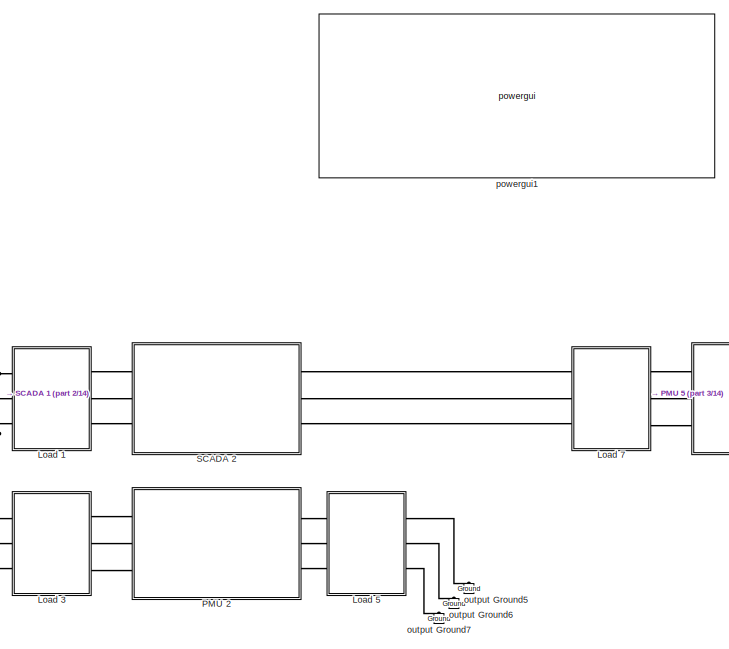
[diagram: root canvas - part 1/14, left side, full height]
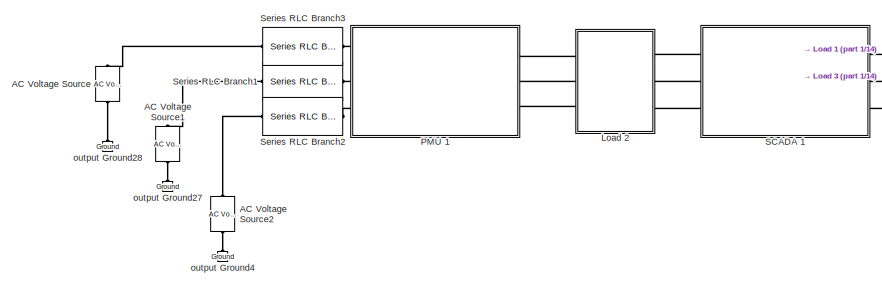
[diagram: root canvas - part 2/14, bottom left region]
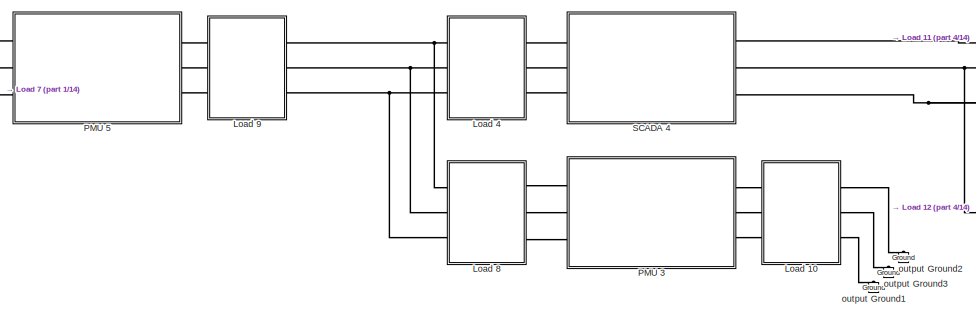
[diagram: root canvas - part 3/14, bottom left region]
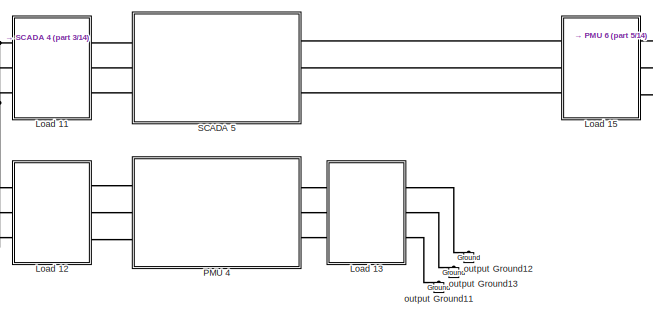
[diagram: root canvas - part 4/14, bottom left region]
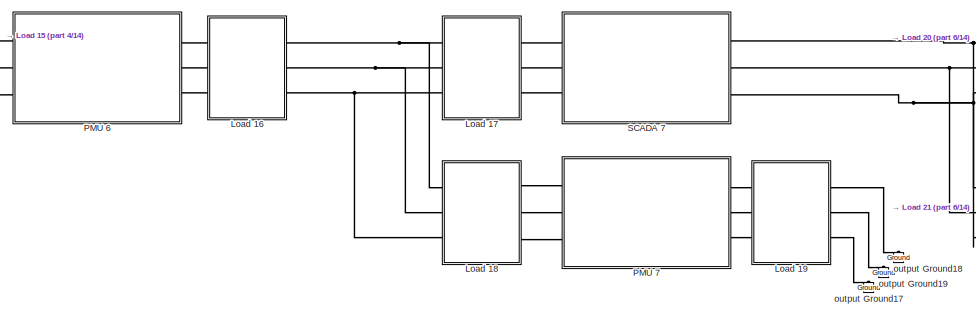
[diagram: root canvas - part 5/14, bottom left region]
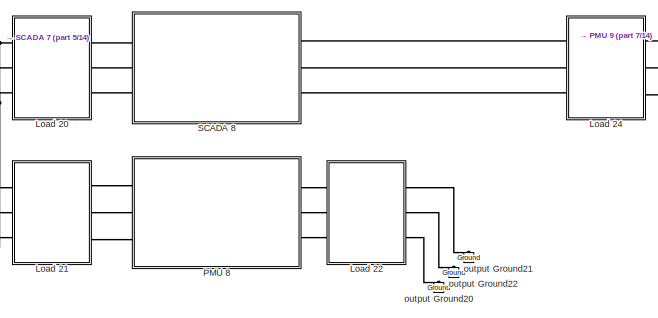
[diagram: root canvas - part 6/14, bottom center region]
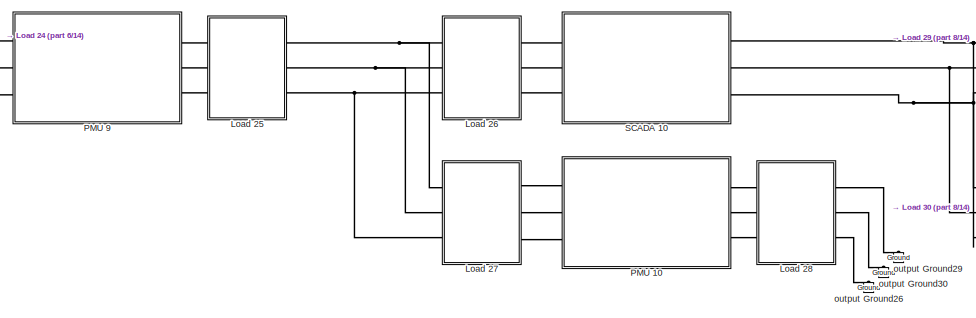
[diagram: root canvas - part 7/14, bottom center region]
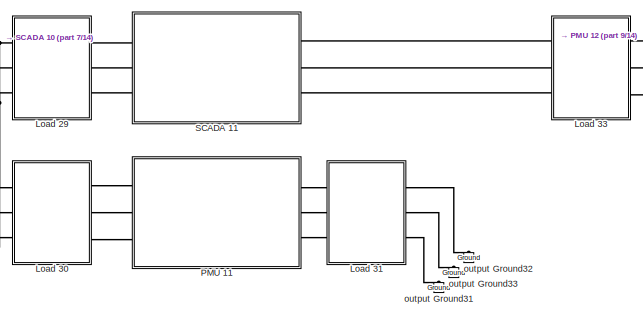
[diagram: root canvas - part 8/14, bottom center region]
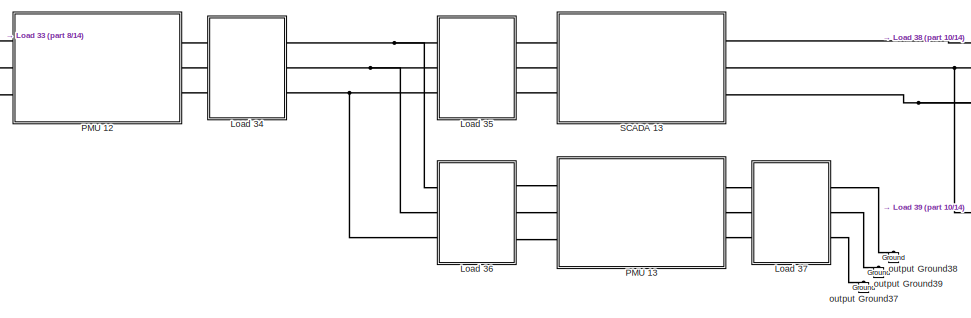
[diagram: root canvas - part 9/14, bottom center region]
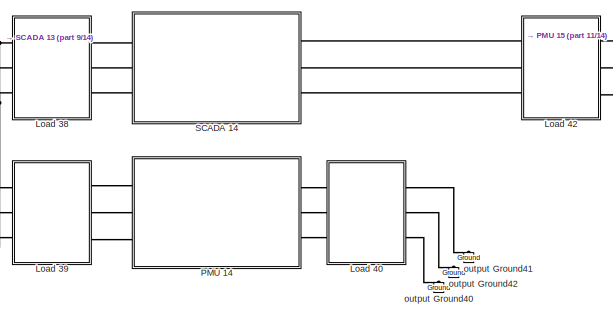
[diagram: root canvas - part 10/14, bottom center region]
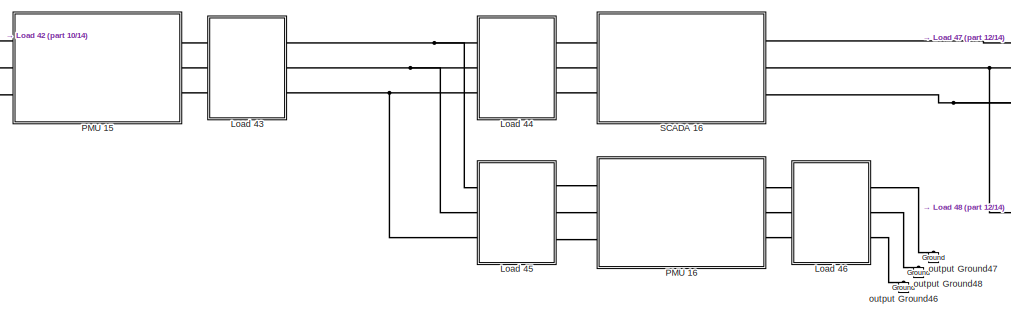
[diagram: root canvas - part 11/14, bottom right region]
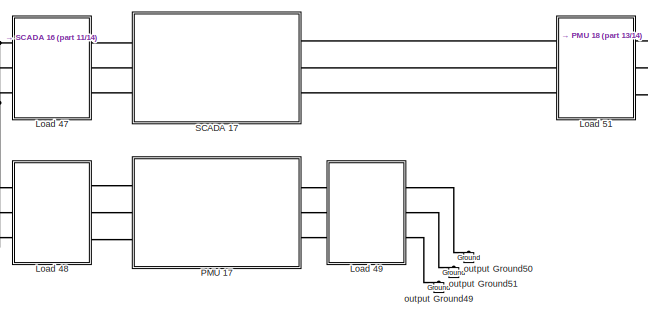
[diagram: root canvas - part 12/14, bottom right region]
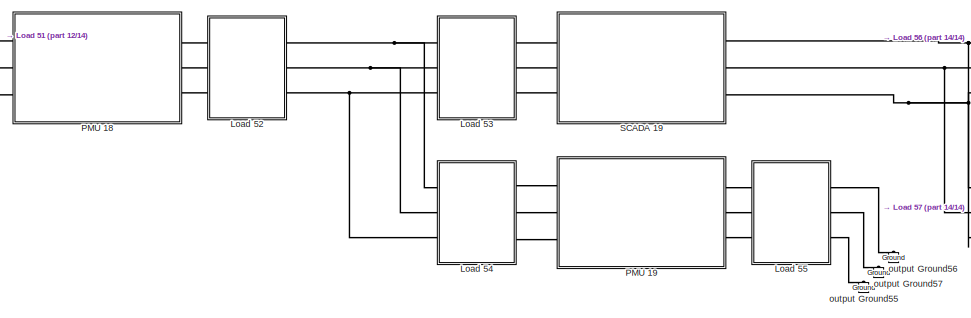
[diagram: root canvas - part 13/14, bottom right region]
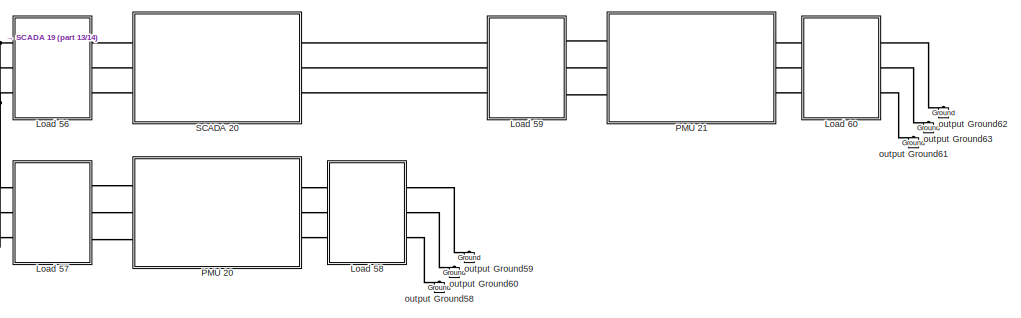
[diagram: root canvas - part 14/14, bottom right region]
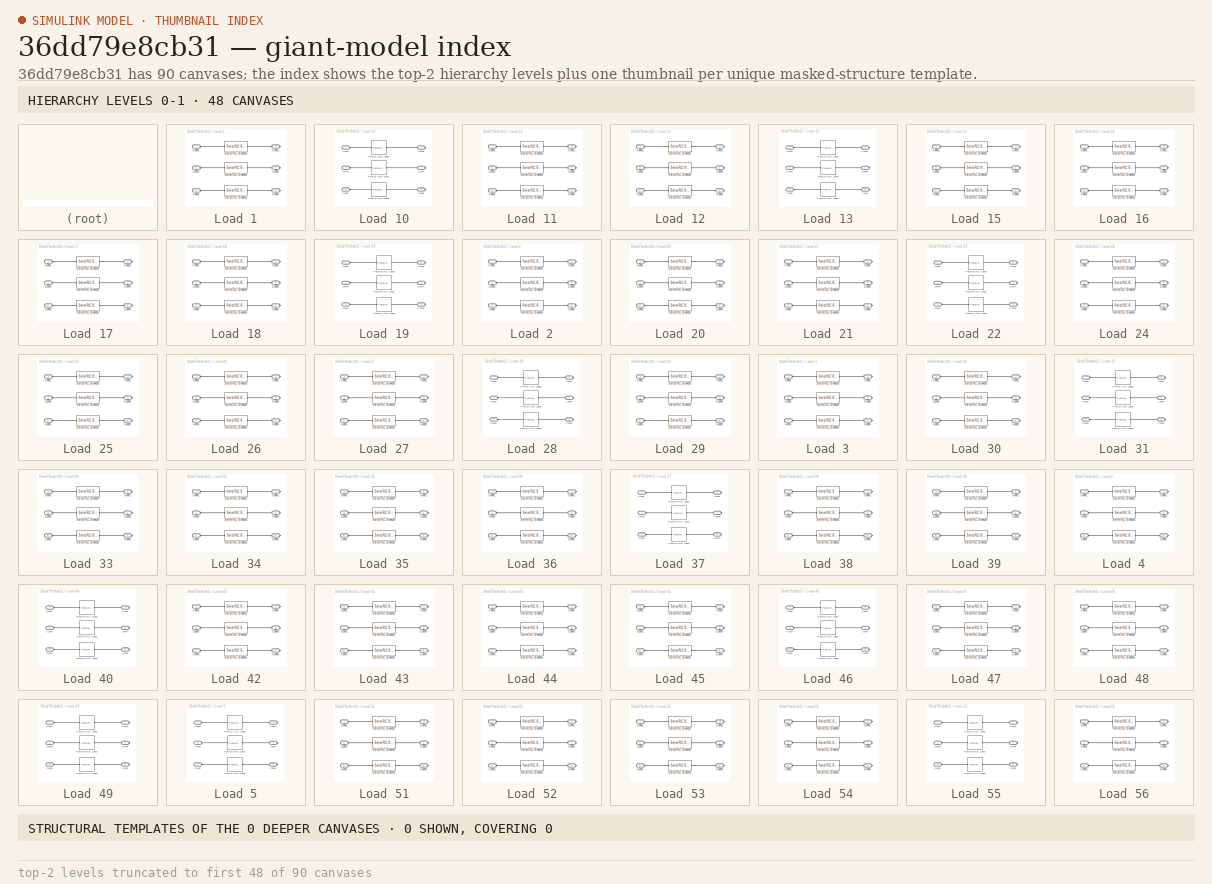
[diagram: thumbnail index - top-2 hierarchy levels (90 canvases (first 48 of 90 shown)) + 0 structural-template representatives of the remaining 0 canvases]
MODEL slx_36dd79e8cb31
KIND model
CONFIG AbsTol = auto
CONFIG EnableMultiTasking = off
CONFIG FixedStep = auto
CONFIG MaxStep = auto
CONFIG MinStep = auto
CONFIG RelTol = 1e-3
CONFIG SampleTimeConstraint = Unconstrained
CONFIG Solver = VariableStepAuto
CONFIG SolverName = VariableStepAuto
CONFIG StartTime = 0.0
CONFIG StopTime = sim_t
BLOCK [Reference] AC Voltage Source  REF=powerlib/Electrical
Sources/AC Voltage Source
  Ports = [0, 0, 0, 0, 0, 1, 1]
  SourceBlock = powerlib/Electrical\nSources/AC Voltage Source
  SourceProductBaseCode = PS
  SourceProductName = Simscape Power Systems
  SourceType = AC Voltage Source
BLOCK [Reference] AC Voltage Source1  REF=powerlib/Electrical
Sources/AC Voltage Source
  Ports = [0, 0, 0, 0, 0, 1, 1]
  SourceBlock = powerlib/Electrical\nSources/AC Voltage Source
  SourceProductBaseCode = PS
  SourceProductName = Simscape Power Systems
  SourceType = AC Voltage Source
BLOCK [Reference] AC Voltage Source2  REF=powerlib/Electrical
Sources/AC Voltage Source
  Ports = [0, 0, 0, 0, 0, 1, 1]
  SourceBlock = powerlib/Electrical\nSources/AC Voltage Source
  SourceProductBaseCode = PS
  SourceProductName = Simscape Power Systems
  SourceType = AC Voltage Source
BLOCK [SubSystem] Load 1
  Ports = [0, 0, 0, 0, 0, 3, 3]
  RequestExecContextInheritance = off
BLOCK [PMIOPort] Load 1/Conn1
  Side = Left
BLOCK [PMIOPort] Load 1/Conn2
  Port = 2
  Side = Right
BLOCK [PMIOPort] Load 1/Conn3
  Port = 3
  Side = Left
BLOCK [PMIOPort] Load 1/Conn4
  Port = 4
  Side = Right
BLOCK [PMIOPort] Load 1/Conn5
  Port = 5
  Side = Left
BLOCK [PMIOPort] Load 1/Conn6
  Port = 6
  Side = Right
BLOCK [Reference] Load 1/Series RLC Branch3  REF=powerlib/Elements/Series RLC Branch
  Ports = [0, 0, 0, 0, 0, 1, 1]
  SourceBlock = powerlib/Elements/Series RLC Branch
  SourceProductBaseCode = PS
  SourceProductName = Simscape Power Systems
  SourceType = Series RLC Branch
BLOCK [Reference] Load 1/Series RLC Branch4  REF=powerlib/Elements/Series RLC Branch
  Ports = [0, 0, 0, 0, 0, 1, 1]
  SourceBlock = powerlib/Elements/Series RLC Branch
  SourceProductBaseCode = PS
  SourceProductName = Simscape Power Systems
  SourceType = Series RLC Branch
BLOCK [Reference] Load 1/Series RLC Branch5  REF=powerlib/Elements/Series RLC Branch
  Ports = [0, 0, 0, 0, 0, 1, 1]
  SourceBlock = powerlib/Elements/Series RLC Branch
  SourceProductBaseCode = PS
  SourceProductName = Simscape Power Systems
  SourceType = Series RLC Branch
BLOCK [SubSystem] Load 10
  Ports = [0, 0, 0, 0, 0, 3, 3]
  RequestExecContextInheritance = off
BLOCK [PMIOPort] Load 10/Conn1
  Side = Left
BLOCK [PMIOPort] Load 10/Conn2
  Port = 2
  Side = Right
BLOCK [PMIOPort] Load 10/Conn3
  Port = 3
  Side = Left
BLOCK [PMIOPort] Load 10/Conn4
  Port = 4
  Side = Right
BLOCK [PMIOPort] Load 10/Conn5
  Port = 5
  Side = Left
BLOCK [PMIOPort] Load 10/Conn6
  Port = 6
  Side = Right
BLOCK [Reference] Load 10/Parallel RLC Load1  REF=powerlib/Elements/Parallel RLC Load
  AttributesFormatString = \n
  Ports = [0, 0, 0, 0, 0, 1, 1]
  SourceBlock = powerlib/Elements/Parallel RLC Load
  SourceProductBaseCode = PS
  SourceProductName = Simscape Power Systems
  SourceType = Parallel RLC Load
BLOCK [Reference] Load 10/Parallel RLC Load2  REF=powerlib/Elements/Parallel RLC Load
  AttributesFormatString = \n
  Ports = [0, 0, 0, 0, 0, 1, 1]
  SourceBlock = powerlib/Elements/Parallel RLC Load
  SourceProductBaseCode = PS
  SourceProductName = Simscape Power Systems
  SourceType = Parallel RLC Load
BLOCK [Reference] Load 10/Parallel RLC Load3  REF=powerlib/Elements/Parallel RLC Load
  AttributesFormatString = \n
  Ports = [0, 0, 0, 0, 0, 1, 1]
  SourceBlock = powerlib/Elements/Parallel RLC Load
  SourceProductBaseCode = PS
  SourceProductName = Simscape Power Systems
  SourceType = Parallel RLC Load
BLOCK [SubSystem] Load 11
  Ports = [0, 0, 0, 0, 0, 3, 3]
  RequestExecContextInheritance = off
BLOCK [PMIOPort] Load 11/Conn1
  Side = Left
BLOCK [PMIOPort] Load 11/Conn2
  Port = 2
  Side = Right
BLOCK [PMIOPort] Load 11/Conn3
  Port = 3
  Side = Left
BLOCK [PMIOPort] Load 11/Conn4
  Port = 4
  Side = Right
BLOCK [PMIOPort] Load 11/Conn5
  Port = 5
  Side = Left
BLOCK [PMIOPort] Load 11/Conn6
  Port = 6
  Side = Right
BLOCK [Reference] Load 11/Series RLC Branch3  REF=powerlib/Elements/Series RLC Branch
  Ports = [0, 0, 0, 0, 0, 1, 1]
  SourceBlock = powerlib/Elements/Series RLC Branch
  SourceProductBaseCode = PS
  SourceProductName = Simscape Power Systems
  SourceType = Series RLC Branch
BLOCK [Reference] Load 11/Series RLC Branch4  REF=powerlib/Elements/Series RLC Branch
  Ports = [0, 0, 0, 0, 0, 1, 1]
  SourceBlock = powerlib/Elements/Series RLC Branch
  SourceProductBaseCode = PS
  SourceProductName = Simscape Power Systems
  SourceType = Series RLC Branch
BLOCK [Reference] Load 11/Series RLC Branch5  REF=powerlib/Elements/Series RLC Branch
  Ports = [0, 0, 0, 0, 0, 1, 1]
  SourceBlock = powerlib/Elements/Series RLC Branch
  SourceProductBaseCode = PS
  SourceProductName = Simscape Power Systems
  SourceType = Series RLC Branch
BLOCK [SubSystem] Load 12
  Ports = [0, 0, 0, 0, 0, 3, 3]
  RequestExecContextInheritance = off
BLOCK [PMIOPort] Load 12/Conn1
  Side = Left
BLOCK [PMIOPort] Load 12/Conn2
  Port = 2
  Side = Right
BLOCK [PMIOPort] Load 12/Conn3
  Port = 3
  Side = Left
BLOCK [PMIOPort] Load 12/Conn4
  Port = 4
  Side = Right
BLOCK [PMIOPort] Load 12/Conn5
  Port = 5
  Side = Left
BLOCK [PMIOPort] Load 12/Conn6
  Port = 6
  Side = Right
BLOCK [Reference] Load 12/Series RLC Branch3  REF=powerlib/Elements/Series RLC Branch
  Ports = [0, 0, 0, 0, 0, 1, 1]
  SourceBlock = powerlib/Elements/Series RLC Branch
  SourceProductBaseCode = PS
  SourceProductName = Simscape Power Systems
  SourceType = Series RLC Branch
BLOCK [Reference] Load 12/Series RLC Branch4  REF=powerlib/Elements/Series RLC Branch
  Ports = [0, 0, 0, 0, 0, 1, 1]
  SourceBlock = powerlib/Elements/Series RLC Branch
  SourceProductBaseCode = PS
  SourceProductName = Simscape Power Systems
  SourceType = Series RLC Branch
BLOCK [Reference] Load 12/Series RLC Branch5  REF=powerlib/Elements/Series RLC Branch
  Ports = [0, 0, 0, 0, 0, 1, 1]
  SourceBlock = powerlib/Elements/Series RLC Branch
  SourceProductBaseCode = PS
  SourceProductName = Simscape Power Systems
  SourceType = Series RLC Branch
BLOCK [SubSystem] Load 13
  Ports = [0, 0, 0, 0, 0, 3, 3]
  RequestExecContextInheritance = off
BLOCK [PMIOPort] Load 13/Conn1
  Side = Left
BLOCK [PMIOPort] Load 13/Conn2
  Port = 2
  Side = Right
BLOCK [PMIOPort] Load 13/Conn3
  Port = 3
  Side = Left
BLOCK [PMIOPort] Load 13/Conn4
  Port = 4
  Side = Right
BLOCK [PMIOPort] Load 13/Conn5
  Port = 5
  Side = Left
BLOCK [PMIOPort] Load 13/Conn6
  Port = 6
  Side = Right
BLOCK [Reference] Load 13/Parallel RLC Load1  REF=powerlib/Elements/Parallel RLC Load
  AttributesFormatString = \n
  Ports = [0, 0, 0, 0, 0, 1, 1]
  SourceBlock = powerlib/Elements/Parallel RLC Load
  SourceProductBaseCode = PS
  SourceProductName = Simscape Power Systems
  SourceType = Parallel RLC Load
BLOCK [Reference] Load 13/Parallel RLC Load2  REF=powerlib/Elements/Parallel RLC Load
  AttributesFormatString = \n
  Ports = [0, 0, 0, 0, 0, 1, 1]
  SourceBlock = powerlib/Elements/Parallel RLC Load
  SourceProductBaseCode = PS
  SourceProductName = Simscape Power Systems
  SourceType = Parallel RLC Load
BLOCK [Reference] Load 13/Parallel RLC Load3  REF=powerlib/Elements/Parallel RLC Load
  AttributesFormatString = \n
  Ports = [0, 0, 0, 0, 0, 1, 1]
  SourceBlock = powerlib/Elements/Parallel RLC Load
  SourceProductBaseCode = PS
  SourceProductName = Simscape Power Systems
  SourceType = Parallel RLC Load
BLOCK [SubSystem] Load 15
  Ports = [0, 0, 0, 0, 0, 3, 3]
  RequestExecContextInheritance = off
BLOCK [PMIOPort] Load 15/Conn1
  Side = Left
BLOCK [PMIOPort] Load 15/Conn2
  Port = 2
  Side = Right
BLOCK [PMIOPort] Load 15/Conn3
  Port = 3
  Side = Left
BLOCK [PMIOPort] Load 15/Conn4
  Port = 4
  Side = Right
BLOCK [PMIOPort] Load 15/Conn5
  Port = 5
  Side = Left
BLOCK [PMIOPort] Load 15/Conn6
  Port = 6
  Side = Right
BLOCK [Reference] Load 15/Series RLC Branch3  REF=powerlib/Elements/Series RLC Branch
  Ports = [0, 0, 0, 0, 0, 1, 1]
  SourceBlock = powerlib/Elements/Series RLC Branch
  SourceProductBaseCode = PS
  SourceProductName = Simscape Power Systems
  SourceType = Series RLC Branch
BLOCK [Reference] Load 15/Series RLC Branch4  REF=powerlib/Elements/Series RLC Branch
  Ports = [0, 0, 0, 0, 0, 1, 1]
  SourceBlock = powerlib/Elements/Series RLC Branch
  SourceProductBaseCode = PS
  SourceProductName = Simscape Power Systems
  SourceType = Series RLC Branch
BLOCK [Reference] Load 15/Series RLC Branch5  REF=powerlib/Elements/Series RLC Branch
  Ports = [0, 0, 0, 0, 0, 1, 1]
  SourceBlock = powerlib/Elements/Series RLC Branch
  SourceProductBaseCode = PS
  SourceProductName = Simscape Power Systems
  SourceType = Series RLC Branch
BLOCK [SubSystem] Load 16
  Ports = [0, 0, 0, 0, 0, 3, 3]
  RequestExecContextInheritance = off
BLOCK [PMIOPort] Load 16/Conn1
  Side = Left
BLOCK [PMIOPort] Load 16/Conn2
  Port = 2
  Side = Right
BLOCK [PMIOPort] Load 16/Conn3
  Port = 3
  Side = Left
BLOCK [PMIOPort] Load 16/Conn4
  Port = 4
  Side = Right
BLOCK [PMIOPort] Load 16/Conn5
  Port = 5
  Side = Left
BLOCK [PMIOPort] Load 16/Conn6
  Port = 6
  Side = Right
BLOCK [Reference] Load 16/Series RLC Branch3  REF=powerlib/Elements/Series RLC Branch
  Ports = [0, 0, 0, 0, 0, 1, 1]
  SourceBlock = powerlib/Elements/Series RLC Branch
  SourceProductBaseCode = PS
  SourceProductName = Simscape Power Systems
  SourceType = Series RLC Branch
BLOCK [Reference] Load 16/Series RLC Branch4  REF=powerlib/Elements/Series RLC Branch
  Ports = [0, 0, 0, 0, 0, 1, 1]
  SourceBlock = powerlib/Elements/Series RLC Branch
  SourceProductBaseCode = PS
  SourceProductName = Simscape Power Systems
  SourceType = Series RLC Branch
BLOCK [Reference] Load 16/Series RLC Branch5  REF=powerlib/Elements/Series RLC Branch
  Ports = [0, 0, 0, 0, 0, 1, 1]
  SourceBlock = powerlib/Elements/Series RLC Branch
  SourceProductBaseCode = PS
  SourceProductName = Simscape Power Systems
  SourceType = Series RLC Branch
BLOCK [SubSystem] Load 17
  Ports = [0, 0, 0, 0, 0, 3, 3]
  RequestExecContextInheritance = off
BLOCK [PMIOPort] Load 17/Conn1
  Side = Left
BLOCK [PMIOPort] Load 17/Conn2
  Port = 2
  Side = Right
BLOCK [PMIOPort] Load 17/Conn3
  Port = 3
  Side = Left
BLOCK [PMIOPort] Load 17/Conn4
  Port = 4
  Side = Right
BLOCK [PMIOPort] Load 17/Conn5
  Port = 5
  Side = Left
BLOCK [PMIOPort] Load 17/Conn6
  Port = 6
  Side = Right
BLOCK [Reference] Load 17/Series RLC Branch3  REF=powerlib/Elements/Series RLC Branch
  Ports = [0, 0, 0, 0, 0, 1, 1]
  SourceBlock = powerlib/Elements/Series RLC Branch
  SourceProductBaseCode = PS
  SourceProductName = Simscape Power Systems
  SourceType = Series RLC Branch
BLOCK [Reference] Load 17/Series RLC Branch4  REF=powerlib/Elements/Series RLC Branch
  Ports = [0, 0, 0, 0, 0, 1, 1]
  SourceBlock = powerlib/Elements/Series RLC Branch
  SourceProductBaseCode = PS
  SourceProductName = Simscape Power Systems
  SourceType = Series RLC Branch
BLOCK [Reference] Load 17/Series RLC Branch5  REF=powerlib/Elements/Series RLC Branch
  Ports = [0, 0, 0, 0, 0, 1, 1]
  SourceBlock = powerlib/Elements/Series RLC Branch
  SourceProductBaseCode = PS
  SourceProductName = Simscape Power Systems
  SourceType = Series RLC Branch
BLOCK [SubSystem] Load 18
  Ports = [0, 0, 0, 0, 0, 3, 3]
  RequestExecContextInheritance = off
BLOCK [PMIOPort] Load 18/Conn1
  Side = Left
BLOCK [PMIOPort] Load 18/Conn2
  Port = 2
  Side = Right
BLOCK [PMIOPort] Load 18/Conn3
  Port = 3
  Side = Left
BLOCK [PMIOPort] Load 18/Conn4
  Port = 4
  Side = Right
BLOCK [PMIOPort] Load 18/Conn5
  Port = 5
  Side = Left
BLOCK [PMIOPort] Load 18/Conn6
  Port = 6
  Side = Right
BLOCK [Reference] Load 18/Series RLC Branch3  REF=powerlib/Elements/Series RLC Branch
  Ports = [0, 0, 0, 0, 0, 1, 1]
  SourceBlock = powerlib/Elements/Series RLC Branch
  SourceProductBaseCode = PS
  SourceProductName = Simscape Power Systems
  SourceType = Series RLC Branch
BLOCK [Reference] Load 18/Series RLC Branch4  REF=powerlib/Elements/Series RLC Branch
  Ports = [0, 0, 0, 0, 0, 1, 1]
  SourceBlock = powerlib/Elements/Series RLC Branch
  SourceProductBaseCode = PS
  SourceProductName = Simscape Power Systems
  SourceType = Series RLC Branch
BLOCK [Reference] Load 18/Series RLC Branch5  REF=powerlib/Elements/Series RLC Branch
  Ports = [0, 0, 0, 0, 0, 1, 1]
  SourceBlock = powerlib/Elements/Series RLC Branch
  SourceProductBaseCode = PS
  SourceProductName = Simscape Power Systems
  SourceType = Series RLC Branch
BLOCK [SubSystem] Load 19
  Ports = [0, 0, 0, 0, 0, 3, 3]
  RequestExecContextInheritance = off
BLOCK [PMIOPort] Load 19/Conn1
  Side = Left
BLOCK [PMIOPort] Load 19/Conn2
  Port = 2
  Side = Right
BLOCK [PMIOPort] Load 19/Conn3
  Port = 3
  Side = Left
BLOCK [PMIOPort] Load 19/Conn4
  Port = 4
  Side = Right
BLOCK [PMIOPort] Load 19/Conn5
  Port = 5
  Side = Left
BLOCK [PMIOPort] Load 19/Conn6
  Port = 6
  Side = Right
BLOCK [Reference] Load 19/Parallel RLC Load1  REF=powerlib/Elements/Parallel RLC Load
  AttributesFormatString = \n
  Ports = [0, 0, 0, 0, 0, 1, 1]
  SourceBlock = powerlib/Elements/Parallel RLC Load
  SourceProductBaseCode = PS
  SourceProductName = Simscape Power Systems
  SourceType = Parallel RLC Load
BLOCK [Reference] Load 19/Parallel RLC Load2  REF=powerlib/Elements/Parallel RLC Load
  AttributesFormatString = \n
  Ports = [0, 0, 0, 0, 0, 1, 1]
  SourceBlock = powerlib/Elements/Parallel RLC Load
  SourceProductBaseCode = PS
  SourceProductName = Simscape Power Systems
  SourceType = Parallel RLC Load
BLOCK [Reference] Load 19/Parallel RLC Load3  REF=powerlib/Elements/Parallel RLC Load
  AttributesFormatString = \n
  Ports = [0, 0, 0, 0, 0, 1, 1]
  SourceBlock = powerlib/Elements/Parallel RLC Load
  SourceProductBaseCode = PS
  SourceProductName = Simscape Power Systems
  SourceType = Parallel RLC Load
BLOCK [SubSystem] Load 2
  Ports = [0, 0, 0, 0, 0, 3, 3]
  RequestExecContextInheritance = off
BLOCK [PMIOPort] Load 2/Conn1
  Side = Left
BLOCK [PMIOPort] Load 2/Conn2
  Port = 2
  Side = Right
BLOCK [PMIOPort] Load 2/Conn3
  Port = 3
  Side = Left
BLOCK [PMIOPort] Load 2/Conn4
  Port = 4
  Side = Right
BLOCK [PMIOPort] Load 2/Conn5
  Port = 5
  Side = Left
BLOCK [PMIOPort] Load 2/Conn6
  Port = 6
  Side = Right
BLOCK [Reference] Load 2/Series RLC Branch3  REF=powerlib/Elements/Series RLC Branch
  Ports = [0, 0, 0, 0, 0, 1, 1]
  SourceBlock = powerlib/Elements/Series RLC Branch
  SourceProductBaseCode = PS
  SourceProductName = Simscape Power Systems
  SourceType = Series RLC Branch
BLOCK [Reference] Load 2/Series RLC Branch4  REF=powerlib/Elements/Series RLC Branch
  Ports = [0, 0, 0, 0, 0, 1, 1]
  SourceBlock = powerlib/Elements/Series RLC Branch
  SourceProductBaseCode = PS
  SourceProductName = Simscape Power Systems
  SourceType = Series RLC Branch
BLOCK [Reference] Load 2/Series RLC Branch5  REF=powerlib/Elements/Series RLC Branch
  Ports = [0, 0, 0, 0, 0, 1, 1]
  SourceBlock = powerlib/Elements/Series RLC Branch
  SourceProductBaseCode = PS
  SourceProductName = Simscape Power Systems
  SourceType = Series RLC Branch
BLOCK [SubSystem] Load 20
  Ports = [0, 0, 0, 0, 0, 3, 3]
  RequestExecContextInheritance = off
BLOCK [PMIOPort] Load 20/Conn1
  Side = Left
BLOCK [PMIOPort] Load 20/Conn2
  Port = 2
  Side = Right
BLOCK [PMIOPort] Load 20/Conn3
  Port = 3
  Side = Left
BLOCK [PMIOPort] Load 20/Conn4
  Port = 4
  Side = Right
BLOCK [PMIOPort] Load 20/Conn5
  Port = 5
  Side = Left
BLOCK [PMIOPort] Load 20/Conn6
  Port = 6
  Side = Right
BLOCK [Reference] Load 20/Series RLC Branch3  REF=powerlib/Elements/Series RLC Branch
  Ports = [0, 0, 0, 0, 0, 1, 1]
  SourceBlock = powerlib/Elements/Series RLC Branch
  SourceProductBaseCode = PS
  SourceProductName = Simscape Power Systems
  SourceType = Series RLC Branch
BLOCK [Reference] Load 20/Series RLC Branch4  REF=powerlib/Elements/Series RLC Branch
  Ports = [0, 0, 0, 0, 0, 1, 1]
  SourceBlock = powerlib/Elements/Series RLC Branch
  SourceProductBaseCode = PS
  SourceProductName = Simscape Power Systems
  SourceType = Series RLC Branch
BLOCK [Reference] Load 20/Series RLC Branch5  REF=powerlib/Elements/Series RLC Branch
  Ports = [0, 0, 0, 0, 0, 1, 1]
  SourceBlock = powerlib/Elements/Series RLC Branch
  SourceProductBaseCode = PS
  SourceProductName = Simscape Power Systems
  SourceType = Series RLC Branch
BLOCK [SubSystem] Load 21
  Ports = [0, 0, 0, 0, 0, 3, 3]
  RequestExecContextInheritance = off
BLOCK [PMIOPort] Load 21/Conn1
  Side = Left
BLOCK [PMIOPort] Load 21/Conn2
  Port = 2
  Side = Right
BLOCK [PMIOPort] Load 21/Conn3
  Port = 3
  Side = Left
BLOCK [PMIOPort] Load 21/Conn4
  Port = 4
  Side = Right
BLOCK [PMIOPort] Load 21/Conn5
  Port = 5
  Side = Left
BLOCK [PMIOPort] Load 21/Conn6
  Port = 6
  Side = Right
BLOCK [Reference] Load 21/Series RLC Branch3  REF=powerlib/Elements/Series RLC Branch
  Ports = [0, 0, 0, 0, 0, 1, 1]
  SourceBlock = powerlib/Elements/Series RLC Branch
  SourceProductBaseCode = PS
  SourceProductName = Simscape Power Systems
  SourceType = Series RLC Branch
BLOCK [Reference] Load 21/Series RLC Branch4  REF=powerlib/Elements/Series RLC Branch
  Ports = [0, 0, 0, 0, 0, 1, 1]
  SourceBlock = powerlib/Elements/Series RLC Branch
  SourceProductBaseCode = PS
  SourceProductName = Simscape Power Systems
  SourceType = Series RLC Branch
BLOCK [Reference] Load 21/Series RLC Branch5  REF=powerlib/Elements/Series RLC Branch
  Ports = [0, 0, 0, 0, 0, 1, 1]
  SourceBlock = powerlib/Elements/Series RLC Branch
  SourceProductBaseCode = PS
  SourceProductName = Simscape Power Systems
  SourceType = Series RLC Branch
BLOCK [SubSystem] Load 22
  Ports = [0, 0, 0, 0, 0, 3, 3]
  RequestExecContextInheritance = off
BLOCK [PMIOPort] Load 22/Conn1
  Side = Left
BLOCK [PMIOPort] Load 22/Conn2
  Port = 2
  Side = Right
BLOCK [PMIOPort] Load 22/Conn3
  Port = 3
  Side = Left
BLOCK [PMIOPort] Load 22/Conn4
  Port = 4
  Side = Right
BLOCK [PMIOPort] Load 22/Conn5
  Port = 5
  Side = Left
BLOCK [PMIOPort] Load 22/Conn6
  Port = 6
  Side = Right
BLOCK [Reference] Load 22/Parallel RLC Load1  REF=powerlib/Elements/Parallel RLC Load
  AttributesFormatString = \n
  Ports = [0, 0, 0, 0, 0, 1, 1]
  SourceBlock = powerlib/Elements/Parallel RLC Load
  SourceProductBaseCode = PS
  SourceProductName = Simscape Power Systems
  SourceType = Parallel RLC Load
BLOCK [Reference] Load 22/Parallel RLC Load2  REF=powerlib/Elements/Parallel RLC Load
  AttributesFormatString = \n
  Ports = [0, 0, 0, 0, 0, 1, 1]
  SourceBlock = powerlib/Elements/Parallel RLC Load
  SourceProductBaseCode = PS
  SourceProductName = Simscape Power Systems
  SourceType = Parallel RLC Load
BLOCK [Reference] Load 22/Parallel RLC Load4  REF=powerlib/Elements/Parallel RLC Load
  AttributesFormatString = \n
  Ports = [0, 0, 0, 0, 0, 1, 1]
  SourceBlock = powerlib/Elements/Parallel RLC Load
  SourceProductBaseCode = PS
  SourceProductName = Simscape Power Systems
  SourceType = Parallel RLC Load
BLOCK [SubSystem] Load 24
  Ports = [0, 0, 0, 0, 0, 3, 3]
  RequestExecContextInheritance = off
BLOCK [PMIOPort] Load 24/Conn1
  Side = Left
BLOCK [PMIOPort] Load 24/Conn2
  Port = 2
  Side = Right
BLOCK [PMIOPort] Load 24/Conn3
  Port = 3
  Side = Left
BLOCK [PMIOPort] Load 24/Conn4
  Port = 4
  Side = Right
BLOCK [PMIOPort] Load 24/Conn5
  Port = 5
  Side = Left
BLOCK [PMIOPort] Load 24/Conn6
  Port = 6
  Side = Right
BLOCK [Reference] Load 24/Series RLC Branch3  REF=powerlib/Elements/Series RLC Branch
  Ports = [0, 0, 0, 0, 0, 1, 1]
  SourceBlock = powerlib/Elements/Series RLC Branch
  SourceProductBaseCode = PS
  SourceProductName = Simscape Power Systems
  SourceType = Series RLC Branch
BLOCK [Reference] Load 24/Series RLC Branch4  REF=powerlib/Elements/Series RLC Branch
  Ports = [0, 0, 0, 0, 0, 1, 1]
  SourceBlock = powerlib/Elements/Series RLC Branch
  SourceProductBaseCode = PS
  SourceProductName = Simscape Power Systems
  SourceType = Series RLC Branch
BLOCK [Reference] Load 24/Series RLC Branch5  REF=powerlib/Elements/Series RLC Branch
  Ports = [0, 0, 0, 0, 0, 1, 1]
  SourceBlock = powerlib/Elements/Series RLC Branch
  SourceProductBaseCode = PS
  SourceProductName = Simscape Power Systems
  SourceType = Series RLC Branch
BLOCK [SubSystem] Load 25
  Ports = [0, 0, 0, 0, 0, 3, 3]
  RequestExecContextInheritance = off
BLOCK [PMIOPort] Load 25/Conn1
  Side = Left
BLOCK [PMIOPort] Load 25/Conn2
  Port = 2
  Side = Right
BLOCK [PMIOPort] Load 25/Conn3
  Port = 3
  Side = Left
BLOCK [PMIOPort] Load 25/Conn4
  Port = 4
  Side = Right
BLOCK [PMIOPort] Load 25/Conn5
  Port = 5
  Side = Left
BLOCK [PMIOPort] Load 25/Conn6
  Port = 6
  Side = Right
BLOCK [Reference] Load 25/Series RLC Branch3  REF=powerlib/Elements/Series RLC Branch
  Ports = [0, 0, 0, 0, 0, 1, 1]
  SourceBlock = powerlib/Elements/Series RLC Branch
  SourceProductBaseCode = PS
  SourceProductName = Simscape Power Systems
  SourceType = Series RLC Branch
BLOCK [Reference] Load 25/Series RLC Branch4  REF=powerlib/Elements/Series RLC Branch
  Ports = [0, 0, 0, 0, 0, 1, 1]
  SourceBlock = powerlib/Elements/Series RLC Branch
  SourceProductBaseCode = PS
  SourceProductName = Simscape Power Systems
  SourceType = Series RLC Branch
BLOCK [Reference] Load 25/Series RLC Branch5  REF=powerlib/Elements/Series RLC Branch
  Ports = [0, 0, 0, 0, 0, 1, 1]
  SourceBlock = powerlib/Elements/Series RLC Branch
  SourceProductBaseCode = PS
  SourceProductName = Simscape Power Systems
  SourceType = Series RLC Branch
BLOCK [SubSystem] Load 26
  Ports = [0, 0, 0, 0, 0, 3, 3]
  RequestExecContextInheritance = off
BLOCK [PMIOPort] Load 26/Conn1
  Side = Left
BLOCK [PMIOPort] Load 26/Conn2
  Port = 2
  Side = Right
BLOCK [PMIOPort] Load 26/Conn3
  Port = 3
  Side = Left
BLOCK [PMIOPort] Load 26/Conn4
  Port = 4
  Side = Right
BLOCK [PMIOPort] Load 26/Conn5
  Port = 5
  Side = Left
BLOCK [PMIOPort] Load 26/Conn6
  Port = 6
  Side = Right
BLOCK [Reference] Load 26/Series RLC Branch3  REF=powerlib/Elements/Series RLC Branch
  Ports = [0, 0, 0, 0, 0, 1, 1]
  SourceBlock = powerlib/Elements/Series RLC Branch
  SourceProductBaseCode = PS
  SourceProductName = Simscape Power Systems
  SourceType = Series RLC Branch
BLOCK [Reference] Load 26/Series RLC Branch4  REF=powerlib/Elements/Series RLC Branch
  Ports = [0, 0, 0, 0, 0, 1, 1]
  SourceBlock = powerlib/Elements/Series RLC Branch
  SourceProductBaseCode = PS
  SourceProductName = Simscape Power Systems
  SourceType = Series RLC Branch
BLOCK [Reference] Load 26/Series RLC Branch5  REF=powerlib/Elements/Series RLC Branch
  Ports = [0, 0, 0, 0, 0, 1, 1]
  SourceBlock = powerlib/Elements/Series RLC Branch
  SourceProductBaseCode = PS
  SourceProductName = Simscape Power Systems
  SourceType = Series RLC Branch
BLOCK [SubSystem] Load 27
  Ports = [0, 0, 0, 0, 0, 3, 3]
  RequestExecContextInheritance = off
BLOCK [PMIOPort] Load 27/Conn1
  Side = Left
BLOCK [PMIOPort] Load 27/Conn2
  Port = 2
  Side = Right
BLOCK [PMIOPort] Load 27/Conn3
  Port = 3
  Side = Left
BLOCK [PMIOPort] Load 27/Conn4
  Port = 4
  Side = Right
BLOCK [PMIOPort] Load 27/Conn5
  Port = 5
  Side = Left
BLOCK [PMIOPort] Load 27/Conn6
  Port = 6
  Side = Right
BLOCK [Reference] Load 27/Series RLC Branch3  REF=powerlib/Elements/Series RLC Branch
  Ports = [0, 0, 0, 0, 0, 1, 1]
  SourceBlock = powerlib/Elements/Series RLC Branch
  SourceProductBaseCode = PS
  SourceProductName = Simscape Power Systems
  SourceType = Series RLC Branch
BLOCK [Reference] Load 27/Series RLC Branch4  REF=powerlib/Elements/Series RLC Branch
  Ports = [0, 0, 0, 0, 0, 1, 1]
  SourceBlock = powerlib/Elements/Series RLC Branch
  SourceProductBaseCode = PS
  SourceProductName = Simscape Power Systems
  SourceType = Series RLC Branch
BLOCK [Reference] Load 27/Series RLC Branch5  REF=powerlib/Elements/Series RLC Branch
  Ports = [0, 0, 0, 0, 0, 1, 1]
  SourceBlock = powerlib/Elements/Series RLC Branch
  SourceProductBaseCode = PS
  SourceProductName = Simscape Power Systems
  SourceType = Series RLC Branch
BLOCK [SubSystem] Load 28
  Ports = [0, 0, 0, 0, 0, 3, 3]
  RequestExecContextInheritance = off
BLOCK [PMIOPort] Load 28/Conn1
  Side = Left
BLOCK [PMIOPort] Load 28/Conn2
  Port = 2
  Side = Right
BLOCK [PMIOPort] Load 28/Conn3
  Port = 3
  Side = Left
BLOCK [PMIOPort] Load 28/Conn4
  Port = 4
  Side = Right
BLOCK [PMIOPort] Load 28/Conn5
  Port = 5
  Side = Left
BLOCK [PMIOPort] Load 28/Conn6
  Port = 6
  Side = Right
BLOCK [Reference] Load 28/Parallel RLC Load1  REF=powerlib/Elements/Parallel RLC Load
  AttributesFormatString = \n
  Ports = [0, 0, 0, 0, 0, 1, 1]
  SourceBlock = powerlib/Elements/Parallel RLC Load
  SourceProductBaseCode = PS
  SourceProductName = Simscape Power Systems
  SourceType = Parallel RLC Load
BLOCK [Reference] Load 28/Parallel RLC Load2  REF=powerlib/Elements/Parallel RLC Load
  AttributesFormatString = \n
  Ports = [0, 0, 0, 0, 0, 1, 1]
  SourceBlock = powerlib/Elements/Parallel RLC Load
  SourceProductBaseCode = PS
  SourceProductName = Simscape Power Systems
  SourceType = Parallel RLC Load
BLOCK [Reference] Load 28/Parallel RLC Load3  REF=powerlib/Elements/Parallel RLC Load
  AttributesFormatString = \n
  Ports = [0, 0, 0, 0, 0, 1, 1]
  SourceBlock = powerlib/Elements/Parallel RLC Load
  SourceProductBaseCode = PS
  SourceProductName = Simscape Power Systems
  SourceType = Parallel RLC Load
BLOCK [SubSystem] Load 29
  Ports = [0, 0, 0, 0, 0, 3, 3]
  RequestExecContextInheritance = off
BLOCK [PMIOPort] Load 29/Conn1
  Side = Left
BLOCK [PMIOPort] Load 29/Conn2
  Port = 2
  Side = Right
BLOCK [PMIOPort] Load 29/Conn3
  Port = 3
  Side = Left
BLOCK [PMIOPort] Load 29/Conn4
  Port = 4
  Side = Right
BLOCK [PMIOPort] Load 29/Conn5
  Port = 5
  Side = Left
BLOCK [PMIOPort] Load 29/Conn6
  Port = 6
  Side = Right
BLOCK [Reference] Load 29/Series RLC Branch3  REF=powerlib/Elements/Series RLC Branch
  Ports = [0, 0, 0, 0, 0, 1, 1]
  SourceBlock = powerlib/Elements/Series RLC Branch
  SourceProductBaseCode = PS
  SourceProductName = Simscape Power Systems
  SourceType = Series RLC Branch
BLOCK [Reference] Load 29/Series RLC Branch4  REF=powerlib/Elements/Series RLC Branch
  Ports = [0, 0, 0, 0, 0, 1, 1]
  SourceBlock = powerlib/Elements/Series RLC Branch
  SourceProductBaseCode = PS
  SourceProductName = Simscape Power Systems
  SourceType = Series RLC Branch
BLOCK [Reference] Load 29/Series RLC Branch5  REF=powerlib/Elements/Series RLC Branch
  Ports = [0, 0, 0, 0, 0, 1, 1]
  SourceBlock = powerlib/Elements/Series RLC Branch
  SourceProductBaseCode = PS
  SourceProductName = Simscape Power Systems
  SourceType = Series RLC Branch
BLOCK [SubSystem] Load 3
  Ports = [0, 0, 0, 0, 0, 3, 3]
  RequestExecContextInheritance = off
BLOCK [PMIOPort] Load 3/Conn1
  Side = Left
BLOCK [PMIOPort] Load 3/Conn2
  Port = 2
  Side = Right
BLOCK [PMIOPort] Load 3/Conn3
  Port = 3
  Side = Left
BLOCK [PMIOPort] Load 3/Conn4
  Port = 4
  Side = Right
BLOCK [PMIOPort] Load 3/Conn5
  Port = 5
  Side = Left
BLOCK [PMIOPort] Load 3/Conn6
  Port = 6
  Side = Right
BLOCK [Reference] Load 3/Series RLC Branch3  REF=powerlib/Elements/Series RLC Branch
  Ports = [0, 0, 0, 0, 0, 1, 1]
  SourceBlock = powerlib/Elements/Series RLC Branch
  SourceProductBaseCode = PS
  SourceProductName = Simscape Power Systems
  SourceType = Series RLC Branch
BLOCK [Reference] Load 3/Series RLC Branch4  REF=powerlib/Elements/Series RLC Branch
  Ports = [0, 0, 0, 0, 0, 1, 1]
  SourceBlock = powerlib/Elements/Series RLC Branch
  SourceProductBaseCode = PS
  SourceProductName = Simscape Power Systems
  SourceType = Series RLC Branch
BLOCK [Reference] Load 3/Series RLC Branch5  REF=powerlib/Elements/Series RLC Branch
  Ports = [0, 0, 0, 0, 0, 1, 1]
  SourceBlock = powerlib/Elements/Series RLC Branch
  SourceProductBaseCode = PS
  SourceProductName = Simscape Power Systems
  SourceType = Series RLC Branch
BLOCK [SubSystem] Load 30
  Ports = [0, 0, 0, 0, 0, 3, 3]
  RequestExecContextInheritance = off
BLOCK [PMIOPort] Load 30/Conn1
  Side = Left
BLOCK [PMIOPort] Load 30/Conn2
  Port = 2
  Side = Right
BLOCK [PMIOPort] Load 30/Conn3
  Port = 3
  Side = Left
BLOCK [PMIOPort] Load 30/Conn4
  Port = 4
  Side = Right
BLOCK [PMIOPort] Load 30/Conn5
  Port = 5
  Side = Left
BLOCK [PMIOPort] Load 30/Conn6
  Port = 6
  Side = Right
BLOCK [Reference] Load 30/Series RLC Branch3  REF=powerlib/Elements/Series RLC Branch
  Ports = [0, 0, 0, 0, 0, 1, 1]
  SourceBlock = powerlib/Elements/Series RLC Branch
  SourceProductBaseCode = PS
  SourceProductName = Simscape Power Systems
  SourceType = Series RLC Branch
BLOCK [Reference] Load 30/Series RLC Branch4  REF=powerlib/Elements/Series RLC Branch
  Ports = [0, 0, 0, 0, 0, 1, 1]
  SourceBlock = powerlib/Elements/Series RLC Branch
  SourceProductBaseCode = PS
  SourceProductName = Simscape Power Systems
  SourceType = Series RLC Branch
BLOCK [Reference] Load 30/Series RLC Branch5  REF=powerlib/Elements/Series RLC Branch
  Ports = [0, 0, 0, 0, 0, 1, 1]
  SourceBlock = powerlib/Elements/Series RLC Branch
  SourceProductBaseCode = PS
  SourceProductName = Simscape Power Systems
  SourceType = Series RLC Branch
BLOCK [SubSystem] Load 31
  Ports = [0, 0, 0, 0, 0, 3, 3]
  RequestExecContextInheritance = off
BLOCK [PMIOPort] Load 31/Conn1
  Side = Left
BLOCK [PMIOPort] Load 31/Conn2
  Port = 2
  Side = Right
BLOCK [PMIOPort] Load 31/Conn3
  Port = 3
  Side = Left
BLOCK [PMIOPort] Load 31/Conn4
  Port = 4
  Side = Right
BLOCK [PMIOPort] Load 31/Conn5
  Port = 5
  Side = Left
BLOCK [PMIOPort] Load 31/Conn6
  Port = 6
  Side = Right
BLOCK [Reference] Load 31/Parallel RLC Load1  REF=powerlib/Elements/Parallel RLC Load
  AttributesFormatString = \n
  Ports = [0, 0, 0, 0, 0, 1, 1]
  SourceBlock = powerlib/Elements/Parallel RLC Load
  SourceProductBaseCode = PS
  SourceProductName = Simscape Power Systems
  SourceType = Parallel RLC Load
BLOCK [Reference] Load 31/Parallel RLC Load2  REF=powerlib/Elements/Parallel RLC Load
  AttributesFormatString = \n
  Ports = [0, 0, 0, 0, 0, 1, 1]
  SourceBlock = powerlib/Elements/Parallel RLC Load
  SourceProductBaseCode = PS
  SourceProductName = Simscape Power Systems
  SourceType = Parallel RLC Load
BLOCK [Reference] Load 31/Parallel RLC Load3  REF=powerlib/Elements/Parallel RLC Load
  AttributesFormatString = \n
  Ports = [0, 0, 0, 0, 0, 1, 1]
  SourceBlock = powerlib/Elements/Parallel RLC Load
  SourceProductBaseCode = PS
  SourceProductName = Simscape Power Systems
  SourceType = Parallel RLC Load
BLOCK [SubSystem] Load 33
  Ports = [0, 0, 0, 0, 0, 3, 3]
  RequestExecContextInheritance = off
BLOCK [PMIOPort] Load 33/Conn1
  Side = Left
BLOCK [PMIOPort] Load 33/Conn2
  Port = 2
  Side = Right
BLOCK [PMIOPort] Load 33/Conn3
  Port = 3
  Side = Left
BLOCK [PMIOPort] Load 33/Conn4
  Port = 4
  Side = Right
BLOCK [PMIOPort] Load 33/Conn5
  Port = 5
  Side = Left
BLOCK [PMIOPort] Load 33/Conn6
  Port = 6
  Side = Right
BLOCK [Reference] Load 33/Series RLC Branch3  REF=powerlib/Elements/Series RLC Branch
  Ports = [0, 0, 0, 0, 0, 1, 1]
  SourceBlock = powerlib/Elements/Series RLC Branch
  SourceProductBaseCode = PS
  SourceProductName = Simscape Power Systems
  SourceType = Series RLC Branch
BLOCK [Reference] Load 33/Series RLC Branch4  REF=powerlib/Elements/Series RLC Branch
  Ports = [0, 0, 0, 0, 0, 1, 1]
  SourceBlock = powerlib/Elements/Series RLC Branch
  SourceProductBaseCode = PS
  SourceProductName = Simscape Power Systems
  SourceType = Series RLC Branch
BLOCK [Reference] Load 33/Series RLC Branch5  REF=powerlib/Elements/Series RLC Branch
  Ports = [0, 0, 0, 0, 0, 1, 1]
  SourceBlock = powerlib/Elements/Series RLC Branch
  SourceProductBaseCode = PS
  SourceProductName = Simscape Power Systems
  SourceType = Series RLC Branch
BLOCK [SubSystem] Load 34
  Ports = [0, 0, 0, 0, 0, 3, 3]
  RequestExecContextInheritance = off
BLOCK [PMIOPort] Load 34/Conn1
  Side = Left
BLOCK [PMIOPort] Load 34/Conn2
  Port = 2
  Side = Right
BLOCK [PMIOPort] Load 34/Conn3
  Port = 3
  Side = Left
BLOCK [PMIOPort] Load 34/Conn4
  Port = 4
  Side = Right
BLOCK [PMIOPort] Load 34/Conn5
  Port = 5
  Side = Left
BLOCK [PMIOPort] Load 34/Conn6
  Port = 6
  Side = Right
BLOCK [Reference] Load 34/Series RLC Branch3  REF=powerlib/Elements/Series RLC Branch
  Ports = [0, 0, 0, 0, 0, 1, 1]
  SourceBlock = powerlib/Elements/Series RLC Branch
  SourceProductBaseCode = PS
  SourceProductName = Simscape Power Systems
  SourceType = Series RLC Branch
BLOCK [Reference] Load 34/Series RLC Branch4  REF=powerlib/Elements/Series RLC Branch
  Ports = [0, 0, 0, 0, 0, 1, 1]
  SourceBlock = powerlib/Elements/Series RLC Branch
  SourceProductBaseCode = PS
  SourceProductName = Simscape Power Systems
  SourceType = Series RLC Branch
BLOCK [Reference] Load 34/Series RLC Branch5  REF=powerlib/Elements/Series RLC Branch
  Ports = [0, 0, 0, 0, 0, 1, 1]
  SourceBlock = powerlib/Elements/Series RLC Branch
  SourceProductBaseCode = PS
  SourceProductName = Simscape Power Systems
  SourceType = Series RLC Branch
BLOCK [SubSystem] Load 35
  Ports = [0, 0, 0, 0, 0, 3, 3]
  RequestExecContextInheritance = off
BLOCK [PMIOPort] Load 35/Conn1
  Side = Left
BLOCK [PMIOPort] Load 35/Conn2
  Port = 2
  Side = Right
BLOCK [PMIOPort] Load 35/Conn3
  Port = 3
  Side = Left
BLOCK [PMIOPort] Load 35/Conn4
  Port = 4
  Side = Right
BLOCK [PMIOPort] Load 35/Conn5
  Port = 5
  Side = Left
BLOCK [PMIOPort] Load 35/Conn6
  Port = 6
  Side = Right
BLOCK [Reference] Load 35/Series RLC Branch3  REF=powerlib/Elements/Series RLC Branch
  Ports = [0, 0, 0, 0, 0, 1, 1]
  SourceBlock = powerlib/Elements/Series RLC Branch
  SourceProductBaseCode = PS
  SourceProductName = Simscape Power Systems
  SourceType = Series RLC Branch
BLOCK [Reference] Load 35/Series RLC Branch4  REF=powerlib/Elements/Series RLC Branch
  Ports = [0, 0, 0, 0, 0, 1, 1]
  SourceBlock = powerlib/Elements/Series RLC Branch
  SourceProductBaseCode = PS
  SourceProductName = Simscape Power Systems
  SourceType = Series RLC Branch
BLOCK [Reference] Load 35/Series RLC Branch5  REF=powerlib/Elements/Series RLC Branch
  Ports = [0, 0, 0, 0, 0, 1, 1]
  SourceBlock = powerlib/Elements/Series RLC Branch
  SourceProductBaseCode = PS
  SourceProductName = Simscape Power Systems
  SourceType = Series RLC Branch
BLOCK [SubSystem] Load 36
  Ports = [0, 0, 0, 0, 0, 3, 3]
  RequestExecContextInheritance = off
BLOCK [PMIOPort] Load 36/Conn1
  Side = Left
BLOCK [PMIOPort] Load 36/Conn2
  Port = 2
  Side = Right
BLOCK [PMIOPort] Load 36/Conn3
  Port = 3
  Side = Left
BLOCK [PMIOPort] Load 36/Conn4
  Port = 4
  Side = Right
BLOCK [PMIOPort] Load 36/Conn5
  Port = 5
  Side = Left
BLOCK [PMIOPort] Load 36/Conn6
  Port = 6
  Side = Right
BLOCK [Reference] Load 36/Series RLC Branch3  REF=powerlib/Elements/Series RLC Branch
  Ports = [0, 0, 0, 0, 0, 1, 1]
  SourceBlock = powerlib/Elements/Series RLC Branch
  SourceProductBaseCode = PS
  SourceProductName = Simscape Power Systems
  SourceType = Series RLC Branch
BLOCK [Reference] Load 36/Series RLC Branch4  REF=powerlib/Elements/Series RLC Branch
  Ports = [0, 0, 0, 0, 0, 1, 1]
  SourceBlock = powerlib/Elements/Series RLC Branch
  SourceProductBaseCode = PS
  SourceProductName = Simscape Power Systems
  SourceType = Series RLC Branch
BLOCK [Reference] Load 36/Series RLC Branch5  REF=powerlib/Elements/Series RLC Branch
  Ports = [0, 0, 0, 0, 0, 1, 1]
  SourceBlock = powerlib/Elements/Series RLC Branch
  SourceProductBaseCode = PS
  SourceProductName = Simscape Power Systems
  SourceType = Series RLC Branch
BLOCK [SubSystem] Load 37
  Ports = [0, 0, 0, 0, 0, 3, 3]
  RequestExecContextInheritance = off
BLOCK [PMIOPort] Load 37/Conn1
  Side = Left
BLOCK [PMIOPort] Load 37/Conn2
  Port = 2
  Side = Right
BLOCK [PMIOPort] Load 37/Conn3
  Port = 3
  Side = Left
BLOCK [PMIOPort] Load 37/Conn4
  Port = 4
  Side = Right
BLOCK [PMIOPort] Load 37/Conn5
  Port = 5
  Side = Left
BLOCK [PMIOPort] Load 37/Conn6
  Port = 6
  Side = Right
BLOCK [Reference] Load 37/Parallel RLC Load1  REF=powerlib/Elements/Parallel RLC Load
  AttributesFormatString = \n
  Ports = [0, 0, 0, 0, 0, 1, 1]
  SourceBlock = powerlib/Elements/Parallel RLC Load
  SourceProductBaseCode = PS
  SourceProductName = Simscape Power Systems
  SourceType = Parallel RLC Load
BLOCK [Reference] Load 37/Parallel RLC Load2  REF=powerlib/Elements/Parallel RLC Load
  AttributesFormatString = \n
  Ports = [0, 0, 0, 0, 0, 1, 1]
  SourceBlock = powerlib/Elements/Parallel RLC Load
  SourceProductBaseCode = PS
  SourceProductName = Simscape Power Systems
  SourceType = Parallel RLC Load
BLOCK [Reference] Load 37/Parallel RLC Load3  REF=powerlib/Elements/Parallel RLC Load
  AttributesFormatString = \n
  Ports = [0, 0, 0, 0, 0, 1, 1]
  SourceBlock = powerlib/Elements/Parallel RLC Load
  SourceProductBaseCode = PS
  SourceProductName = Simscape Power Systems
  SourceType = Parallel RLC Load
BLOCK [SubSystem] Load 38
  Ports = [0, 0, 0, 0, 0, 3, 3]
  RequestExecContextInheritance = off
BLOCK [PMIOPort] Load 38/Conn1
  Side = Left
BLOCK [PMIOPort] Load 38/Conn2
  Port = 2
  Side = Right
BLOCK [PMIOPort] Load 38/Conn3
  Port = 3
  Side = Left
BLOCK [PMIOPort] Load 38/Conn4
  Port = 4
  Side = Right
BLOCK [PMIOPort] Load 38/Conn5
  Port = 5
  Side = Left
BLOCK [PMIOPort] Load 38/Conn6
  Port = 6
  Side = Right
BLOCK [Reference] Load 38/Series RLC Branch3  REF=powerlib/Elements/Series RLC Branch
  Ports = [0, 0, 0, 0, 0, 1, 1]
  SourceBlock = powerlib/Elements/Series RLC Branch
  SourceProductBaseCode = PS
  SourceProductName = Simscape Power Systems
  SourceType = Series RLC Branch
BLOCK [Reference] Load 38/Series RLC Branch4  REF=powerlib/Elements/Series RLC Branch
  Ports = [0, 0, 0, 0, 0, 1, 1]
  SourceBlock = powerlib/Elements/Series RLC Branch
  SourceProductBaseCode = PS
  SourceProductName = Simscape Power Systems
  SourceType = Series RLC Branch
BLOCK [Reference] Load 38/Series RLC Branch5  REF=powerlib/Elements/Series RLC Branch
  Ports = [0, 0, 0, 0, 0, 1, 1]
  SourceBlock = powerlib/Elements/Series RLC Branch
  SourceProductBaseCode = PS
  SourceProductName = Simscape Power Systems
  SourceType = Series RLC Branch
BLOCK [SubSystem] Load 39
  Ports = [0, 0, 0, 0, 0, 3, 3]
  RequestExecContextInheritance = off
BLOCK [PMIOPort] Load 39/Conn1
  Side = Left
BLOCK [PMIOPort] Load 39/Conn2
  Port = 2
  Side = Right
BLOCK [PMIOPort] Load 39/Conn3
  Port = 3
  Side = Left
BLOCK [PMIOPort] Load 39/Conn4
  Port = 4
  Side = Right
BLOCK [PMIOPort] Load 39/Conn5
  Port = 5
  Side = Left
BLOCK [PMIOPort] Load 39/Conn6
  Port = 6
  Side = Right
BLOCK [Reference] Load 39/Series RLC Branch3  REF=powerlib/Elements/Series RLC Branch
  Ports = [0, 0, 0, 0, 0, 1, 1]
  SourceBlock = powerlib/Elements/Series RLC Branch
  SourceProductBaseCode = PS
  SourceProductName = Simscape Power Systems
  SourceType = Series RLC Branch
BLOCK [Reference] Load 39/Series RLC Branch4  REF=powerlib/Elements/Series RLC Branch
  Ports = [0, 0, 0, 0, 0, 1, 1]
  SourceBlock = powerlib/Elements/Series RLC Branch
  SourceProductBaseCode = PS
  SourceProductName = Simscape Power Systems
  SourceType = Series RLC Branch
BLOCK [Reference] Load 39/Series RLC Branch5  REF=powerlib/Elements/Series RLC Branch
  Ports = [0, 0, 0, 0, 0, 1, 1]
  SourceBlock = powerlib/Elements/Series RLC Branch
  SourceProductBaseCode = PS
  SourceProductName = Simscape Power Systems
  SourceType = Series RLC Branch
BLOCK [SubSystem] Load 4
  Ports = [0, 0, 0, 0, 0, 3, 3]
  RequestExecContextInheritance = off
BLOCK [PMIOPort] Load 4/Conn1
  Side = Left
BLOCK [PMIOPort] Load 4/Conn2
  Port = 2
  Side = Right
BLOCK [PMIOPort] Load 4/Conn3
  Port = 3
  Side = Left
BLOCK [PMIOPort] Load 4/Conn4
  Port = 4
  Side = Right
BLOCK [PMIOPort] Load 4/Conn5
  Port = 5
  Side = Left
BLOCK [PMIOPort] Load 4/Conn6
  Port = 6
  Side = Right
BLOCK [Reference] Load 4/Series RLC Branch3  REF=powerlib/Elements/Series RLC Branch
  Ports = [0, 0, 0, 0, 0, 1, 1]
  SourceBlock = powerlib/Elements/Series RLC Branch
  SourceProductBaseCode = PS
  SourceProductName = Simscape Power Systems
  SourceType = Series RLC Branch
BLOCK [Reference] Load 4/Series RLC Branch4  REF=powerlib/Elements/Series RLC Branch
  Ports = [0, 0, 0, 0, 0, 1, 1]
  SourceBlock = powerlib/Elements/Series RLC Branch
  SourceProductBaseCode = PS
  SourceProductName = Simscape Power Systems
  SourceType = Series RLC Branch
BLOCK [Reference] Load 4/Series RLC Branch5  REF=powerlib/Elements/Series RLC Branch
  Ports = [0, 0, 0, 0, 0, 1, 1]
  SourceBlock = powerlib/Elements/Series RLC Branch
  SourceProductBaseCode = PS
  SourceProductName = Simscape Power Systems
  SourceType = Series RLC Branch
BLOCK [SubSystem] Load 40
  Ports = [0, 0, 0, 0, 0, 3, 3]
  RequestExecContextInheritance = off
BLOCK [PMIOPort] Load 40/Conn1
  Side = Left
BLOCK [PMIOPort] Load 40/Conn2
  Port = 2
  Side = Right
BLOCK [PMIOPort] Load 40/Conn3
  Port = 3
  Side = Left
BLOCK [PMIOPort] Load 40/Conn4
  Port = 4
  Side = Right
BLOCK [PMIOPort] Load 40/Conn5
  Port = 5
  Side = Left
BLOCK [PMIOPort] Load 40/Conn6
  Port = 6
  Side = Right
BLOCK [Reference] Load 40/Parallel RLC Load1  REF=powerlib/Elements/Parallel RLC Load
  AttributesFormatString = \n
  Ports = [0, 0, 0, 0, 0, 1, 1]
  SourceBlock = powerlib/Elements/Parallel RLC Load
  SourceProductBaseCode = PS
  SourceProductName = Simscape Power Systems
  SourceType = Parallel RLC Load
BLOCK [Reference] Load 40/Parallel RLC Load2  REF=powerlib/Elements/Parallel RLC Load
  AttributesFormatString = \n
  Ports = [0, 0, 0, 0, 0, 1, 1]
  SourceBlock = powerlib/Elements/Parallel RLC Load
  SourceProductBaseCode = PS
  SourceProductName = Simscape Power Systems
  SourceType = Parallel RLC Load
BLOCK [Reference] Load 40/Parallel RLC Load3  REF=powerlib/Elements/Parallel RLC Load
  AttributesFormatString = \n
  Ports = [0, 0, 0, 0, 0, 1, 1]
  SourceBlock = powerlib/Elements/Parallel RLC Load
  SourceProductBaseCode = PS
  SourceProductName = Simscape Power Systems
  SourceType = Parallel RLC Load
BLOCK [SubSystem] Load 42
  Ports = [0, 0, 0, 0, 0, 3, 3]
  RequestExecContextInheritance = off
BLOCK [PMIOPort] Load 42/Conn1
  Side = Left
BLOCK [PMIOPort] Load 42/Conn2
  Port = 2
  Side = Right
BLOCK [PMIOPort] Load 42/Conn3
  Port = 3
  Side = Left
BLOCK [PMIOPort] Load 42/Conn4
  Port = 4
  Side = Right
BLOCK [PMIOPort] Load 42/Conn5
  Port = 5
  Side = Left
BLOCK [PMIOPort] Load 42/Conn6
  Port = 6
  Side = Right
BLOCK [Reference] Load 42/Series RLC Branch3  REF=powerlib/Elements/Series RLC Branch
  Ports = [0, 0, 0, 0, 0, 1, 1]
  SourceBlock = powerlib/Elements/Series RLC Branch
  SourceProductBaseCode = PS
  SourceProductName = Simscape Power Systems
  SourceType = Series RLC Branch
BLOCK [Reference] Load 42/Series RLC Branch4  REF=powerlib/Elements/Series RLC Branch
  Ports = [0, 0, 0, 0, 0, 1, 1]
  SourceBlock = powerlib/Elements/Series RLC Branch
  SourceProductBaseCode = PS
  SourceProductName = Simscape Power Systems
  SourceType = Series RLC Branch
BLOCK [Reference] Load 42/Series RLC Branch5  REF=powerlib/Elements/Series RLC Branch
  Ports = [0, 0, 0, 0, 0, 1, 1]
  SourceBlock = powerlib/Elements/Series RLC Branch
  SourceProductBaseCode = PS
  SourceProductName = Simscape Power Systems
  SourceType = Series RLC Branch
BLOCK [SubSystem] Load 43
  Ports = [0, 0, 0, 0, 0, 3, 3]
  RequestExecContextInheritance = off
BLOCK [PMIOPort] Load 43/Conn1
  Side = Left
BLOCK [PMIOPort] Load 43/Conn2
  Port = 2
  Side = Right
BLOCK [PMIOPort] Load 43/Conn3
  Port = 3
  Side = Left
BLOCK [PMIOPort] Load 43/Conn4
  Port = 4
  Side = Right
BLOCK [PMIOPort] Load 43/Conn5
  Port = 5
  Side = Left
BLOCK [PMIOPort] Load 43/Conn6
  Port = 6
  Side = Right
BLOCK [Reference] Load 43/Series RLC Branch3  REF=powerlib/Elements/Series RLC Branch
  Ports = [0, 0, 0, 0, 0, 1, 1]
  SourceBlock = powerlib/Elements/Series RLC Branch
  SourceProductBaseCode = PS
  SourceProductName = Simscape Power Systems
  SourceType = Series RLC Branch
BLOCK [Reference] Load 43/Series RLC Branch4  REF=powerlib/Elements/Series RLC Branch
  Ports = [0, 0, 0, 0, 0, 1, 1]
  SourceBlock = powerlib/Elements/Series RLC Branch
  SourceProductBaseCode = PS
  SourceProductName = Simscape Power Systems
  SourceType = Series RLC Branch
BLOCK [Reference] Load 43/Series RLC Branch5  REF=powerlib/Elements/Series RLC Branch
  Ports = [0, 0, 0, 0, 0, 1, 1]
  SourceBlock = powerlib/Elements/Series RLC Branch
  SourceProductBaseCode = PS
  SourceProductName = Simscape Power Systems
  SourceType = Series RLC Branch
BLOCK [SubSystem] Load 44
  Ports = [0, 0, 0, 0, 0, 3, 3]
  RequestExecContextInheritance = off
BLOCK [PMIOPort] Load 44/Conn1
  Side = Left
BLOCK [PMIOPort] Load 44/Conn2
  Port = 2
  Side = Right
BLOCK [PMIOPort] Load 44/Conn3
  Port = 3
  Side = Left
BLOCK [PMIOPort] Load 44/Conn4
  Port = 4
  Side = Right
BLOCK [PMIOPort] Load 44/Conn5
  Port = 5
  Side = Left
BLOCK [PMIOPort] Load 44/Conn6
  Port = 6
  Side = Right
BLOCK [Reference] Load 44/Series RLC Branch3  REF=powerlib/Elements/Series RLC Branch
  Ports = [0, 0, 0, 0, 0, 1, 1]
  SourceBlock = powerlib/Elements/Series RLC Branch
  SourceProductBaseCode = PS
  SourceProductName = Simscape Power Systems
  SourceType = Series RLC Branch
BLOCK [Reference] Load 44/Series RLC Branch4  REF=powerlib/Elements/Series RLC Branch
  Ports = [0, 0, 0, 0, 0, 1, 1]
  SourceBlock = powerlib/Elements/Series RLC Branch
  SourceProductBaseCode = PS
  SourceProductName = Simscape Power Systems
  SourceType = Series RLC Branch
BLOCK [Reference] Load 44/Series RLC Branch5  REF=powerlib/Elements/Series RLC Branch
  Ports = [0, 0, 0, 0, 0, 1, 1]
  SourceBlock = powerlib/Elements/Series RLC Branch
  SourceProductBaseCode = PS
  SourceProductName = Simscape Power Systems
  SourceType = Series RLC Branch
BLOCK [SubSystem] Load 45
  Ports = [0, 0, 0, 0, 0, 3, 3]
  RequestExecContextInheritance = off
BLOCK [PMIOPort] Load 45/Conn1
  Side = Left
BLOCK [PMIOPort] Load 45/Conn2
  Port = 2
  Side = Right
BLOCK [PMIOPort] Load 45/Conn3
  Port = 3
  Side = Left
BLOCK [PMIOPort] Load 45/Conn4
  Port = 4
  Side = Right
BLOCK [PMIOPort] Load 45/Conn5
  Port = 5
  Side = Left
BLOCK [PMIOPort] Load 45/Conn6
  Port = 6
  Side = Right
BLOCK [Reference] Load 45/Series RLC Branch3  REF=powerlib/Elements/Series RLC Branch
  Ports = [0, 0, 0, 0, 0, 1, 1]
  SourceBlock = powerlib/Elements/Series RLC Branch
  SourceProductBaseCode = PS
  SourceProductName = Simscape Power Systems
  SourceType = Series RLC Branch
BLOCK [Reference] Load 45/Series RLC Branch4  REF=powerlib/Elements/Series RLC Branch
  Ports = [0, 0, 0, 0, 0, 1, 1]
  SourceBlock = powerlib/Elements/Series RLC Branch
  SourceProductBaseCode = PS
  SourceProductName = Simscape Power Systems
  SourceType = Series RLC Branch
BLOCK [Reference] Load 45/Series RLC Branch5  REF=powerlib/Elements/Series RLC Branch
  Ports = [0, 0, 0, 0, 0, 1, 1]
  SourceBlock = powerlib/Elements/Series RLC Branch
  SourceProductBaseCode = PS
  SourceProductName = Simscape Power Systems
  SourceType = Series RLC Branch
BLOCK [SubSystem] Load 46
  Ports = [0, 0, 0, 0, 0, 3, 3]
  RequestExecContextInheritance = off
BLOCK [PMIOPort] Load 46/Conn1
  Side = Left
BLOCK [PMIOPort] Load 46/Conn2
  Port = 2
  Side = Right
BLOCK [PMIOPort] Load 46/Conn3
  Port = 3
  Side = Left
BLOCK [PMIOPort] Load 46/Conn4
  Port = 4
  Side = Right
BLOCK [PMIOPort] Load 46/Conn5
  Port = 5
  Side = Left
BLOCK [PMIOPort] Load 46/Conn6
  Port = 6
  Side = Right
BLOCK [Reference] Load 46/Parallel RLC Load1  REF=powerlib/Elements/Parallel RLC Load
  AttributesFormatString = \n
  Ports = [0, 0, 0, 0, 0, 1, 1]
  SourceBlock = powerlib/Elements/Parallel RLC Load
  SourceProductBaseCode = PS
  SourceProductName = Simscape Power Systems
  SourceType = Parallel RLC Load
BLOCK [Reference] Load 46/Parallel RLC Load2  REF=powerlib/Elements/Parallel RLC Load
  AttributesFormatString = \n
  Ports = [0, 0, 0, 0, 0, 1, 1]
  SourceBlock = powerlib/Elements/Parallel RLC Load
  SourceProductBaseCode = PS
  SourceProductName = Simscape Power Systems
  SourceType = Parallel RLC Load
BLOCK [Reference] Load 46/Parallel RLC Load3  REF=powerlib/Elements/Parallel RLC Load
  AttributesFormatString = \n
  Ports = [0, 0, 0, 0, 0, 1, 1]
  SourceBlock = powerlib/Elements/Parallel RLC Load
  SourceProductBaseCode = PS
  SourceProductName = Simscape Power Systems
  SourceType = Parallel RLC Load
BLOCK [SubSystem] Load 47
  Ports = [0, 0, 0, 0, 0, 3, 3]
  RequestExecContextInheritance = off
BLOCK [PMIOPort] Load 47/Conn1
  Side = Left
BLOCK [PMIOPort] Load 47/Conn2
  Port = 2
  Side = Right
BLOCK [PMIOPort] Load 47/Conn3
  Port = 3
  Side = Left
BLOCK [PMIOPort] Load 47/Conn4
  Port = 4
  Side = Right
BLOCK [PMIOPort] Load 47/Conn5
  Port = 5
  Side = Left
BLOCK [PMIOPort] Load 47/Conn6
  Port = 6
  Side = Right
BLOCK [Reference] Load 47/Series RLC Branch3  REF=powerlib/Elements/Series RLC Branch
  Ports = [0, 0, 0, 0, 0, 1, 1]
  SourceBlock = powerlib/Elements/Series RLC Branch
  SourceProductBaseCode = PS
  SourceProductName = Simscape Power Systems
  SourceType = Series RLC Branch
BLOCK [Reference] Load 47/Series RLC Branch4  REF=powerlib/Elements/Series RLC Branch
  Ports = [0, 0, 0, 0, 0, 1, 1]
  SourceBlock = powerlib/Elements/Series RLC Branch
  SourceProductBaseCode = PS
  SourceProductName = Simscape Power Systems
  SourceType = Series RLC Branch
BLOCK [Reference] Load 47/Series RLC Branch5  REF=powerlib/Elements/Series RLC Branch
  Ports = [0, 0, 0, 0, 0, 1, 1]
  SourceBlock = powerlib/Elements/Series RLC Branch
  SourceProductBaseCode = PS
  SourceProductName = Simscape Power Systems
  SourceType = Series RLC Branch
BLOCK [SubSystem] Load 48
  Ports = [0, 0, 0, 0, 0, 3, 3]
  RequestExecContextInheritance = off
BLOCK [PMIOPort] Load 48/Conn1
  Side = Left
BLOCK [PMIOPort] Load 48/Conn2
  Port = 2
  Side = Right
BLOCK [PMIOPort] Load 48/Conn3
  Port = 3
  Side = Left
BLOCK [PMIOPort] Load 48/Conn4
  Port = 4
  Side = Right
BLOCK [PMIOPort] Load 48/Conn5
  Port = 5
  Side = Left
BLOCK [PMIOPort] Load 48/Conn6
  Port = 6
  Side = Right
BLOCK [Reference] Load 48/Series RLC Branch3  REF=powerlib/Elements/Series RLC Branch
  Ports = [0, 0, 0, 0, 0, 1, 1]
  SourceBlock = powerlib/Elements/Series RLC Branch
  SourceProductBaseCode = PS
  SourceProductName = Simscape Power Systems
  SourceType = Series RLC Branch
BLOCK [Reference] Load 48/Series RLC Branch4  REF=powerlib/Elements/Series RLC Branch
  Ports = [0, 0, 0, 0, 0, 1, 1]
  SourceBlock = powerlib/Elements/Series RLC Branch
  SourceProductBaseCode = PS
  SourceProductName = Simscape Power Systems
  SourceType = Series RLC Branch
BLOCK [Reference] Load 48/Series RLC Branch5  REF=powerlib/Elements/Series RLC Branch
  Ports = [0, 0, 0, 0, 0, 1, 1]
  SourceBlock = powerlib/Elements/Series RLC Branch
  SourceProductBaseCode = PS
  SourceProductName = Simscape Power Systems
  SourceType = Series RLC Branch
BLOCK [SubSystem] Load 49
  Ports = [0, 0, 0, 0, 0, 3, 3]
  RequestExecContextInheritance = off
BLOCK [PMIOPort] Load 49/Conn1
  Side = Left
BLOCK [PMIOPort] Load 49/Conn2
  Port = 2
  Side = Right
BLOCK [PMIOPort] Load 49/Conn3
  Port = 3
  Side = Left
BLOCK [PMIOPort] Load 49/Conn4
  Port = 4
  Side = Right
BLOCK [PMIOPort] Load 49/Conn5
  Port = 5
  Side = Left
BLOCK [PMIOPort] Load 49/Conn6
  Port = 6
  Side = Right
BLOCK [Reference] Load 49/Parallel RLC Load1  REF=powerlib/Elements/Parallel RLC Load
  AttributesFormatString = \n
  Ports = [0, 0, 0, 0, 0, 1, 1]
  SourceBlock = powerlib/Elements/Parallel RLC Load
  SourceProductBaseCode = PS
  SourceProductName = Simscape Power Systems
  SourceType = Parallel RLC Load
BLOCK [Reference] Load 49/Parallel RLC Load2  REF=powerlib/Elements/Parallel RLC Load
  AttributesFormatString = \n
  Ports = [0, 0, 0, 0, 0, 1, 1]
  SourceBlock = powerlib/Elements/Parallel RLC Load
  SourceProductBaseCode = PS
  SourceProductName = Simscape Power Systems
  SourceType = Parallel RLC Load
BLOCK [Reference] Load 49/Parallel RLC Load3  REF=powerlib/Elements/Parallel RLC Load
  AttributesFormatString = \n
  Ports = [0, 0, 0, 0, 0, 1, 1]
  SourceBlock = powerlib/Elements/Parallel RLC Load
  SourceProductBaseCode = PS
  SourceProductName = Simscape Power Systems
  SourceType = Parallel RLC Load
BLOCK [SubSystem] Load 5
  Ports = [0, 0, 0, 0, 0, 3, 3]
  RequestExecContextInheritance = off
BLOCK [PMIOPort] Load 5/Conn1
  Side = Left
BLOCK [PMIOPort] Load 5/Conn2
  Port = 2
  Side = Right
BLOCK [PMIOPort] Load 5/Conn3
  Port = 3
  Side = Left
BLOCK [PMIOPort] Load 5/Conn4
  Port = 4
  Side = Right
BLOCK [PMIOPort] Load 5/Conn5
  Port = 5
  Side = Left
BLOCK [PMIOPort] Load 5/Conn6
  Port = 6
  Side = Right
BLOCK [Reference] Load 5/Parallel RLC Load1  REF=powerlib/Elements/Parallel RLC Load
  AttributesFormatString = \n
  Ports = [0, 0, 0, 0, 0, 1, 1]
  SourceBlock = powerlib/Elements/Parallel RLC Load
  SourceProductBaseCode = PS
  SourceProductName = Simscape Power Systems
  SourceType = Parallel RLC Load
BLOCK [Reference] Load 5/Parallel RLC Load2  REF=powerlib/Elements/Parallel RLC Load
  AttributesFormatString = \n
  Ports = [0, 0, 0, 0, 0, 1, 1]
  SourceBlock = powerlib/Elements/Parallel RLC Load
  SourceProductBaseCode = PS
  SourceProductName = Simscape Power Systems
  SourceType = Parallel RLC Load
BLOCK [Reference] Load 5/Parallel RLC Load3  REF=powerlib/Elements/Parallel RLC Load
  AttributesFormatString = \n
  Ports = [0, 0, 0, 0, 0, 1, 1]
  SourceBlock = powerlib/Elements/Parallel RLC Load
  SourceProductBaseCode = PS
  SourceProductName = Simscape Power Systems
  SourceType = Parallel RLC Load
BLOCK [SubSystem] Load 51
  Ports = [0, 0, 0, 0, 0, 3, 3]
  RequestExecContextInheritance = off
BLOCK [PMIOPort] Load 51/Conn1
  Side = Left
BLOCK [PMIOPort] Load 51/Conn2
  Port = 2
  Side = Right
BLOCK [PMIOPort] Load 51/Conn3
  Port = 3
  Side = Left
BLOCK [PMIOPort] Load 51/Conn4
  Port = 4
  Side = Right
BLOCK [PMIOPort] Load 51/Conn5
  Port = 5
  Side = Left
BLOCK [PMIOPort] Load 51/Conn6
  Port = 6
  Side = Right
BLOCK [Reference] Load 51/Series RLC Branch3  REF=powerlib/Elements/Series RLC Branch
  Ports = [0, 0, 0, 0, 0, 1, 1]
  SourceBlock = powerlib/Elements/Series RLC Branch
  SourceProductBaseCode = PS
  SourceProductName = Simscape Power Systems
  SourceType = Series RLC Branch
BLOCK [Reference] Load 51/Series RLC Branch4  REF=powerlib/Elements/Series RLC Branch
  Ports = [0, 0, 0, 0, 0, 1, 1]
  SourceBlock = powerlib/Elements/Series RLC Branch
  SourceProductBaseCode = PS
  SourceProductName = Simscape Power Systems
  SourceType = Series RLC Branch
BLOCK [Reference] Load 51/Series RLC Branch5  REF=powerlib/Elements/Series RLC Branch
  Ports = [0, 0, 0, 0, 0, 1, 1]
  SourceBlock = powerlib/Elements/Series RLC Branch
  SourceProductBaseCode = PS
  SourceProductName = Simscape Power Systems
  SourceType = Series RLC Branch
BLOCK [SubSystem] Load 52
  Ports = [0, 0, 0, 0, 0, 3, 3]
  RequestExecContextInheritance = off
BLOCK [PMIOPort] Load 52/Conn1
  Side = Left
BLOCK [PMIOPort] Load 52/Conn2
  Port = 2
  Side = Right
BLOCK [PMIOPort] Load 52/Conn3
  Port = 3
  Side = Left
BLOCK [PMIOPort] Load 52/Conn4
  Port = 4
  Side = Right
BLOCK [PMIOPort] Load 52/Conn5
  Port = 5
  Side = Left
BLOCK [PMIOPort] Load 52/Conn6
  Port = 6
  Side = Right
BLOCK [Reference] Load 52/Series RLC Branch3  REF=powerlib/Elements/Series RLC Branch
  Ports = [0, 0, 0, 0, 0, 1, 1]
  SourceBlock = powerlib/Elements/Series RLC Branch
  SourceProductBaseCode = PS
  SourceProductName = Simscape Power Systems
  SourceType = Series RLC Branch
BLOCK [Reference] Load 52/Series RLC Branch4  REF=powerlib/Elements/Series RLC Branch
  Ports = [0, 0, 0, 0, 0, 1, 1]
  SourceBlock = powerlib/Elements/Series RLC Branch
  SourceProductBaseCode = PS
  SourceProductName = Simscape Power Systems
  SourceType = Series RLC Branch
BLOCK [Reference] Load 52/Series RLC Branch5  REF=powerlib/Elements/Series RLC Branch
  Ports = [0, 0, 0, 0, 0, 1, 1]
  SourceBlock = powerlib/Elements/Series RLC Branch
  SourceProductBaseCode = PS
  SourceProductName = Simscape Power Systems
  SourceType = Series RLC Branch
BLOCK [SubSystem] Load 53
  Ports = [0, 0, 0, 0, 0, 3, 3]
  RequestExecContextInheritance = off
BLOCK [PMIOPort] Load 53/Conn1
  Side = Left
BLOCK [PMIOPort] Load 53/Conn2
  Port = 2
  Side = Right
BLOCK [PMIOPort] Load 53/Conn3
  Port = 3
  Side = Left
BLOCK [PMIOPort] Load 53/Conn4
  Port = 4
  Side = Right
BLOCK [PMIOPort] Load 53/Conn5
  Port = 5
  Side = Left
BLOCK [PMIOPort] Load 53/Conn6
  Port = 6
  Side = Right
BLOCK [Reference] Load 53/Series RLC Branch3  REF=powerlib/Elements/Series RLC Branch
  Ports = [0, 0, 0, 0, 0, 1, 1]
  SourceBlock = powerlib/Elements/Series RLC Branch
  SourceProductBaseCode = PS
  SourceProductName = Simscape Power Systems
  SourceType = Series RLC Branch
BLOCK [Reference] Load 53/Series RLC Branch4  REF=powerlib/Elements/Series RLC Branch
  Ports = [0, 0, 0, 0, 0, 1, 1]
  SourceBlock = powerlib/Elements/Series RLC Branch
  SourceProductBaseCode = PS
  SourceProductName = Simscape Power Systems
  SourceType = Series RLC Branch
BLOCK [Reference] Load 53/Series RLC Branch5  REF=powerlib/Elements/Series RLC Branch
  Ports = [0, 0, 0, 0, 0, 1, 1]
  SourceBlock = powerlib/Elements/Series RLC Branch
  SourceProductBaseCode = PS
  SourceProductName = Simscape Power Systems
  SourceType = Series RLC Branch
BLOCK [SubSystem] Load 54
  Ports = [0, 0, 0, 0, 0, 3, 3]
  RequestExecContextInheritance = off
BLOCK [PMIOPort] Load 54/Conn1
  Side = Left
BLOCK [PMIOPort] Load 54/Conn2
  Port = 2
  Side = Right
BLOCK [PMIOPort] Load 54/Conn3
  Port = 3
  Side = Left
BLOCK [PMIOPort] Load 54/Conn4
  Port = 4
  Side = Right
BLOCK [PMIOPort] Load 54/Conn5
  Port = 5
  Side = Left
BLOCK [PMIOPort] Load 54/Conn6
  Port = 6
  Side = Right
BLOCK [Reference] Load 54/Series RLC Branch3  REF=powerlib/Elements/Series RLC Branch
  Ports = [0, 0, 0, 0, 0, 1, 1]
  SourceBlock = powerlib/Elements/Series RLC Branch
  SourceProductBaseCode = PS
  SourceProductName = Simscape Power Systems
  SourceType = Series RLC Branch
BLOCK [Reference] Load 54/Series RLC Branch4  REF=powerlib/Elements/Series RLC Branch
  Ports = [0, 0, 0, 0, 0, 1, 1]
  SourceBlock = powerlib/Elements/Series RLC Branch
  SourceProductBaseCode = PS
  SourceProductName = Simscape Power Systems
  SourceType = Series RLC Branch
BLOCK [Reference] Load 54/Series RLC Branch5  REF=powerlib/Elements/Series RLC Branch
  Ports = [0, 0, 0, 0, 0, 1, 1]
  SourceBlock = powerlib/Elements/Series RLC Branch
  SourceProductBaseCode = PS
  SourceProductName = Simscape Power Systems
  SourceType = Series RLC Branch
BLOCK [SubSystem] Load 55
  Ports = [0, 0, 0, 0, 0, 3, 3]
  RequestExecContextInheritance = off
BLOCK [PMIOPort] Load 55/Conn1
  Side = Left
BLOCK [PMIOPort] Load 55/Conn2
  Port = 2
  Side = Right
BLOCK [PMIOPort] Load 55/Conn3
  Port = 3
  Side = Left
BLOCK [PMIOPort] Load 55/Conn4
  Port = 4
  Side = Right
BLOCK [PMIOPort] Load 55/Conn5
  Port = 5
  Side = Left
BLOCK [PMIOPort] Load 55/Conn6
  Port = 6
  Side = Right
BLOCK [Reference] Load 55/Parallel RLC Load1  REF=powerlib/Elements/Parallel RLC Load
  AttributesFormatString = \n
  Ports = [0, 0, 0, 0, 0, 1, 1]
  SourceBlock = powerlib/Elements/Parallel RLC Load
  SourceProductBaseCode = PS
  SourceProductName = Simscape Power Systems
  SourceType = Parallel RLC Load
BLOCK [Reference] Load 55/Parallel RLC Load2  REF=powerlib/Elements/Parallel RLC Load
  AttributesFormatString = \n
  Ports = [0, 0, 0, 0, 0, 1, 1]
  SourceBlock = powerlib/Elements/Parallel RLC Load
  SourceProductBaseCode = PS
  SourceProductName = Simscape Power Systems
  SourceType = Parallel RLC Load
BLOCK [Reference] Load 55/Parallel RLC Load3  REF=powerlib/Elements/Parallel RLC Load
  AttributesFormatString = \n
  Ports = [0, 0, 0, 0, 0, 1, 1]
  SourceBlock = powerlib/Elements/Parallel RLC Load
  SourceProductBaseCode = PS
  SourceProductName = Simscape Power Systems
  SourceType = Parallel RLC Load
BLOCK [SubSystem] Load 56
  Ports = [0, 0, 0, 0, 0, 3, 3]
  RequestExecContextInheritance = off
BLOCK [PMIOPort] Load 56/Conn1
  Side = Left
BLOCK [PMIOPort] Load 56/Conn2
  Port = 2
  Side = Right
BLOCK [PMIOPort] Load 56/Conn3
  Port = 3
  Side = Left
BLOCK [PMIOPort] Load 56/Conn4
  Port = 4
  Side = Right
BLOCK [PMIOPort] Load 56/Conn5
  Port = 5
  Side = Left
BLOCK [PMIOPort] Load 56/Conn6
  Port = 6
  Side = Right
BLOCK [Reference] Load 56/Series RLC Branch3  REF=powerlib/Elements/Series RLC Branch
  Ports = [0, 0, 0, 0, 0, 1, 1]
  SourceBlock = powerlib/Elements/Series RLC Branch
  SourceProductBaseCode = PS
  SourceProductName = Simscape Power Systems
  SourceType = Series RLC Branch
BLOCK [Reference] Load 56/Series RLC Branch4  REF=powerlib/Elements/Series RLC Branch
  Ports = [0, 0, 0, 0, 0, 1, 1]
  SourceBlock = powerlib/Elements/Series RLC Branch
  SourceProductBaseCode = PS
  SourceProductName = Simscape Power Systems
  SourceType = Series RLC Branch
BLOCK [Reference] Load 56/Series RLC Branch5  REF=powerlib/Elements/Series RLC Branch
  Ports = [0, 0, 0, 0, 0, 1, 1]
  SourceBlock = powerlib/Elements/Series RLC Branch
  SourceProductBaseCode = PS
  SourceProductName = Simscape Power Systems
  SourceType = Series RLC Branch
BLOCK [SubSystem] Load 57
  Ports = [0, 0, 0, 0, 0, 3, 3]
  RequestExecContextInheritance = off
BLOCK [PMIOPort] Load 57/Conn1
  Side = Left
BLOCK [PMIOPort] Load 57/Conn2
  Port = 2
  Side = Right
BLOCK [PMIOPort] Load 57/Conn3
  Port = 3
  Side = Left
BLOCK [PMIOPort] Load 57/Conn4
  Port = 4
  Side = Right
BLOCK [PMIOPort] Load 57/Conn5
  Port = 5
  Side = Left
BLOCK [PMIOPort] Load 57/Conn6
  Port = 6
  Side = Right
BLOCK [Reference] Load 57/Series RLC Branch3  REF=powerlib/Elements/Series RLC Branch
  Ports = [0, 0, 0, 0, 0, 1, 1]
  SourceBlock = powerlib/Elements/Series RLC Branch
  SourceProductBaseCode = PS
  SourceProductName = Simscape Power Systems
  SourceType = Series RLC Branch
BLOCK [Reference] Load 57/Series RLC Branch4  REF=powerlib/Elements/Series RLC Branch
  Ports = [0, 0, 0, 0, 0, 1, 1]
  SourceBlock = powerlib/Elements/Series RLC Branch
  SourceProductBaseCode = PS
  SourceProductName = Simscape Power Systems
  SourceType = Series RLC Branch
BLOCK [Reference] Load 57/Series RLC Branch5  REF=powerlib/Elements/Series RLC Branch
  Ports = [0, 0, 0, 0, 0, 1, 1]
  SourceBlock = powerlib/Elements/Series RLC Branch
  SourceProductBaseCode = PS
  SourceProductName = Simscape Power Systems
  SourceType = Series RLC Branch
BLOCK [SubSystem] Load 58
  Ports = [0, 0, 0, 0, 0, 3, 3]
  RequestExecContextInheritance = off
BLOCK [PMIOPort] Load 58/Conn1
  Side = Left
BLOCK [PMIOPort] Load 58/Conn2
  Port = 2
  Side = Right
BLOCK [PMIOPort] Load 58/Conn3
  Port = 3
  Side = Left
BLOCK [PMIOPort] Load 58/Conn4
  Port = 4
  Side = Right
BLOCK [PMIOPort] Load 58/Conn5
  Port = 5
  Side = Left
BLOCK [PMIOPort] Load 58/Conn6
  Port = 6
  Side = Right
BLOCK [Reference] Load 58/Parallel RLC Load1  REF=powerlib/Elements/Parallel RLC Load
  AttributesFormatString = \n
  Ports = [0, 0, 0, 0, 0, 1, 1]
  SourceBlock = powerlib/Elements/Parallel RLC Load
  SourceProductBaseCode = PS
  SourceProductName = Simscape Power Systems
  SourceType = Parallel RLC Load
BLOCK [Reference] Load 58/Parallel RLC Load2  REF=powerlib/Elements/Parallel RLC Load
  AttributesFormatString = \n
  Ports = [0, 0, 0, 0, 0, 1, 1]
  SourceBlock = powerlib/Elements/Parallel RLC Load
  SourceProductBaseCode = PS
  SourceProductName = Simscape Power Systems
  SourceType = Parallel RLC Load
BLOCK [Reference] Load 58/Parallel RLC Load3  REF=powerlib/Elements/Parallel RLC Load
  AttributesFormatString = \n
  Ports = [0, 0, 0, 0, 0, 1, 1]
  SourceBlock = powerlib/Elements/Parallel RLC Load
  SourceProductBaseCode = PS
  SourceProductName = Simscape Power Systems
  SourceType = Parallel RLC Load
BLOCK [SubSystem] Load 59
  Ports = [0, 0, 0, 0, 0, 3, 3]
  RequestExecContextInheritance = off
BLOCK [PMIOPort] Load 59/Conn1
  Side = Left
BLOCK [PMIOPort] Load 59/Conn2
  Port = 2
  Side = Right
BLOCK [PMIOPort] Load 59/Conn3
  Port = 3
  Side = Left
BLOCK [PMIOPort] Load 59/Conn4
  Port = 4
  Side = Right
BLOCK [PMIOPort] Load 59/Conn5
  Port = 5
  Side = Left
BLOCK [PMIOPort] Load 59/Conn6
  Port = 6
  Side = Right
BLOCK [Reference] Load 59/Series RLC Branch3  REF=powerlib/Elements/Series RLC Branch
  Ports = [0, 0, 0, 0, 0, 1, 1]
  SourceBlock = powerlib/Elements/Series RLC Branch
  SourceProductBaseCode = PS
  SourceProductName = Simscape Power Systems
  SourceType = Series RLC Branch
BLOCK [Reference] Load 59/Series RLC Branch4  REF=powerlib/Elements/Series RLC Branch
  Ports = [0, 0, 0, 0, 0, 1, 1]
  SourceBlock = powerlib/Elements/Series RLC Branch
  SourceProductBaseCode = PS
  SourceProductName = Simscape Power Systems
  SourceType = Series RLC Branch
BLOCK [Reference] Load 59/Series RLC Branch5  REF=powerlib/Elements/Series RLC Branch
  Ports = [0, 0, 0, 0, 0, 1, 1]
  SourceBlock = powerlib/Elements/Series RLC Branch
  SourceProductBaseCode = PS
  SourceProductName = Simscape Power Systems
  SourceType = Series RLC Branch
BLOCK [SubSystem] Load 60
  Ports = [0, 0, 0, 0, 0, 3, 3]
  RequestExecContextInheritance = off
BLOCK [PMIOPort] Load 60/Conn1
  Side = Left
BLOCK [PMIOPort] Load 60/Conn2
  Port = 2
  Side = Right
BLOCK [PMIOPort] Load 60/Conn3
  Port = 3
  Side = Left
BLOCK [PMIOPort] Load 60/Conn4
  Port = 4
  Side = Right
BLOCK [PMIOPort] Load 60/Conn5
  Port = 5
  Side = Left
BLOCK [PMIOPort] Load 60/Conn6
  Port = 6
  Side = Right
BLOCK [Reference] Load 60/Series RLC Branch3  REF=powerlib/Elements/Series RLC Branch
  Ports = [0, 0, 0, 0, 0, 1, 1]
  SourceBlock = powerlib/Elements/Series RLC Branch
  SourceProductBaseCode = PS
  SourceProductName = Simscape Power Systems
  SourceType = Series RLC Branch
BLOCK [Reference] Load 60/Series RLC Branch4  REF=powerlib/Elements/Series RLC Branch
  Ports = [0, 0, 0, 0, 0, 1, 1]
  SourceBlock = powerlib/Elements/Series RLC Branch
  SourceProductBaseCode = PS
  SourceProductName = Simscape Power Systems
  SourceType = Series RLC Branch
BLOCK [Reference] Load 60/Series RLC Branch5  REF=powerlib/Elements/Series RLC Branch
  Ports = [0, 0, 0, 0, 0, 1, 1]
  SourceBlock = powerlib/Elements/Series RLC Branch
  SourceProductBaseCode = PS
  SourceProductName = Simscape Power Systems
  SourceType = Series RLC Branch
BLOCK [SubSystem] Load 7
  Ports = [0, 0, 0, 0, 0, 3, 3]
  RequestExecContextInheritance = off
BLOCK [PMIOPort] Load 7/Conn1
  Side = Left
BLOCK [PMIOPort] Load 7/Conn2
  Port = 2
  Side = Right
BLOCK [PMIOPort] Load 7/Conn3
  Port = 3
  Side = Left
BLOCK [PMIOPort] Load 7/Conn4
  Port = 4
  Side = Right
BLOCK [PMIOPort] Load 7/Conn5
  Port = 5
  Side = Left
BLOCK [PMIOPort] Load 7/Conn6
  Port = 6
  Side = Right
BLOCK [Reference] Load 7/Series RLC Branch3  REF=powerlib/Elements/Series RLC Branch
  Ports = [0, 0, 0, 0, 0, 1, 1]
  SourceBlock = powerlib/Elements/Series RLC Branch
  SourceProductBaseCode = PS
  SourceProductName = Simscape Power Systems
  SourceType = Series RLC Branch
BLOCK [Reference] Load 7/Series RLC Branch4  REF=powerlib/Elements/Series RLC Branch
  Ports = [0, 0, 0, 0, 0, 1, 1]
  SourceBlock = powerlib/Elements/Series RLC Branch
  SourceProductBaseCode = PS
  SourceProductName = Simscape Power Systems
  SourceType = Series RLC Branch
BLOCK [Reference] Load 7/Series RLC Branch5  REF=powerlib/Elements/Series RLC Branch
  Ports = [0, 0, 0, 0, 0, 1, 1]
  SourceBlock = powerlib/Elements/Series RLC Branch
  SourceProductBaseCode = PS
  SourceProductName = Simscape Power Systems
  SourceType = Series RLC Branch
BLOCK [SubSystem] Load 8
  Ports = [0, 0, 0, 0, 0, 3, 3]
  RequestExecContextInheritance = off
BLOCK [PMIOPort] Load 8/Conn1
  Side = Left
BLOCK [PMIOPort] Load 8/Conn2
  Port = 2
  Side = Right
BLOCK [PMIOPort] Load 8/Conn3
  Port = 3
  Side = Left
BLOCK [PMIOPort] Load 8/Conn4
  Port = 4
  Side = Right
BLOCK [PMIOPort] Load 8/Conn5
  Port = 5
  Side = Left
BLOCK [PMIOPort] Load 8/Conn6
  Port = 6
  Side = Right
BLOCK [Reference] Load 8/Series RLC Branch3  REF=powerlib/Elements/Series RLC Branch
  Ports = [0, 0, 0, 0, 0, 1, 1]
  SourceBlock = powerlib/Elements/Series RLC Branch
  SourceProductBaseCode = PS
  SourceProductName = Simscape Power Systems
  SourceType = Series RLC Branch
BLOCK [Reference] Load 8/Series RLC Branch4  REF=powerlib/Elements/Series RLC Branch
  Ports = [0, 0, 0, 0, 0, 1, 1]
  SourceBlock = powerlib/Elements/Series RLC Branch
  SourceProductBaseCode = PS
  SourceProductName = Simscape Power Systems
  SourceType = Series RLC Branch
BLOCK [Reference] Load 8/Series RLC Branch5  REF=powerlib/Elements/Series RLC Branch
  Ports = [0, 0, 0, 0, 0, 1, 1]
  SourceBlock = powerlib/Elements/Series RLC Branch
  SourceProductBaseCode = PS
  SourceProductName = Simscape Power Systems
  SourceType = Series RLC Branch
BLOCK [SubSystem] Load 9
  Ports = [0, 0, 0, 0, 0, 3, 3]
  RequestExecContextInheritance = off
BLOCK [PMIOPort] Load 9/Conn1
  Side = Left
BLOCK [PMIOPort] Load 9/Conn2
  Port = 2
  Side = Right
BLOCK [PMIOPort] Load 9/Conn3
  Port = 3
  Side = Left
BLOCK [PMIOPort] Load 9/Conn4
  Port = 4
  Side = Right
BLOCK [PMIOPort] Load 9/Conn5
  Port = 5
  Side = Left
BLOCK [PMIOPort] Load 9/Conn6
  Port = 6
  Side = Right
BLOCK [Reference] Load 9/Series RLC Branch3  REF=powerlib/Elements/Series RLC Branch
  Ports = [0, 0, 0, 0, 0, 1, 1]
  SourceBlock = powerlib/Elements/Series RLC Branch
  SourceProductBaseCode = PS
  SourceProductName = Simscape Power Systems
  SourceType = Series RLC Branch
BLOCK [Reference] Load 9/Series RLC Branch4  REF=powerlib/Elements/Series RLC Branch
  Ports = [0, 0, 0, 0, 0, 1, 1]
  SourceBlock = powerlib/Elements/Series RLC Branch
  SourceProductBaseCode = PS
  SourceProductName = Simscape Power Systems
  SourceType = Series RLC Branch
BLOCK [Reference] Load 9/Series RLC Branch5  REF=powerlib/Elements/Series RLC Branch
  Ports = [0, 0, 0, 0, 0, 1, 1]
  SourceBlock = powerlib/Elements/Series RLC Branch
  SourceProductBaseCode = PS
  SourceProductName = Simscape Power Systems
  SourceType = Series RLC Branch
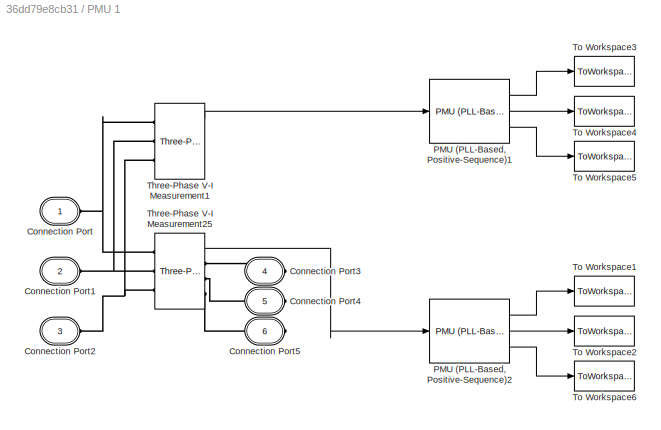
BLOCK [SubSystem] PMU 1
  Ports = [0, 0, 0, 0, 0, 3, 3]
  RequestExecContextInheritance = off
BLOCK [PMIOPort] PMU 1/Connection Port
  Side = Left
  Tag = PMCPort
BLOCK [PMIOPort] PMU 1/Connection Port1
  Port = 2
  Side = Left
  Tag = PMCPort
BLOCK [PMIOPort] PMU 1/Connection Port2
  Port = 3
  Side = Left
  Tag = PMCPort
BLOCK [PMIOPort] PMU 1/Connection Port3
  Port = 4
  Side = Right
  Tag = PMCPort
BLOCK [PMIOPort] PMU 1/Connection Port4
  Port = 5
  Side = Right
  Tag = PMCPort
BLOCK [PMIOPort] PMU 1/Connection Port5
  Port = 6
  Side = Right
  Tag = PMCPort
BLOCK [Reference] PMU 1/PMU (PLL-Based, Positive-Sequence)1  REF=powerlib_meascontrol/Measurements/PMU
(PLL-Based,
Positive-Sequence)
  Ports = [1, 3]
  SourceBlock = powerlib_meascontrol/Measurements/PMU\n(PLL-Based,\nPositive-Sequence)
  SourceProductBaseCode = PS
  SourceProductName = Simscape Electrical
  SourceType = PMU (PLL-Based, Positive-Sequence)
BLOCK [Reference] PMU 1/PMU (PLL-Based, Positive-Sequence)2  REF=powerlib_meascontrol/Measurements/PMU
(PLL-Based,
Positive-Sequence)
  Ports = [1, 3]
  SourceBlock = powerlib_meascontrol/Measurements/PMU\n(PLL-Based,\nPositive-Sequence)
  SourceProductBaseCode = PS
  SourceProductName = Simscape Electrical
  SourceType = PMU (PLL-Based, Positive-Sequence)
BLOCK [Reference] PMU 1/Three-Phase V-I Measurement1  REF=powerlib/Measurements/Three-Phase
V-I Measurement
  Ports = [0, 1, 0, 0, 0, 3, 3]
  SourceBlock = powerlib/Measurements/Three-Phase\nV-I Measurement
  SourceProductBaseCode = PS
  SourceProductName = Simscape Electrical
  SourceType = Three-Phase VI Measurement
BLOCK [Reference] PMU 1/Three-Phase V-I Measurement25  REF=powerlib/Measurements/Three-Phase
V-I Measurement
  Ports = [0, 1, 0, 0, 0, 3, 3]
  SourceBlock = powerlib/Measurements/Three-Phase\nV-I Measurement
  SourceProductBaseCode = PS
  SourceProductName = Simscape Electrical
  SourceType = Three-Phase VI Measurement
BLOCK [ToWorkspace] PMU 1/To Workspace1
  FixptAsFi = on
  MaxDataPoints = inf
  Ports = [1]
  SampleTime = -1
  Save2DSignal = 3-D array (concatenate along third dimension)
  VariableName = i_mag1
BLOCK [ToWorkspace] PMU 1/To Workspace2
  FixptAsFi = on
  MaxDataPoints = inf
  Ports = [1]
  SampleTime = -1
  Save2DSignal = 3-D array (concatenate along third dimension)
  VariableName = i_ang1
BLOCK [ToWorkspace] PMU 1/To Workspace3
  FixptAsFi = on
  MaxDataPoints = inf
  Ports = [1]
  SampleTime = -1
  Save2DSignal = 3-D array (concatenate along third dimension)
  VariableName = v_mag1
BLOCK [ToWorkspace] PMU 1/To Workspace4
  FixptAsFi = on
  MaxDataPoints = inf
  Ports = [1]
  SampleTime = -1
  Save2DSignal = 3-D array (concatenate along third dimension)
  VariableName = v_ang1
BLOCK [ToWorkspace] PMU 1/To Workspace5
  FixptAsFi = on
  MaxDataPoints = inf
  Ports = [1]
  SampleTime = -1
  Save2DSignal = 3-D array (concatenate along third dimension)
  VariableName = v_freq1
BLOCK [ToWorkspace] PMU 1/To Workspace6
  FixptAsFi = on
  MaxDataPoints = inf
  Ports = [1]
  SampleTime = -1
  Save2DSignal = 3-D array (concatenate along third dimension)
  VariableName = i_freq1
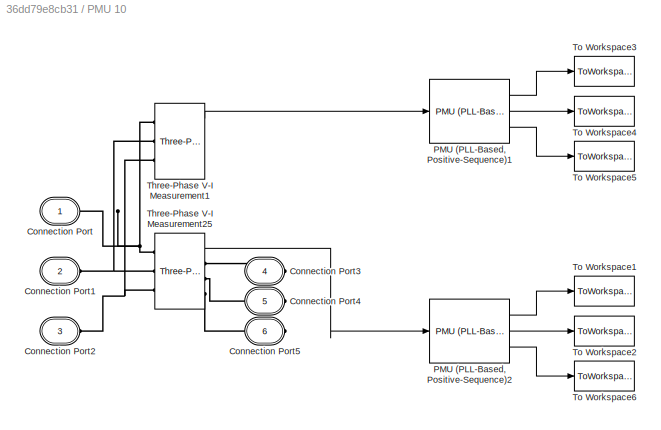
BLOCK [SubSystem] PMU 10
  Ports = [0, 0, 0, 0, 0, 3, 3]
  RequestExecContextInheritance = off
BLOCK [PMIOPort] PMU 10/Connection Port
  Side = Left
  Tag = PMCPort
BLOCK [PMIOPort] PMU 10/Connection Port1
  Port = 2
  Side = Left
  Tag = PMCPort
BLOCK [PMIOPort] PMU 10/Connection Port2
  Port = 3
  Side = Left
  Tag = PMCPort
BLOCK [PMIOPort] PMU 10/Connection Port3
  Port = 4
  Side = Right
  Tag = PMCPort
BLOCK [PMIOPort] PMU 10/Connection Port4
  Port = 5
  Side = Right
  Tag = PMCPort
BLOCK [PMIOPort] PMU 10/Connection Port5
  Port = 6
  Side = Right
  Tag = PMCPort
BLOCK [Reference] PMU 10/PMU (PLL-Based, Positive-Sequence)1  REF=powerlib_meascontrol/Measurements/PMU
(PLL-Based,
Positive-Sequence)
  Ports = [1, 3]
  SourceBlock = powerlib_meascontrol/Measurements/PMU\n(PLL-Based,\nPositive-Sequence)
  SourceProductBaseCode = PS
  SourceProductName = Simscape Electrical
  SourceType = PMU (PLL-Based, Positive-Sequence)
BLOCK [Reference] PMU 10/PMU (PLL-Based, Positive-Sequence)2  REF=powerlib_meascontrol/Measurements/PMU
(PLL-Based,
Positive-Sequence)
  Ports = [1, 3]
  SourceBlock = powerlib_meascontrol/Measurements/PMU\n(PLL-Based,\nPositive-Sequence)
  SourceProductBaseCode = PS
  SourceProductName = Simscape Electrical
  SourceType = PMU (PLL-Based, Positive-Sequence)
BLOCK [Reference] PMU 10/Three-Phase V-I Measurement1  REF=powerlib/Measurements/Three-Phase
V-I Measurement
  Ports = [0, 1, 0, 0, 0, 3, 3]
  SourceBlock = powerlib/Measurements/Three-Phase\nV-I Measurement
  SourceProductBaseCode = PS
  SourceProductName = Simscape Electrical
  SourceType = Three-Phase VI Measurement
BLOCK [Reference] PMU 10/Three-Phase V-I Measurement25  REF=powerlib/Measurements/Three-Phase
V-I Measurement
  Ports = [0, 1, 0, 0, 0, 3, 3]
  SourceBlock = powerlib/Measurements/Three-Phase\nV-I Measurement
  SourceProductBaseCode = PS
  SourceProductName = Simscape Electrical
  SourceType = Three-Phase VI Measurement
BLOCK [ToWorkspace] PMU 10/To Workspace1
  FixptAsFi = on
  MaxDataPoints = inf
  Ports = [1]
  SampleTime = -1
  Save2DSignal = 3-D array (concatenate along third dimension)
  VariableName = i_mag10
BLOCK [ToWorkspace] PMU 10/To Workspace2
  FixptAsFi = on
  MaxDataPoints = inf
  Ports = [1]
  SampleTime = -1
  Save2DSignal = 3-D array (concatenate along third dimension)
  VariableName = i_ang10
BLOCK [ToWorkspace] PMU 10/To Workspace3
  FixptAsFi = on
  MaxDataPoints = inf
  Ports = [1]
  SampleTime = -1
  Save2DSignal = 3-D array (concatenate along third dimension)
  VariableName = v_mag10
BLOCK [ToWorkspace] PMU 10/To Workspace4
  FixptAsFi = on
  MaxDataPoints = inf
  Ports = [1]
  SampleTime = -1
  Save2DSignal = 3-D array (concatenate along third dimension)
  VariableName = v_ang10
BLOCK [ToWorkspace] PMU 10/To Workspace5
  FixptAsFi = on
  MaxDataPoints = inf
  Ports = [1]
  SampleTime = -1
  Save2DSignal = 3-D array (concatenate along third dimension)
  VariableName = v_freq10
BLOCK [ToWorkspace] PMU 10/To Workspace6
  FixptAsFi = on
  MaxDataPoints = inf
  Ports = [1]
  SampleTime = -1
  Save2DSignal = 3-D array (concatenate along third dimension)
  VariableName = i_freq10
BLOCK [SubSystem] PMU 11
  Ports = [0, 0, 0, 0, 0, 3, 3]
  RequestExecContextInheritance = off
BLOCK [PMIOPort] PMU 11/Connection Port
  Side = Left
  Tag = PMCPort
BLOCK [PMIOPort] PMU 11/Connection Port1
  Port = 2
  Side = Left
  Tag = PMCPort
BLOCK [PMIOPort] PMU 11/Connection Port2
  Port = 3
  Side = Left
  Tag = PMCPort
BLOCK [PMIOPort] PMU 11/Connection Port3
  Port = 4
  Side = Right
  Tag = PMCPort
BLOCK [PMIOPort] PMU 11/Connection Port4
  Port = 5
  Side = Right
  Tag = PMCPort
BLOCK [PMIOPort] PMU 11/Connection Port5
  Port = 6
  Side = Right
  Tag = PMCPort
BLOCK [Reference] PMU 11/PMU (PLL-Based, Positive-Sequence)1  REF=powerlib_meascontrol/Measurements/PMU
(PLL-Based,
Positive-Sequence)
  Ports = [1, 3]
  SourceBlock = powerlib_meascontrol/Measurements/PMU\n(PLL-Based,\nPositive-Sequence)
  SourceProductBaseCode = PS
  SourceProductName = Simscape Electrical
  SourceType = PMU (PLL-Based, Positive-Sequence)
BLOCK [Reference] PMU 11/PMU (PLL-Based, Positive-Sequence)2  REF=powerlib_meascontrol/Measurements/PMU
(PLL-Based,
Positive-Sequence)
  Ports = [1, 3]
  SourceBlock = powerlib_meascontrol/Measurements/PMU\n(PLL-Based,\nPositive-Sequence)
  SourceProductBaseCode = PS
  SourceProductName = Simscape Electrical
  SourceType = PMU (PLL-Based, Positive-Sequence)
BLOCK [Reference] PMU 11/Three-Phase V-I Measurement1  REF=powerlib/Measurements/Three-Phase
V-I Measurement
  Ports = [0, 1, 0, 0, 0, 3, 3]
  SourceBlock = powerlib/Measurements/Three-Phase\nV-I Measurement
  SourceProductBaseCode = PS
  SourceProductName = Simscape Electrical
  SourceType = Three-Phase VI Measurement
BLOCK [Reference] PMU 11/Three-Phase V-I Measurement25  REF=powerlib/Measurements/Three-Phase
V-I Measurement
  Ports = [0, 1, 0, 0, 0, 3, 3]
  SourceBlock = powerlib/Measurements/Three-Phase\nV-I Measurement
  SourceProductBaseCode = PS
  SourceProductName = Simscape Electrical
  SourceType = Three-Phase VI Measurement
BLOCK [ToWorkspace] PMU 11/To Workspace1
  FixptAsFi = on
  MaxDataPoints = inf
  Ports = [1]
  SampleTime = -1
  Save2DSignal = 3-D array (concatenate along third dimension)
  VariableName = i_mag11
BLOCK [ToWorkspace] PMU 11/To Workspace2
  FixptAsFi = on
  MaxDataPoints = inf
  Ports = [1]
  SampleTime = -1
  Save2DSignal = 3-D array (concatenate along third dimension)
  VariableName = i_ang11
BLOCK [ToWorkspace] PMU 11/To Workspace3
  FixptAsFi = on
  MaxDataPoints = inf
  Ports = [1]
  SampleTime = -1
  Save2DSignal = 3-D array (concatenate along third dimension)
  VariableName = v_mag11
BLOCK [ToWorkspace] PMU 11/To Workspace4
  FixptAsFi = on
  MaxDataPoints = inf
  Ports = [1]
  SampleTime = -1
  Save2DSignal = 3-D array (concatenate along third dimension)
  VariableName = v_ang11
BLOCK [ToWorkspace] PMU 11/To Workspace5
  FixptAsFi = on
  MaxDataPoints = inf
  Ports = [1]
  SampleTime = -1
  Save2DSignal = 3-D array (concatenate along third dimension)
  VariableName = v_freq11
BLOCK [ToWorkspace] PMU 11/To Workspace6
  FixptAsFi = on
  MaxDataPoints = inf
  Ports = [1]
  SampleTime = -1
  Save2DSignal = 3-D array (concatenate along third dimension)
  VariableName = i_freq11
BLOCK [SubSystem] PMU 12
  Ports = [0, 0, 0, 0, 0, 3, 3]
  RequestExecContextInheritance = off
BLOCK [PMIOPort] PMU 12/Connection Port
  Side = Left
  Tag = PMCPort
BLOCK [PMIOPort] PMU 12/Connection Port1
  Port = 2
  Side = Left
  Tag = PMCPort
BLOCK [PMIOPort] PMU 12/Connection Port2
  Port = 3
  Side = Left
  Tag = PMCPort
BLOCK [PMIOPort] PMU 12/Connection Port3
  Port = 4
  Side = Right
  Tag = PMCPort
BLOCK [PMIOPort] PMU 12/Connection Port4
  Port = 5
  Side = Right
  Tag = PMCPort
BLOCK [PMIOPort] PMU 12/Connection Port5
  Port = 6
  Side = Right
  Tag = PMCPort
BLOCK [Reference] PMU 12/PMU (PLL-Based, Positive-Sequence)1  REF=powerlib_meascontrol/Measurements/PMU
(PLL-Based,
Positive-Sequence)
  Ports = [1, 3]
  SourceBlock = powerlib_meascontrol/Measurements/PMU\n(PLL-Based,\nPositive-Sequence)
  SourceProductBaseCode = PS
  SourceProductName = Simscape Electrical
  SourceType = PMU (PLL-Based, Positive-Sequence)
BLOCK [Reference] PMU 12/PMU (PLL-Based, Positive-Sequence)2  REF=powerlib_meascontrol/Measurements/PMU
(PLL-Based,
Positive-Sequence)
  Ports = [1, 3]
  SourceBlock = powerlib_meascontrol/Measurements/PMU\n(PLL-Based,\nPositive-Sequence)
  SourceProductBaseCode = PS
  SourceProductName = Simscape Electrical
  SourceType = PMU (PLL-Based, Positive-Sequence)
BLOCK [Reference] PMU 12/Three-Phase V-I Measurement1  REF=powerlib/Measurements/Three-Phase
V-I Measurement
  Ports = [0, 1, 0, 0, 0, 3, 3]
  SourceBlock = powerlib/Measurements/Three-Phase\nV-I Measurement
  SourceProductBaseCode = PS
  SourceProductName = Simscape Electrical
  SourceType = Three-Phase VI Measurement
BLOCK [Reference] PMU 12/Three-Phase V-I Measurement25  REF=powerlib/Measurements/Three-Phase
V-I Measurement
  Ports = [0, 1, 0, 0, 0, 3, 3]
  SourceBlock = powerlib/Measurements/Three-Phase\nV-I Measurement
  SourceProductBaseCode = PS
  SourceProductName = Simscape Electrical
  SourceType = Three-Phase VI Measurement
BLOCK [ToWorkspace] PMU 12/To Workspace1
  FixptAsFi = on
  MaxDataPoints = inf
  Ports = [1]
  SampleTime = -1
  Save2DSignal = 3-D array (concatenate along third dimension)
  VariableName = i_mag12
BLOCK [ToWorkspace] PMU 12/To Workspace2
  FixptAsFi = on
  MaxDataPoints = inf
  Ports = [1]
  SampleTime = -1
  Save2DSignal = 3-D array (concatenate along third dimension)
  VariableName = i_ang12
BLOCK [ToWorkspace] PMU 12/To Workspace3
  FixptAsFi = on
  MaxDataPoints = inf
  Ports = [1]
  SampleTime = -1
  Save2DSignal = 3-D array (concatenate along third dimension)
  VariableName = v_mag12
BLOCK [ToWorkspace] PMU 12/To Workspace4
  FixptAsFi = on
  MaxDataPoints = inf
  Ports = [1]
  SampleTime = -1
  Save2DSignal = 3-D array (concatenate along third dimension)
  VariableName = v_ang12
BLOCK [ToWorkspace] PMU 12/To Workspace5
  FixptAsFi = on
  MaxDataPoints = inf
  Ports = [1]
  SampleTime = -1
  Save2DSignal = 3-D array (concatenate along third dimension)
  VariableName = v_freq12
BLOCK [ToWorkspace] PMU 12/To Workspace6
  FixptAsFi = on
  MaxDataPoints = inf
  Ports = [1]
  SampleTime = -1
  Save2DSignal = 3-D array (concatenate along third dimension)
  VariableName = i_freq12
BLOCK [SubSystem] PMU 13
  Ports = [0, 0, 0, 0, 0, 3, 3]
  RequestExecContextInheritance = off
BLOCK [PMIOPort] PMU 13/Connection Port
  Side = Left
  Tag = PMCPort
BLOCK [PMIOPort] PMU 13/Connection Port1
  Port = 2
  Side = Left
  Tag = PMCPort
BLOCK [PMIOPort] PMU 13/Connection Port2
  Port = 3
  Side = Left
  Tag = PMCPort
BLOCK [PMIOPort] PMU 13/Connection Port3
  Port = 4
  Side = Right
  Tag = PMCPort
BLOCK [PMIOPort] PMU 13/Connection Port4
  Port = 5
  Side = Right
  Tag = PMCPort
BLOCK [PMIOPort] PMU 13/Connection Port5
  Port = 6
  Side = Right
  Tag = PMCPort
BLOCK [Reference] PMU 13/PMU (PLL-Based, Positive-Sequence)1  REF=powerlib_meascontrol/Measurements/PMU
(PLL-Based,
Positive-Sequence)
  Ports = [1, 3]
  SourceBlock = powerlib_meascontrol/Measurements/PMU\n(PLL-Based,\nPositive-Sequence)
  SourceProductBaseCode = PS
  SourceProductName = Simscape Electrical
  SourceType = PMU (PLL-Based, Positive-Sequence)
BLOCK [Reference] PMU 13/PMU (PLL-Based, Positive-Sequence)2  REF=powerlib_meascontrol/Measurements/PMU
(PLL-Based,
Positive-Sequence)
  Ports = [1, 3]
  SourceBlock = powerlib_meascontrol/Measurements/PMU\n(PLL-Based,\nPositive-Sequence)
  SourceProductBaseCode = PS
  SourceProductName = Simscape Electrical
  SourceType = PMU (PLL-Based, Positive-Sequence)
BLOCK [Reference] PMU 13/Three-Phase V-I Measurement1  REF=powerlib/Measurements/Three-Phase
V-I Measurement
  Ports = [0, 1, 0, 0, 0, 3, 3]
  SourceBlock = powerlib/Measurements/Three-Phase\nV-I Measurement
  SourceProductBaseCode = PS
  SourceProductName = Simscape Electrical
  SourceType = Three-Phase VI Measurement
BLOCK [Reference] PMU 13/Three-Phase V-I Measurement25  REF=powerlib/Measurements/Three-Phase
V-I Measurement
  Ports = [0, 1, 0, 0, 0, 3, 3]
  SourceBlock = powerlib/Measurements/Three-Phase\nV-I Measurement
  SourceProductBaseCode = PS
  SourceProductName = Simscape Electrical
  SourceType = Three-Phase VI Measurement
BLOCK [ToWorkspace] PMU 13/To Workspace1
  FixptAsFi = on
  MaxDataPoints = inf
  Ports = [1]
  SampleTime = -1
  Save2DSignal = 3-D array (concatenate along third dimension)
  VariableName = i_mag13
BLOCK [ToWorkspace] PMU 13/To Workspace2
  FixptAsFi = on
  MaxDataPoints = inf
  Ports = [1]
  SampleTime = -1
  Save2DSignal = 3-D array (concatenate along third dimension)
  VariableName = i_ang13
BLOCK [ToWorkspace] PMU 13/To Workspace3
  FixptAsFi = on
  MaxDataPoints = inf
  Ports = [1]
  SampleTime = -1
  Save2DSignal = 3-D array (concatenate along third dimension)
  VariableName = v_mag13
BLOCK [ToWorkspace] PMU 13/To Workspace4
  FixptAsFi = on
  MaxDataPoints = inf
  Ports = [1]
  SampleTime = -1
  Save2DSignal = 3-D array (concatenate along third dimension)
  VariableName = v_ang13
BLOCK [ToWorkspace] PMU 13/To Workspace5
  FixptAsFi = on
  MaxDataPoints = inf
  Ports = [1]
  SampleTime = -1
  Save2DSignal = 3-D array (concatenate along third dimension)
  VariableName = v_freq13
BLOCK [ToWorkspace] PMU 13/To Workspace6
  FixptAsFi = on
  MaxDataPoints = inf
  Ports = [1]
  SampleTime = -1
  Save2DSignal = 3-D array (concatenate along third dimension)
  VariableName = i_freq13
BLOCK [SubSystem] PMU 14
  Ports = [0, 0, 0, 0, 0, 3, 3]
  RequestExecContextInheritance = off
BLOCK [PMIOPort] PMU 14/Connection Port
  Side = Left
  Tag = PMCPort
BLOCK [PMIOPort] PMU 14/Connection Port1
  Port = 2
  Side = Left
  Tag = PMCPort
BLOCK [PMIOPort] PMU 14/Connection Port2
  Port = 3
  Side = Left
  Tag = PMCPort
BLOCK [PMIOPort] PMU 14/Connection Port3
  Port = 4
  Side = Right
  Tag = PMCPort
BLOCK [PMIOPort] PMU 14/Connection Port4
  Port = 5
  Side = Right
  Tag = PMCPort
BLOCK [PMIOPort] PMU 14/Connection Port5
  Port = 6
  Side = Right
  Tag = PMCPort
BLOCK [Reference] PMU 14/PMU (PLL-Based, Positive-Sequence)1  REF=powerlib_meascontrol/Measurements/PMU
(PLL-Based,
Positive-Sequence)
  Ports = [1, 3]
  SourceBlock = powerlib_meascontrol/Measurements/PMU\n(PLL-Based,\nPositive-Sequence)
  SourceProductBaseCode = PS
  SourceProductName = Simscape Electrical
  SourceType = PMU (PLL-Based, Positive-Sequence)
BLOCK [Reference] PMU 14/PMU (PLL-Based, Positive-Sequence)2  REF=powerlib_meascontrol/Measurements/PMU
(PLL-Based,
Positive-Sequence)
  Ports = [1, 3]
  SourceBlock = powerlib_meascontrol/Measurements/PMU\n(PLL-Based,\nPositive-Sequence)
  SourceProductBaseCode = PS
  SourceProductName = Simscape Electrical
  SourceType = PMU (PLL-Based, Positive-Sequence)
BLOCK [Reference] PMU 14/Three-Phase V-I Measurement1  REF=powerlib/Measurements/Three-Phase
V-I Measurement
  Ports = [0, 1, 0, 0, 0, 3, 3]
  SourceBlock = powerlib/Measurements/Three-Phase\nV-I Measurement
  SourceProductBaseCode = PS
  SourceProductName = Simscape Electrical
  SourceType = Three-Phase VI Measurement
BLOCK [Reference] PMU 14/Three-Phase V-I Measurement25  REF=powerlib/Measurements/Three-Phase
V-I Measurement
  Ports = [0, 1, 0, 0, 0, 3, 3]
  SourceBlock = powerlib/Measurements/Three-Phase\nV-I Measurement
  SourceProductBaseCode = PS
  SourceProductName = Simscape Electrical
  SourceType = Three-Phase VI Measurement
BLOCK [ToWorkspace] PMU 14/To Workspace1
  FixptAsFi = on
  MaxDataPoints = inf
  Ports = [1]
  SampleTime = -1
  Save2DSignal = 3-D array (concatenate along third dimension)
  VariableName = i_mag14
BLOCK [ToWorkspace] PMU 14/To Workspace2
  FixptAsFi = on
  MaxDataPoints = inf
  Ports = [1]
  SampleTime = -1
  Save2DSignal = 3-D array (concatenate along third dimension)
  VariableName = i_ang14
BLOCK [ToWorkspace] PMU 14/To Workspace3
  FixptAsFi = on
  MaxDataPoints = inf
  Ports = [1]
  SampleTime = -1
  Save2DSignal = 3-D array (concatenate along third dimension)
  VariableName = v_mag14
BLOCK [ToWorkspace] PMU 14/To Workspace4
  FixptAsFi = on
  MaxDataPoints = inf
  Ports = [1]
  SampleTime = -1
  Save2DSignal = 3-D array (concatenate along third dimension)
  VariableName = v_ang14
BLOCK [ToWorkspace] PMU 14/To Workspace5
  FixptAsFi = on
  MaxDataPoints = inf
  Ports = [1]
  SampleTime = -1
  Save2DSignal = 3-D array (concatenate along third dimension)
  VariableName = v_freq14
BLOCK [ToWorkspace] PMU 14/To Workspace6
  FixptAsFi = on
  MaxDataPoints = inf
  Ports = [1]
  SampleTime = -1
  Save2DSignal = 3-D array (concatenate along third dimension)
  VariableName = i_freq14
BLOCK [SubSystem] PMU 15
  Ports = [0, 0, 0, 0, 0, 3, 3]
  RequestExecContextInheritance = off
BLOCK [PMIOPort] PMU 15/Connection Port
  Side = Left
  Tag = PMCPort
BLOCK [PMIOPort] PMU 15/Connection Port1
  Port = 2
  Side = Left
  Tag = PMCPort
BLOCK [PMIOPort] PMU 15/Connection Port2
  Port = 3
  Side = Left
  Tag = PMCPort
BLOCK [PMIOPort] PMU 15/Connection Port3
  Port = 4
  Side = Right
  Tag = PMCPort
BLOCK [PMIOPort] PMU 15/Connection Port4
  Port = 5
  Side = Right
  Tag = PMCPort
BLOCK [PMIOPort] PMU 15/Connection Port5
  Port = 6
  Side = Right
  Tag = PMCPort
BLOCK [Reference] PMU 15/PMU (PLL-Based, Positive-Sequence)1  REF=powerlib_meascontrol/Measurements/PMU
(PLL-Based,
Positive-Sequence)
  Ports = [1, 3]
  SourceBlock = powerlib_meascontrol/Measurements/PMU\n(PLL-Based,\nPositive-Sequence)
  SourceProductBaseCode = PS
  SourceProductName = Simscape Electrical
  SourceType = PMU (PLL-Based, Positive-Sequence)
BLOCK [Reference] PMU 15/PMU (PLL-Based, Positive-Sequence)2  REF=powerlib_meascontrol/Measurements/PMU
(PLL-Based,
Positive-Sequence)
  Ports = [1, 3]
  SourceBlock = powerlib_meascontrol/Measurements/PMU\n(PLL-Based,\nPositive-Sequence)
  SourceProductBaseCode = PS
  SourceProductName = Simscape Electrical
  SourceType = PMU (PLL-Based, Positive-Sequence)
BLOCK [Reference] PMU 15/Three-Phase V-I Measurement1  REF=powerlib/Measurements/Three-Phase
V-I Measurement
  Ports = [0, 1, 0, 0, 0, 3, 3]
  SourceBlock = powerlib/Measurements/Three-Phase\nV-I Measurement
  SourceProductBaseCode = PS
  SourceProductName = Simscape Electrical
  SourceType = Three-Phase VI Measurement
BLOCK [Reference] PMU 15/Three-Phase V-I Measurement25  REF=powerlib/Measurements/Three-Phase
V-I Measurement
  Ports = [0, 1, 0, 0, 0, 3, 3]
  SourceBlock = powerlib/Measurements/Three-Phase\nV-I Measurement
  SourceProductBaseCode = PS
  SourceProductName = Simscape Electrical
  SourceType = Three-Phase VI Measurement
BLOCK [ToWorkspace] PMU 15/To Workspace1
  FixptAsFi = on
  MaxDataPoints = inf
  Ports = [1]
  SampleTime = -1
  Save2DSignal = 3-D array (concatenate along third dimension)
  VariableName = i_mag15
BLOCK [ToWorkspace] PMU 15/To Workspace2
  FixptAsFi = on
  MaxDataPoints = inf
  Ports = [1]
  SampleTime = -1
  Save2DSignal = 3-D array (concatenate along third dimension)
  VariableName = i_ang15
BLOCK [ToWorkspace] PMU 15/To Workspace3
  FixptAsFi = on
  MaxDataPoints = inf
  Ports = [1]
  SampleTime = -1
  Save2DSignal = 3-D array (concatenate along third dimension)
  VariableName = v_mag15
BLOCK [ToWorkspace] PMU 15/To Workspace4
  FixptAsFi = on
  MaxDataPoints = inf
  Ports = [1]
  SampleTime = -1
  Save2DSignal = 3-D array (concatenate along third dimension)
  VariableName = v_ang15
BLOCK [ToWorkspace] PMU 15/To Workspace5
  FixptAsFi = on
  MaxDataPoints = inf
  Ports = [1]
  SampleTime = -1
  Save2DSignal = 3-D array (concatenate along third dimension)
  VariableName = v_freq15
BLOCK [ToWorkspace] PMU 15/To Workspace6
  FixptAsFi = on
  MaxDataPoints = inf
  Ports = [1]
  SampleTime = -1
  Save2DSignal = 3-D array (concatenate along third dimension)
  VariableName = i_freq15
BLOCK [SubSystem] PMU 16
  Ports = [0, 0, 0, 0, 0, 3, 3]
  RequestExecContextInheritance = off
BLOCK [PMIOPort] PMU 16/Connection Port
  Side = Left
  Tag = PMCPort
BLOCK [PMIOPort] PMU 16/Connection Port1
  Port = 2
  Side = Left
  Tag = PMCPort
BLOCK [PMIOPort] PMU 16/Connection Port2
  Port = 3
  Side = Left
  Tag = PMCPort
BLOCK [PMIOPort] PMU 16/Connection Port3
  Port = 4
  Side = Right
  Tag = PMCPort
BLOCK [PMIOPort] PMU 16/Connection Port4
  Port = 5
  Side = Right
  Tag = PMCPort
BLOCK [PMIOPort] PMU 16/Connection Port5
  Port = 6
  Side = Right
  Tag = PMCPort
BLOCK [Reference] PMU 16/PMU (PLL-Based, Positive-Sequence)1  REF=powerlib_meascontrol/Measurements/PMU
(PLL-Based,
Positive-Sequence)
  Ports = [1, 3]
  SourceBlock = powerlib_meascontrol/Measurements/PMU\n(PLL-Based,\nPositive-Sequence)
  SourceProductBaseCode = PS
  SourceProductName = Simscape Electrical
  SourceType = PMU (PLL-Based, Positive-Sequence)
BLOCK [Reference] PMU 16/PMU (PLL-Based, Positive-Sequence)2  REF=powerlib_meascontrol/Measurements/PMU
(PLL-Based,
Positive-Sequence)
  Ports = [1, 3]
  SourceBlock = powerlib_meascontrol/Measurements/PMU\n(PLL-Based,\nPositive-Sequence)
  SourceProductBaseCode = PS
  SourceProductName = Simscape Electrical
  SourceType = PMU (PLL-Based, Positive-Sequence)
BLOCK [Reference] PMU 16/Three-Phase V-I Measurement1  REF=powerlib/Measurements/Three-Phase
V-I Measurement
  Ports = [0, 1, 0, 0, 0, 3, 3]
  SourceBlock = powerlib/Measurements/Three-Phase\nV-I Measurement
  SourceProductBaseCode = PS
  SourceProductName = Simscape Electrical
  SourceType = Three-Phase VI Measurement
BLOCK [Reference] PMU 16/Three-Phase V-I Measurement25  REF=powerlib/Measurements/Three-Phase
V-I Measurement
  Ports = [0, 1, 0, 0, 0, 3, 3]
  SourceBlock = powerlib/Measurements/Three-Phase\nV-I Measurement
  SourceProductBaseCode = PS
  SourceProductName = Simscape Electrical
  SourceType = Three-Phase VI Measurement
BLOCK [ToWorkspace] PMU 16/To Workspace1
  FixptAsFi = on
  MaxDataPoints = inf
  Ports = [1]
  SampleTime = -1
  Save2DSignal = 3-D array (concatenate along third dimension)
  VariableName = i_mag16
BLOCK [ToWorkspace] PMU 16/To Workspace2
  FixptAsFi = on
  MaxDataPoints = inf
  Ports = [1]
  SampleTime = -1
  Save2DSignal = 3-D array (concatenate along third dimension)
  VariableName = i_ang16
BLOCK [ToWorkspace] PMU 16/To Workspace3
  FixptAsFi = on
  MaxDataPoints = inf
  Ports = [1]
  SampleTime = -1
  Save2DSignal = 3-D array (concatenate along third dimension)
  VariableName = v_mag16
BLOCK [ToWorkspace] PMU 16/To Workspace4
  FixptAsFi = on
  MaxDataPoints = inf
  Ports = [1]
  SampleTime = -1
  Save2DSignal = 3-D array (concatenate along third dimension)
  VariableName = v_ang16
BLOCK [ToWorkspace] PMU 16/To Workspace5
  FixptAsFi = on
  MaxDataPoints = inf
  Ports = [1]
  SampleTime = -1
  Save2DSignal = 3-D array (concatenate along third dimension)
  VariableName = v_freq16
BLOCK [ToWorkspace] PMU 16/To Workspace6
  FixptAsFi = on
  MaxDataPoints = inf
  Ports = [1]
  SampleTime = -1
  Save2DSignal = 3-D array (concatenate along third dimension)
  VariableName = i_freq16
BLOCK [SubSystem] PMU 17
  Ports = [0, 0, 0, 0, 0, 3, 3]
  RequestExecContextInheritance = off
BLOCK [PMIOPort] PMU 17/Connection Port
  Side = Left
  Tag = PMCPort
BLOCK [PMIOPort] PMU 17/Connection Port1
  Port = 2
  Side = Left
  Tag = PMCPort
BLOCK [PMIOPort] PMU 17/Connection Port2
  Port = 3
  Side = Left
  Tag = PMCPort
BLOCK [PMIOPort] PMU 17/Connection Port3
  Port = 4
  Side = Right
  Tag = PMCPort
BLOCK [PMIOPort] PMU 17/Connection Port4
  Port = 5
  Side = Right
  Tag = PMCPort
BLOCK [PMIOPort] PMU 17/Connection Port5
  Port = 6
  Side = Right
  Tag = PMCPort
BLOCK [Reference] PMU 17/PMU (PLL-Based, Positive-Sequence)1  REF=powerlib_meascontrol/Measurements/PMU
(PLL-Based,
Positive-Sequence)
  Ports = [1, 3]
  SourceBlock = powerlib_meascontrol/Measurements/PMU\n(PLL-Based,\nPositive-Sequence)
  SourceProductBaseCode = PS
  SourceProductName = Simscape Electrical
  SourceType = PMU (PLL-Based, Positive-Sequence)
BLOCK [Reference] PMU 17/PMU (PLL-Based, Positive-Sequence)2  REF=powerlib_meascontrol/Measurements/PMU
(PLL-Based,
Positive-Sequence)
  Ports = [1, 3]
  SourceBlock = powerlib_meascontrol/Measurements/PMU\n(PLL-Based,\nPositive-Sequence)
  SourceProductBaseCode = PS
  SourceProductName = Simscape Electrical
  SourceType = PMU (PLL-Based, Positive-Sequence)
BLOCK [Reference] PMU 17/Three-Phase V-I Measurement1  REF=powerlib/Measurements/Three-Phase
V-I Measurement
  Ports = [0, 1, 0, 0, 0, 3, 3]
  SourceBlock = powerlib/Measurements/Three-Phase\nV-I Measurement
  SourceProductBaseCode = PS
  SourceProductName = Simscape Electrical
  SourceType = Three-Phase VI Measurement
BLOCK [Reference] PMU 17/Three-Phase V-I Measurement25  REF=powerlib/Measurements/Three-Phase
V-I Measurement
  Ports = [0, 1, 0, 0, 0, 3, 3]
  SourceBlock = powerlib/Measurements/Three-Phase\nV-I Measurement
  SourceProductBaseCode = PS
  SourceProductName = Simscape Electrical
  SourceType = Three-Phase VI Measurement
BLOCK [ToWorkspace] PMU 17/To Workspace1
  FixptAsFi = on
  MaxDataPoints = inf
  Ports = [1]
  SampleTime = -1
  Save2DSignal = 3-D array (concatenate along third dimension)
  VariableName = i_mag17
BLOCK [ToWorkspace] PMU 17/To Workspace2
  FixptAsFi = on
  MaxDataPoints = inf
  Ports = [1]
  SampleTime = -1
  Save2DSignal = 3-D array (concatenate along third dimension)
  VariableName = i_ang17
BLOCK [ToWorkspace] PMU 17/To Workspace3
  FixptAsFi = on
  MaxDataPoints = inf
  Ports = [1]
  SampleTime = -1
  Save2DSignal = 3-D array (concatenate along third dimension)
  VariableName = v_mag17
BLOCK [ToWorkspace] PMU 17/To Workspace4
  FixptAsFi = on
  MaxDataPoints = inf
  Ports = [1]
  SampleTime = -1
  Save2DSignal = 3-D array (concatenate along third dimension)
  VariableName = v_ang17
BLOCK [ToWorkspace] PMU 17/To Workspace5
  FixptAsFi = on
  MaxDataPoints = inf
  Ports = [1]
  SampleTime = -1
  Save2DSignal = 3-D array (concatenate along third dimension)
  VariableName = v_freq17
BLOCK [ToWorkspace] PMU 17/To Workspace6
  FixptAsFi = on
  MaxDataPoints = inf
  Ports = [1]
  SampleTime = -1
  Save2DSignal = 3-D array (concatenate along third dimension)
  VariableName = i_freq17
BLOCK [SubSystem] PMU 18
  Ports = [0, 0, 0, 0, 0, 3, 3]
  RequestExecContextInheritance = off
BLOCK [PMIOPort] PMU 18/Connection Port
  Side = Left
  Tag = PMCPort
BLOCK [PMIOPort] PMU 18/Connection Port1
  Port = 2
  Side = Left
  Tag = PMCPort
BLOCK [PMIOPort] PMU 18/Connection Port2
  Port = 3
  Side = Left
  Tag = PMCPort
BLOCK [PMIOPort] PMU 18/Connection Port3
  Port = 4
  Side = Right
  Tag = PMCPort
BLOCK [PMIOPort] PMU 18/Connection Port4
  Port = 5
  Side = Right
  Tag = PMCPort
BLOCK [PMIOPort] PMU 18/Connection Port5
  Port = 6
  Side = Right
  Tag = PMCPort
BLOCK [Reference] PMU 18/PMU (PLL-Based, Positive-Sequence)1  REF=powerlib_meascontrol/Measurements/PMU
(PLL-Based,
Positive-Sequence)
  Ports = [1, 3]
  SourceBlock = powerlib_meascontrol/Measurements/PMU\n(PLL-Based,\nPositive-Sequence)
  SourceProductBaseCode = PS
  SourceProductName = Simscape Electrical
  SourceType = PMU (PLL-Based, Positive-Sequence)
BLOCK [Reference] PMU 18/PMU (PLL-Based, Positive-Sequence)2  REF=powerlib_meascontrol/Measurements/PMU
(PLL-Based,
Positive-Sequence)
  Ports = [1, 3]
  SourceBlock = powerlib_meascontrol/Measurements/PMU\n(PLL-Based,\nPositive-Sequence)
  SourceProductBaseCode = PS
  SourceProductName = Simscape Electrical
  SourceType = PMU (PLL-Based, Positive-Sequence)
BLOCK [Reference] PMU 18/Three-Phase V-I Measurement1  REF=powerlib/Measurements/Three-Phase
V-I Measurement
  Ports = [0, 1, 0, 0, 0, 3, 3]
  SourceBlock = powerlib/Measurements/Three-Phase\nV-I Measurement
  SourceProductBaseCode = PS
  SourceProductName = Simscape Electrical
  SourceType = Three-Phase VI Measurement
BLOCK [Reference] PMU 18/Three-Phase V-I Measurement25  REF=powerlib/Measurements/Three-Phase
V-I Measurement
  Ports = [0, 1, 0, 0, 0, 3, 3]
  SourceBlock = powerlib/Measurements/Three-Phase\nV-I Measurement
  SourceProductBaseCode = PS
  SourceProductName = Simscape Electrical
  SourceType = Three-Phase VI Measurement
BLOCK [ToWorkspace] PMU 18/To Workspace1
  FixptAsFi = on
  MaxDataPoints = inf
  Ports = [1]
  SampleTime = -1
  Save2DSignal = 3-D array (concatenate along third dimension)
  VariableName = i_mag18
BLOCK [ToWorkspace] PMU 18/To Workspace2
  FixptAsFi = on
  MaxDataPoints = inf
  Ports = [1]
  SampleTime = -1
  Save2DSignal = 3-D array (concatenate along third dimension)
  VariableName = i_ang18
BLOCK [ToWorkspace] PMU 18/To Workspace3
  FixptAsFi = on
  MaxDataPoints = inf
  Ports = [1]
  SampleTime = -1
  Save2DSignal = 3-D array (concatenate along third dimension)
  VariableName = v_mag18
BLOCK [ToWorkspace] PMU 18/To Workspace4
  FixptAsFi = on
  MaxDataPoints = inf
  Ports = [1]
  SampleTime = -1
  Save2DSignal = 3-D array (concatenate along third dimension)
  VariableName = v_ang18
BLOCK [ToWorkspace] PMU 18/To Workspace5
  FixptAsFi = on
  MaxDataPoints = inf
  Ports = [1]
  SampleTime = -1
  Save2DSignal = 3-D array (concatenate along third dimension)
  VariableName = v_freq18
BLOCK [ToWorkspace] PMU 18/To Workspace6
  FixptAsFi = on
  MaxDataPoints = inf
  Ports = [1]
  SampleTime = -1
  Save2DSignal = 3-D array (concatenate along third dimension)
  VariableName = i_freq18
BLOCK [SubSystem] PMU 19
  Ports = [0, 0, 0, 0, 0, 3, 3]
  RequestExecContextInheritance = off
BLOCK [PMIOPort] PMU 19/Connection Port
  Side = Left
  Tag = PMCPort
BLOCK [PMIOPort] PMU 19/Connection Port1
  Port = 2
  Side = Left
  Tag = PMCPort
BLOCK [PMIOPort] PMU 19/Connection Port2
  Port = 3
  Side = Left
  Tag = PMCPort
BLOCK [PMIOPort] PMU 19/Connection Port3
  Port = 4
  Side = Right
  Tag = PMCPort
BLOCK [PMIOPort] PMU 19/Connection Port4
  Port = 5
  Side = Right
  Tag = PMCPort
BLOCK [PMIOPort] PMU 19/Connection Port5
  Port = 6
  Side = Right
  Tag = PMCPort
BLOCK [Reference] PMU 19/PMU (PLL-Based, Positive-Sequence)1  REF=powerlib_meascontrol/Measurements/PMU
(PLL-Based,
Positive-Sequence)
  Ports = [1, 3]
  SourceBlock = powerlib_meascontrol/Measurements/PMU\n(PLL-Based,\nPositive-Sequence)
  SourceProductBaseCode = PS
  SourceProductName = Simscape Electrical
  SourceType = PMU (PLL-Based, Positive-Sequence)
BLOCK [Reference] PMU 19/PMU (PLL-Based, Positive-Sequence)2  REF=powerlib_meascontrol/Measurements/PMU
(PLL-Based,
Positive-Sequence)
  Ports = [1, 3]
  SourceBlock = powerlib_meascontrol/Measurements/PMU\n(PLL-Based,\nPositive-Sequence)
  SourceProductBaseCode = PS
  SourceProductName = Simscape Electrical
  SourceType = PMU (PLL-Based, Positive-Sequence)
BLOCK [Reference] PMU 19/Three-Phase V-I Measurement1  REF=powerlib/Measurements/Three-Phase
V-I Measurement
  Ports = [0, 1, 0, 0, 0, 3, 3]
  SourceBlock = powerlib/Measurements/Three-Phase\nV-I Measurement
  SourceProductBaseCode = PS
  SourceProductName = Simscape Electrical
  SourceType = Three-Phase VI Measurement
BLOCK [Reference] PMU 19/Three-Phase V-I Measurement25  REF=powerlib/Measurements/Three-Phase
V-I Measurement
  Ports = [0, 1, 0, 0, 0, 3, 3]
  SourceBlock = powerlib/Measurements/Three-Phase\nV-I Measurement
  SourceProductBaseCode = PS
  SourceProductName = Simscape Electrical
  SourceType = Three-Phase VI Measurement
BLOCK [ToWorkspace] PMU 19/To Workspace1
  FixptAsFi = on
  MaxDataPoints = inf
  Ports = [1]
  SampleTime = -1
  Save2DSignal = 3-D array (concatenate along third dimension)
  VariableName = i_mag19
BLOCK [ToWorkspace] PMU 19/To Workspace2
  FixptAsFi = on
  MaxDataPoints = inf
  Ports = [1]
  SampleTime = -1
  Save2DSignal = 3-D array (concatenate along third dimension)
  VariableName = i_ang19
BLOCK [ToWorkspace] PMU 19/To Workspace3
  FixptAsFi = on
  MaxDataPoints = inf
  Ports = [1]
  SampleTime = -1
  Save2DSignal = 3-D array (concatenate along third dimension)
  VariableName = v_mag19
BLOCK [ToWorkspace] PMU 19/To Workspace4
  FixptAsFi = on
  MaxDataPoints = inf
  Ports = [1]
  SampleTime = -1
  Save2DSignal = 3-D array (concatenate along third dimension)
  VariableName = v_ang19
BLOCK [ToWorkspace] PMU 19/To Workspace5
  FixptAsFi = on
  MaxDataPoints = inf
  Ports = [1]
  SampleTime = -1
  Save2DSignal = 3-D array (concatenate along third dimension)
  VariableName = v_freq19
BLOCK [ToWorkspace] PMU 19/To Workspace6
  FixptAsFi = on
  MaxDataPoints = inf
  Ports = [1]
  SampleTime = -1
  Save2DSignal = 3-D array (concatenate along third dimension)
  VariableName = i_freq19
BLOCK [SubSystem] PMU 2
  Ports = [0, 0, 0, 0, 0, 3, 3]
  RequestExecContextInheritance = off
BLOCK [PMIOPort] PMU 2/Connection Port
  Side = Left
  Tag = PMCPort
BLOCK [PMIOPort] PMU 2/Connection Port1
  Port = 2
  Side = Left
  Tag = PMCPort
BLOCK [PMIOPort] PMU 2/Connection Port2
  Port = 3
  Side = Left
  Tag = PMCPort
BLOCK [PMIOPort] PMU 2/Connection Port3
  Port = 4
  Side = Right
  Tag = PMCPort
BLOCK [PMIOPort] PMU 2/Connection Port4
  Port = 5
  Side = Right
  Tag = PMCPort
BLOCK [PMIOPort] PMU 2/Connection Port5
  Port = 6
  Side = Right
  Tag = PMCPort
BLOCK [Reference] PMU 2/PMU (PLL-Based, Positive-Sequence)1  REF=powerlib_meascontrol/Measurements/PMU
(PLL-Based,
Positive-Sequence)
  Ports = [1, 3]
  SourceBlock = powerlib_meascontrol/Measurements/PMU\n(PLL-Based,\nPositive-Sequence)
  SourceProductBaseCode = PS
  SourceProductName = Simscape Electrical
  SourceType = PMU (PLL-Based, Positive-Sequence)
BLOCK [Reference] PMU 2/PMU (PLL-Based, Positive-Sequence)2  REF=powerlib_meascontrol/Measurements/PMU
(PLL-Based,
Positive-Sequence)
  Ports = [1, 3]
  SourceBlock = powerlib_meascontrol/Measurements/PMU\n(PLL-Based,\nPositive-Sequence)
  SourceProductBaseCode = PS
  SourceProductName = Simscape Electrical
  SourceType = PMU (PLL-Based, Positive-Sequence)
BLOCK [Reference] PMU 2/Three-Phase V-I Measurement1  REF=powerlib/Measurements/Three-Phase
V-I Measurement
  Ports = [0, 1, 0, 0, 0, 3, 3]
  SourceBlock = powerlib/Measurements/Three-Phase\nV-I Measurement
  SourceProductBaseCode = PS
  SourceProductName = Simscape Electrical
  SourceType = Three-Phase VI Measurement
BLOCK [Reference] PMU 2/Three-Phase V-I Measurement25  REF=powerlib/Measurements/Three-Phase
V-I Measurement
  Ports = [0, 1, 0, 0, 0, 3, 3]
  SourceBlock = powerlib/Measurements/Three-Phase\nV-I Measurement
  SourceProductBaseCode = PS
  SourceProductName = Simscape Electrical
  SourceType = Three-Phase VI Measurement
BLOCK [ToWorkspace] PMU 2/To Workspace1
  FixptAsFi = on
  MaxDataPoints = inf
  Ports = [1]
  SampleTime = -1
  Save2DSignal = 3-D array (concatenate along third dimension)
  VariableName = i_mag2
BLOCK [ToWorkspace] PMU 2/To Workspace2
  FixptAsFi = on
  MaxDataPoints = inf
  Ports = [1]
  SampleTime = -1
  Save2DSignal = 3-D array (concatenate along third dimension)
  VariableName = i_ang2
BLOCK [ToWorkspace] PMU 2/To Workspace3
  FixptAsFi = on
  MaxDataPoints = inf
  Ports = [1]
  SampleTime = -1
  Save2DSignal = 3-D array (concatenate along third dimension)
  VariableName = v_mag2
BLOCK [ToWorkspace] PMU 2/To Workspace4
  FixptAsFi = on
  MaxDataPoints = inf
  Ports = [1]
  SampleTime = -1
  Save2DSignal = 3-D array (concatenate along third dimension)
  VariableName = v_ang2
BLOCK [ToWorkspace] PMU 2/To Workspace5
  FixptAsFi = on
  MaxDataPoints = inf
  Ports = [1]
  SampleTime = -1
  Save2DSignal = 3-D array (concatenate along third dimension)
  VariableName = v_freq2
BLOCK [ToWorkspace] PMU 2/To Workspace6
  FixptAsFi = on
  MaxDataPoints = inf
  Ports = [1]
  SampleTime = -1
  Save2DSignal = 3-D array (concatenate along third dimension)
  VariableName = i_freq2
BLOCK [SubSystem] PMU 20
  Ports = [0, 0, 0, 0, 0, 3, 3]
  RequestExecContextInheritance = off
BLOCK [PMIOPort] PMU 20/Connection Port
  Side = Left
  Tag = PMCPort
BLOCK [PMIOPort] PMU 20/Connection Port1
  Port = 2
  Side = Left
  Tag = PMCPort
BLOCK [PMIOPort] PMU 20/Connection Port2
  Port = 3
  Side = Left
  Tag = PMCPort
BLOCK [PMIOPort] PMU 20/Connection Port3
  Port = 4
  Side = Right
  Tag = PMCPort
BLOCK [PMIOPort] PMU 20/Connection Port4
  Port = 5
  Side = Right
  Tag = PMCPort
BLOCK [PMIOPort] PMU 20/Connection Port5
  Port = 6
  Side = Right
  Tag = PMCPort
BLOCK [Reference] PMU 20/PMU (PLL-Based, Positive-Sequence)1  REF=powerlib_meascontrol/Measurements/PMU
(PLL-Based,
Positive-Sequence)
  Ports = [1, 3]
  SourceBlock = powerlib_meascontrol/Measurements/PMU\n(PLL-Based,\nPositive-Sequence)
  SourceProductBaseCode = PS
  SourceProductName = Simscape Electrical
  SourceType = PMU (PLL-Based, Positive-Sequence)
BLOCK [Reference] PMU 20/PMU (PLL-Based, Positive-Sequence)2  REF=powerlib_meascontrol/Measurements/PMU
(PLL-Based,
Positive-Sequence)
  Ports = [1, 3]
  SourceBlock = powerlib_meascontrol/Measurements/PMU\n(PLL-Based,\nPositive-Sequence)
  SourceProductBaseCode = PS
  SourceProductName = Simscape Electrical
  SourceType = PMU (PLL-Based, Positive-Sequence)
BLOCK [Reference] PMU 20/Three-Phase V-I Measurement1  REF=powerlib/Measurements/Three-Phase
V-I Measurement
  Ports = [0, 1, 0, 0, 0, 3, 3]
  SourceBlock = powerlib/Measurements/Three-Phase\nV-I Measurement
  SourceProductBaseCode = PS
  SourceProductName = Simscape Electrical
  SourceType = Three-Phase VI Measurement
BLOCK [Reference] PMU 20/Three-Phase V-I Measurement25  REF=powerlib/Measurements/Three-Phase
V-I Measurement
  Ports = [0, 1, 0, 0, 0, 3, 3]
  SourceBlock = powerlib/Measurements/Three-Phase\nV-I Measurement
  SourceProductBaseCode = PS
  SourceProductName = Simscape Electrical
  SourceType = Three-Phase VI Measurement
BLOCK [ToWorkspace] PMU 20/To Workspace1
  FixptAsFi = on
  MaxDataPoints = inf
  Ports = [1]
  SampleTime = -1
  Save2DSignal = 3-D array (concatenate along third dimension)
  VariableName = i_mag20
BLOCK [ToWorkspace] PMU 20/To Workspace2
  FixptAsFi = on
  MaxDataPoints = inf
  Ports = [1]
  SampleTime = -1
  Save2DSignal = 3-D array (concatenate along third dimension)
  VariableName = i_ang20
BLOCK [ToWorkspace] PMU 20/To Workspace3
  FixptAsFi = on
  MaxDataPoints = inf
  Ports = [1]
  SampleTime = -1
  Save2DSignal = 3-D array (concatenate along third dimension)
  VariableName = v_mag20
BLOCK [ToWorkspace] PMU 20/To Workspace4
  FixptAsFi = on
  MaxDataPoints = inf
  Ports = [1]
  SampleTime = -1
  Save2DSignal = 3-D array (concatenate along third dimension)
  VariableName = v_ang20
BLOCK [ToWorkspace] PMU 20/To Workspace5
  FixptAsFi = on
  MaxDataPoints = inf
  Ports = [1]
  SampleTime = -1
  Save2DSignal = 3-D array (concatenate along third dimension)
  VariableName = v_freq20
BLOCK [ToWorkspace] PMU 20/To Workspace6
  FixptAsFi = on
  MaxDataPoints = inf
  Ports = [1]
  SampleTime = -1
  Save2DSignal = 3-D array (concatenate along third dimension)
  VariableName = i_freq20
BLOCK [SubSystem] PMU 21
  Ports = [0, 0, 0, 0, 0, 3, 3]
  RequestExecContextInheritance = off
BLOCK [PMIOPort] PMU 21/Connection Port
  Side = Left
  Tag = PMCPort
BLOCK [PMIOPort] PMU 21/Connection Port1
  Port = 2
  Side = Left
  Tag = PMCPort
BLOCK [PMIOPort] PMU 21/Connection Port2
  Port = 3
  Side = Left
  Tag = PMCPort
BLOCK [PMIOPort] PMU 21/Connection Port3
  Port = 4
  Side = Right
  Tag = PMCPort
BLOCK [PMIOPort] PMU 21/Connection Port4
  Port = 5
  Side = Right
  Tag = PMCPort
BLOCK [PMIOPort] PMU 21/Connection Port5
  Port = 6
  Side = Right
  Tag = PMCPort
BLOCK [Reference] PMU 21/PMU (PLL-Based, Positive-Sequence)1  REF=powerlib_meascontrol/Measurements/PMU
(PLL-Based,
Positive-Sequence)
  Ports = [1, 3]
  SourceBlock = powerlib_meascontrol/Measurements/PMU\n(PLL-Based,\nPositive-Sequence)
  SourceProductBaseCode = PS
  SourceProductName = Simscape Electrical
  SourceType = PMU (PLL-Based, Positive-Sequence)
BLOCK [Reference] PMU 21/PMU (PLL-Based, Positive-Sequence)2  REF=powerlib_meascontrol/Measurements/PMU
(PLL-Based,
Positive-Sequence)
  Ports = [1, 3]
  SourceBlock = powerlib_meascontrol/Measurements/PMU\n(PLL-Based,\nPositive-Sequence)
  SourceProductBaseCode = PS
  SourceProductName = Simscape Electrical
  SourceType = PMU (PLL-Based, Positive-Sequence)
BLOCK [Reference] PMU 21/Three-Phase V-I Measurement1  REF=powerlib/Measurements/Three-Phase
V-I Measurement
  Ports = [0, 1, 0, 0, 0, 3, 3]
  SourceBlock = powerlib/Measurements/Three-Phase\nV-I Measurement
  SourceProductBaseCode = PS
  SourceProductName = Simscape Electrical
  SourceType = Three-Phase VI Measurement
BLOCK [Reference] PMU 21/Three-Phase V-I Measurement25  REF=powerlib/Measurements/Three-Phase
V-I Measurement
  Ports = [0, 1, 0, 0, 0, 3, 3]
  SourceBlock = powerlib/Measurements/Three-Phase\nV-I Measurement
  SourceProductBaseCode = PS
  SourceProductName = Simscape Electrical
  SourceType = Three-Phase VI Measurement
BLOCK [ToWorkspace] PMU 21/To Workspace1
  FixptAsFi = on
  MaxDataPoints = inf
  Ports = [1]
  SampleTime = -1
  Save2DSignal = 3-D array (concatenate along third dimension)
  VariableName = i_mag21
BLOCK [ToWorkspace] PMU 21/To Workspace2
  FixptAsFi = on
  MaxDataPoints = inf
  Ports = [1]
  SampleTime = -1
  Save2DSignal = 3-D array (concatenate along third dimension)
  VariableName = i_ang21
BLOCK [ToWorkspace] PMU 21/To Workspace3
  FixptAsFi = on
  MaxDataPoints = inf
  Ports = [1]
  SampleTime = -1
  Save2DSignal = 3-D array (concatenate along third dimension)
  VariableName = v_mag21
BLOCK [ToWorkspace] PMU 21/To Workspace4
  FixptAsFi = on
  MaxDataPoints = inf
  Ports = [1]
  SampleTime = -1
  Save2DSignal = 3-D array (concatenate along third dimension)
  VariableName = v_ang21
BLOCK [ToWorkspace] PMU 21/To Workspace5
  FixptAsFi = on
  MaxDataPoints = inf
  Ports = [1]
  SampleTime = -1
  Save2DSignal = 3-D array (concatenate along third dimension)
  VariableName = v_freq21
BLOCK [ToWorkspace] PMU 21/To Workspace6
  FixptAsFi = on
  MaxDataPoints = inf
  Ports = [1]
  SampleTime = -1
  Save2DSignal = 3-D array (concatenate along third dimension)
  VariableName = i_freq21
BLOCK [SubSystem] PMU 3
  Ports = [0, 0, 0, 0, 0, 3, 3]
  RequestExecContextInheritance = off
BLOCK [PMIOPort] PMU 3/Connection Port
  Side = Left
  Tag = PMCPort
BLOCK [PMIOPort] PMU 3/Connection Port1
  Port = 2
  Side = Left
  Tag = PMCPort
BLOCK [PMIOPort] PMU 3/Connection Port2
  Port = 3
  Side = Left
  Tag = PMCPort
BLOCK [PMIOPort] PMU 3/Connection Port3
  Port = 4
  Side = Right
  Tag = PMCPort
BLOCK [PMIOPort] PMU 3/Connection Port4
  Port = 5
  Side = Right
  Tag = PMCPort
BLOCK [PMIOPort] PMU 3/Connection Port5
  Port = 6
  Side = Right
  Tag = PMCPort
BLOCK [Reference] PMU 3/PMU (PLL-Based, Positive-Sequence)1  REF=powerlib_meascontrol/Measurements/PMU
(PLL-Based,
Positive-Sequence)
  Ports = [1, 3]
  SourceBlock = powerlib_meascontrol/Measurements/PMU\n(PLL-Based,\nPositive-Sequence)
  SourceProductBaseCode = PS
  SourceProductName = Simscape Electrical
  SourceType = PMU (PLL-Based, Positive-Sequence)
BLOCK [Reference] PMU 3/PMU (PLL-Based, Positive-Sequence)2  REF=powerlib_meascontrol/Measurements/PMU
(PLL-Based,
Positive-Sequence)
  Ports = [1, 3]
  SourceBlock = powerlib_meascontrol/Measurements/PMU\n(PLL-Based,\nPositive-Sequence)
  SourceProductBaseCode = PS
  SourceProductName = Simscape Electrical
  SourceType = PMU (PLL-Based, Positive-Sequence)
BLOCK [Reference] PMU 3/Three-Phase V-I Measurement1  REF=powerlib/Measurements/Three-Phase
V-I Measurement
  Ports = [0, 1, 0, 0, 0, 3, 3]
  SourceBlock = powerlib/Measurements/Three-Phase\nV-I Measurement
  SourceProductBaseCode = PS
  SourceProductName = Simscape Electrical
  SourceType = Three-Phase VI Measurement
BLOCK [Reference] PMU 3/Three-Phase V-I Measurement25  REF=powerlib/Measurements/Three-Phase
V-I Measurement
  Ports = [0, 1, 0, 0, 0, 3, 3]
  SourceBlock = powerlib/Measurements/Three-Phase\nV-I Measurement
  SourceProductBaseCode = PS
  SourceProductName = Simscape Electrical
  SourceType = Three-Phase VI Measurement
BLOCK [ToWorkspace] PMU 3/To Workspace1
  FixptAsFi = on
  MaxDataPoints = inf
  Ports = [1]
  SampleTime = -1
  Save2DSignal = 3-D array (concatenate along third dimension)
  VariableName = i_mag3
BLOCK [ToWorkspace] PMU 3/To Workspace2
  FixptAsFi = on
  MaxDataPoints = inf
  Ports = [1]
  SampleTime = -1
  Save2DSignal = 3-D array (concatenate along third dimension)
  VariableName = i_ang3
BLOCK [ToWorkspace] PMU 3/To Workspace3
  FixptAsFi = on
  MaxDataPoints = inf
  Ports = [1]
  SampleTime = -1
  Save2DSignal = 3-D array (concatenate along third dimension)
  VariableName = v_mag3
BLOCK [ToWorkspace] PMU 3/To Workspace4
  FixptAsFi = on
  MaxDataPoints = inf
  Ports = [1]
  SampleTime = -1
  Save2DSignal = 3-D array (concatenate along third dimension)
  VariableName = v_ang3
BLOCK [ToWorkspace] PMU 3/To Workspace5
  FixptAsFi = on
  MaxDataPoints = inf
  Ports = [1]
  SampleTime = -1
  Save2DSignal = 3-D array (concatenate along third dimension)
  VariableName = v_freq3
BLOCK [ToWorkspace] PMU 3/To Workspace6
  FixptAsFi = on
  MaxDataPoints = inf
  Ports = [1]
  SampleTime = -1
  Save2DSignal = 3-D array (concatenate along third dimension)
  VariableName = i_freq3
BLOCK [SubSystem] PMU 4
  Ports = [0, 0, 0, 0, 0, 3, 3]
  RequestExecContextInheritance = off
BLOCK [PMIOPort] PMU 4/Connection Port
  Side = Left
  Tag = PMCPort
BLOCK [PMIOPort] PMU 4/Connection Port1
  Port = 2
  Side = Left
  Tag = PMCPort
BLOCK [PMIOPort] PMU 4/Connection Port2
  Port = 3
  Side = Left
  Tag = PMCPort
BLOCK [PMIOPort] PMU 4/Connection Port3
  Port = 4
  Side = Right
  Tag = PMCPort
BLOCK [PMIOPort] PMU 4/Connection Port4
  Port = 5
  Side = Right
  Tag = PMCPort
BLOCK [PMIOPort] PMU 4/Connection Port5
  Port = 6
  Side = Right
  Tag = PMCPort
BLOCK [Reference] PMU 4/PMU (PLL-Based, Positive-Sequence)1  REF=powerlib_meascontrol/Measurements/PMU
(PLL-Based,
Positive-Sequence)
  Ports = [1, 3]
  SourceBlock = powerlib_meascontrol/Measurements/PMU\n(PLL-Based,\nPositive-Sequence)
  SourceProductBaseCode = PS
  SourceProductName = Simscape Electrical
  SourceType = PMU (PLL-Based, Positive-Sequence)
BLOCK [Reference] PMU 4/PMU (PLL-Based, Positive-Sequence)2  REF=powerlib_meascontrol/Measurements/PMU
(PLL-Based,
Positive-Sequence)
  Ports = [1, 3]
  SourceBlock = powerlib_meascontrol/Measurements/PMU\n(PLL-Based,\nPositive-Sequence)
  SourceProductBaseCode = PS
  SourceProductName = Simscape Electrical
  SourceType = PMU (PLL-Based, Positive-Sequence)
BLOCK [Reference] PMU 4/Three-Phase V-I Measurement1  REF=powerlib/Measurements/Three-Phase
V-I Measurement
  Ports = [0, 1, 0, 0, 0, 3, 3]
  SourceBlock = powerlib/Measurements/Three-Phase\nV-I Measurement
  SourceProductBaseCode = PS
  SourceProductName = Simscape Electrical
  SourceType = Three-Phase VI Measurement
BLOCK [Reference] PMU 4/Three-Phase V-I Measurement25  REF=powerlib/Measurements/Three-Phase
V-I Measurement
  Ports = [0, 1, 0, 0, 0, 3, 3]
  SourceBlock = powerlib/Measurements/Three-Phase\nV-I Measurement
  SourceProductBaseCode = PS
  SourceProductName = Simscape Electrical
  SourceType = Three-Phase VI Measurement
BLOCK [ToWorkspace] PMU 4/To Workspace1
  FixptAsFi = on
  MaxDataPoints = inf
  Ports = [1]
  SampleTime = -1
  Save2DSignal = 3-D array (concatenate along third dimension)
  VariableName = i_mag4
BLOCK [ToWorkspace] PMU 4/To Workspace2
  FixptAsFi = on
  MaxDataPoints = inf
  Ports = [1]
  SampleTime = -1
  Save2DSignal = 3-D array (concatenate along third dimension)
  VariableName = i_ang4
BLOCK [ToWorkspace] PMU 4/To Workspace3
  FixptAsFi = on
  MaxDataPoints = inf
  Ports = [1]
  SampleTime = -1
  Save2DSignal = 3-D array (concatenate along third dimension)
  VariableName = v_mag4
BLOCK [ToWorkspace] PMU 4/To Workspace4
  FixptAsFi = on
  MaxDataPoints = inf
  Ports = [1]
  SampleTime = -1
  Save2DSignal = 3-D array (concatenate along third dimension)
  VariableName = v_ang4
BLOCK [ToWorkspace] PMU 4/To Workspace5
  FixptAsFi = on
  MaxDataPoints = inf
  Ports = [1]
  SampleTime = -1
  Save2DSignal = 3-D array (concatenate along third dimension)
  VariableName = v_freq4
BLOCK [ToWorkspace] PMU 4/To Workspace6
  FixptAsFi = on
  MaxDataPoints = inf
  Ports = [1]
  SampleTime = -1
  Save2DSignal = 3-D array (concatenate along third dimension)
  VariableName = i_freq4
BLOCK [SubSystem] PMU 5
  Ports = [0, 0, 0, 0, 0, 3, 3]
  RequestExecContextInheritance = off
BLOCK [PMIOPort] PMU 5/Connection Port
  Side = Left
  Tag = PMCPort
BLOCK [PMIOPort] PMU 5/Connection Port1
  Port = 2
  Side = Left
  Tag = PMCPort
BLOCK [PMIOPort] PMU 5/Connection Port2
  Port = 3
  Side = Left
  Tag = PMCPort
BLOCK [PMIOPort] PMU 5/Connection Port3
  Port = 4
  Side = Right
  Tag = PMCPort
BLOCK [PMIOPort] PMU 5/Connection Port4
  Port = 5
  Side = Right
  Tag = PMCPort
BLOCK [PMIOPort] PMU 5/Connection Port5
  Port = 6
  Side = Right
  Tag = PMCPort
BLOCK [Reference] PMU 5/PMU (PLL-Based, Positive-Sequence)1  REF=powerlib_meascontrol/Measurements/PMU
(PLL-Based,
Positive-Sequence)
  Ports = [1, 3]
  SourceBlock = powerlib_meascontrol/Measurements/PMU\n(PLL-Based,\nPositive-Sequence)
  SourceProductBaseCode = PS
  SourceProductName = Simscape Electrical
  SourceType = PMU (PLL-Based, Positive-Sequence)
BLOCK [Reference] PMU 5/PMU (PLL-Based, Positive-Sequence)2  REF=powerlib_meascontrol/Measurements/PMU
(PLL-Based,
Positive-Sequence)
  Ports = [1, 3]
  SourceBlock = powerlib_meascontrol/Measurements/PMU\n(PLL-Based,\nPositive-Sequence)
  SourceProductBaseCode = PS
  SourceProductName = Simscape Electrical
  SourceType = PMU (PLL-Based, Positive-Sequence)
BLOCK [Reference] PMU 5/Three-Phase V-I Measurement1  REF=powerlib/Measurements/Three-Phase
V-I Measurement
  Ports = [0, 1, 0, 0, 0, 3, 3]
  SourceBlock = powerlib/Measurements/Three-Phase\nV-I Measurement
  SourceProductBaseCode = PS
  SourceProductName = Simscape Electrical
  SourceType = Three-Phase VI Measurement
BLOCK [Reference] PMU 5/Three-Phase V-I Measurement25  REF=powerlib/Measurements/Three-Phase
V-I Measurement
  Ports = [0, 1, 0, 0, 0, 3, 3]
  SourceBlock = powerlib/Measurements/Three-Phase\nV-I Measurement
  SourceProductBaseCode = PS
  SourceProductName = Simscape Electrical
  SourceType = Three-Phase VI Measurement
BLOCK [ToWorkspace] PMU 5/To Workspace1
  FixptAsFi = on
  MaxDataPoints = inf
  Ports = [1]
  SampleTime = -1
  Save2DSignal = 3-D array (concatenate along third dimension)
  VariableName = i_mag5
BLOCK [ToWorkspace] PMU 5/To Workspace2
  FixptAsFi = on
  MaxDataPoints = inf
  Ports = [1]
  SampleTime = -1
  Save2DSignal = 3-D array (concatenate along third dimension)
  VariableName = i_ang5
BLOCK [ToWorkspace] PMU 5/To Workspace3
  FixptAsFi = on
  MaxDataPoints = inf
  Ports = [1]
  SampleTime = -1
  Save2DSignal = 3-D array (concatenate along third dimension)
  VariableName = v_mag5
BLOCK [ToWorkspace] PMU 5/To Workspace4
  FixptAsFi = on
  MaxDataPoints = inf
  Ports = [1]
  SampleTime = -1
  Save2DSignal = 3-D array (concatenate along third dimension)
  VariableName = v_ang5
BLOCK [ToWorkspace] PMU 5/To Workspace5
  FixptAsFi = on
  MaxDataPoints = inf
  Ports = [1]
  SampleTime = -1
  Save2DSignal = 3-D array (concatenate along third dimension)
  VariableName = v_freq5
BLOCK [ToWorkspace] PMU 5/To Workspace6
  FixptAsFi = on
  MaxDataPoints = inf
  Ports = [1]
  SampleTime = -1
  Save2DSignal = 3-D array (concatenate along third dimension)
  VariableName = i_freq5
BLOCK [SubSystem] PMU 6
  Ports = [0, 0, 0, 0, 0, 3, 3]
  RequestExecContextInheritance = off
BLOCK [PMIOPort] PMU 6/Connection Port
  Side = Left
  Tag = PMCPort
BLOCK [PMIOPort] PMU 6/Connection Port1
  Port = 2
  Side = Left
  Tag = PMCPort
BLOCK [PMIOPort] PMU 6/Connection Port2
  Port = 3
  Side = Left
  Tag = PMCPort
BLOCK [PMIOPort] PMU 6/Connection Port3
  Port = 4
  Side = Right
  Tag = PMCPort
BLOCK [PMIOPort] PMU 6/Connection Port4
  Port = 5
  Side = Right
  Tag = PMCPort
BLOCK [PMIOPort] PMU 6/Connection Port5
  Port = 6
  Side = Right
  Tag = PMCPort
BLOCK [Reference] PMU 6/PMU (PLL-Based, Positive-Sequence)1  REF=powerlib_meascontrol/Measurements/PMU
(PLL-Based,
Positive-Sequence)
  Ports = [1, 3]
  SourceBlock = powerlib_meascontrol/Measurements/PMU\n(PLL-Based,\nPositive-Sequence)
  SourceProductBaseCode = PS
  SourceProductName = Simscape Electrical
  SourceType = PMU (PLL-Based, Positive-Sequence)
BLOCK [Reference] PMU 6/PMU (PLL-Based, Positive-Sequence)2  REF=powerlib_meascontrol/Measurements/PMU
(PLL-Based,
Positive-Sequence)
  Ports = [1, 3]
  SourceBlock = powerlib_meascontrol/Measurements/PMU\n(PLL-Based,\nPositive-Sequence)
  SourceProductBaseCode = PS
  SourceProductName = Simscape Electrical
  SourceType = PMU (PLL-Based, Positive-Sequence)
BLOCK [Reference] PMU 6/Three-Phase V-I Measurement1  REF=powerlib/Measurements/Three-Phase
V-I Measurement
  Ports = [0, 1, 0, 0, 0, 3, 3]
  SourceBlock = powerlib/Measurements/Three-Phase\nV-I Measurement
  SourceProductBaseCode = PS
  SourceProductName = Simscape Electrical
  SourceType = Three-Phase VI Measurement
BLOCK [Reference] PMU 6/Three-Phase V-I Measurement25  REF=powerlib/Measurements/Three-Phase
V-I Measurement
  Ports = [0, 1, 0, 0, 0, 3, 3]
  SourceBlock = powerlib/Measurements/Three-Phase\nV-I Measurement
  SourceProductBaseCode = PS
  SourceProductName = Simscape Electrical
  SourceType = Three-Phase VI Measurement
BLOCK [ToWorkspace] PMU 6/To Workspace1
  FixptAsFi = on
  MaxDataPoints = inf
  Ports = [1]
  SampleTime = -1
  Save2DSignal = 3-D array (concatenate along third dimension)
  VariableName = i_mag6
BLOCK [ToWorkspace] PMU 6/To Workspace2
  FixptAsFi = on
  MaxDataPoints = inf
  Ports = [1]
  SampleTime = -1
  Save2DSignal = 3-D array (concatenate along third dimension)
  VariableName = i_ang6
BLOCK [ToWorkspace] PMU 6/To Workspace3
  FixptAsFi = on
  MaxDataPoints = inf
  Ports = [1]
  SampleTime = -1
  Save2DSignal = 3-D array (concatenate along third dimension)
  VariableName = v_mag6
BLOCK [ToWorkspace] PMU 6/To Workspace4
  FixptAsFi = on
  MaxDataPoints = inf
  Ports = [1]
  SampleTime = -1
  Save2DSignal = 3-D array (concatenate along third dimension)
  VariableName = v_ang6
BLOCK [ToWorkspace] PMU 6/To Workspace5
  FixptAsFi = on
  MaxDataPoints = inf
  Ports = [1]
  SampleTime = -1
  Save2DSignal = 3-D array (concatenate along third dimension)
  VariableName = v_freq6
BLOCK [ToWorkspace] PMU 6/To Workspace6
  FixptAsFi = on
  MaxDataPoints = inf
  Ports = [1]
  SampleTime = -1
  Save2DSignal = 3-D array (concatenate along third dimension)
  VariableName = i_freq6
BLOCK [SubSystem] PMU 7
  Ports = [0, 0, 0, 0, 0, 3, 3]
  RequestExecContextInheritance = off
BLOCK [PMIOPort] PMU 7/Connection Port
  Side = Left
  Tag = PMCPort
BLOCK [PMIOPort] PMU 7/Connection Port1
  Port = 2
  Side = Left
  Tag = PMCPort
BLOCK [PMIOPort] PMU 7/Connection Port2
  Port = 3
  Side = Left
  Tag = PMCPort
BLOCK [PMIOPort] PMU 7/Connection Port3
  Port = 4
  Side = Right
  Tag = PMCPort
BLOCK [PMIOPort] PMU 7/Connection Port4
  Port = 5
  Side = Right
  Tag = PMCPort
BLOCK [PMIOPort] PMU 7/Connection Port5
  Port = 6
  Side = Right
  Tag = PMCPort
BLOCK [Reference] PMU 7/PMU (PLL-Based, Positive-Sequence)1  REF=powerlib_meascontrol/Measurements/PMU
(PLL-Based,
Positive-Sequence)
  Ports = [1, 3]
  SourceBlock = powerlib_meascontrol/Measurements/PMU\n(PLL-Based,\nPositive-Sequence)
  SourceProductBaseCode = PS
  SourceProductName = Simscape Electrical
  SourceType = PMU (PLL-Based, Positive-Sequence)
BLOCK [Reference] PMU 7/PMU (PLL-Based, Positive-Sequence)2  REF=powerlib_meascontrol/Measurements/PMU
(PLL-Based,
Positive-Sequence)
  Ports = [1, 3]
  SourceBlock = powerlib_meascontrol/Measurements/PMU\n(PLL-Based,\nPositive-Sequence)
  SourceProductBaseCode = PS
  SourceProductName = Simscape Electrical
  SourceType = PMU (PLL-Based, Positive-Sequence)
BLOCK [Reference] PMU 7/Three-Phase V-I Measurement1  REF=powerlib/Measurements/Three-Phase
V-I Measurement
  Ports = [0, 1, 0, 0, 0, 3, 3]
  SourceBlock = powerlib/Measurements/Three-Phase\nV-I Measurement
  SourceProductBaseCode = PS
  SourceProductName = Simscape Electrical
  SourceType = Three-Phase VI Measurement
BLOCK [Reference] PMU 7/Three-Phase V-I Measurement25  REF=powerlib/Measurements/Three-Phase
V-I Measurement
  Ports = [0, 1, 0, 0, 0, 3, 3]
  SourceBlock = powerlib/Measurements/Three-Phase\nV-I Measurement
  SourceProductBaseCode = PS
  SourceProductName = Simscape Electrical
  SourceType = Three-Phase VI Measurement
BLOCK [ToWorkspace] PMU 7/To Workspace1
  FixptAsFi = on
  MaxDataPoints = inf
  Ports = [1]
  SampleTime = -1
  Save2DSignal = 3-D array (concatenate along third dimension)
  VariableName = i_mag7
BLOCK [ToWorkspace] PMU 7/To Workspace2
  FixptAsFi = on
  MaxDataPoints = inf
  Ports = [1]
  SampleTime = -1
  Save2DSignal = 3-D array (concatenate along third dimension)
  VariableName = i_ang7
BLOCK [ToWorkspace] PMU 7/To Workspace3
  FixptAsFi = on
  MaxDataPoints = inf
  Ports = [1]
  SampleTime = -1
  Save2DSignal = 3-D array (concatenate along third dimension)
  VariableName = v_mag7
BLOCK [ToWorkspace] PMU 7/To Workspace4
  FixptAsFi = on
  MaxDataPoints = inf
  Ports = [1]
  SampleTime = -1
  Save2DSignal = 3-D array (concatenate along third dimension)
  VariableName = v_ang7
BLOCK [ToWorkspace] PMU 7/To Workspace5
  FixptAsFi = on
  MaxDataPoints = inf
  Ports = [1]
  SampleTime = -1
  Save2DSignal = 3-D array (concatenate along third dimension)
  VariableName = v_freq7
BLOCK [ToWorkspace] PMU 7/To Workspace6
  FixptAsFi = on
  MaxDataPoints = inf
  Ports = [1]
  SampleTime = -1
  Save2DSignal = 3-D array (concatenate along third dimension)
  VariableName = i_freq7
BLOCK [SubSystem] PMU 8
  Ports = [0, 0, 0, 0, 0, 3, 3]
  RequestExecContextInheritance = off
BLOCK [PMIOPort] PMU 8/Connection Port
  Side = Left
  Tag = PMCPort
BLOCK [PMIOPort] PMU 8/Connection Port1
  Port = 2
  Side = Left
  Tag = PMCPort
BLOCK [PMIOPort] PMU 8/Connection Port2
  Port = 3
  Side = Left
  Tag = PMCPort
BLOCK [PMIOPort] PMU 8/Connection Port3
  Port = 4
  Side = Right
  Tag = PMCPort
BLOCK [PMIOPort] PMU 8/Connection Port4
  Port = 5
  Side = Right
  Tag = PMCPort
BLOCK [PMIOPort] PMU 8/Connection Port5
  Port = 6
  Side = Right
  Tag = PMCPort
BLOCK [Reference] PMU 8/PMU (PLL-Based, Positive-Sequence)1  REF=powerlib_meascontrol/Measurements/PMU
(PLL-Based,
Positive-Sequence)
  Ports = [1, 3]
  SourceBlock = powerlib_meascontrol/Measurements/PMU\n(PLL-Based,\nPositive-Sequence)
  SourceProductBaseCode = PS
  SourceProductName = Simscape Electrical
  SourceType = PMU (PLL-Based, Positive-Sequence)
BLOCK [Reference] PMU 8/PMU (PLL-Based, Positive-Sequence)2  REF=powerlib_meascontrol/Measurements/PMU
(PLL-Based,
Positive-Sequence)
  Ports = [1, 3]
  SourceBlock = powerlib_meascontrol/Measurements/PMU\n(PLL-Based,\nPositive-Sequence)
  SourceProductBaseCode = PS
  SourceProductName = Simscape Electrical
  SourceType = PMU (PLL-Based, Positive-Sequence)
BLOCK [Reference] PMU 8/Three-Phase V-I Measurement1  REF=powerlib/Measurements/Three-Phase
V-I Measurement
  Ports = [0, 1, 0, 0, 0, 3, 3]
  SourceBlock = powerlib/Measurements/Three-Phase\nV-I Measurement
  SourceProductBaseCode = PS
  SourceProductName = Simscape Electrical
  SourceType = Three-Phase VI Measurement
BLOCK [Reference] PMU 8/Three-Phase V-I Measurement25  REF=powerlib/Measurements/Three-Phase
V-I Measurement
  Ports = [0, 1, 0, 0, 0, 3, 3]
  SourceBlock = powerlib/Measurements/Three-Phase\nV-I Measurement
  SourceProductBaseCode = PS
  SourceProductName = Simscape Electrical
  SourceType = Three-Phase VI Measurement
BLOCK [ToWorkspace] PMU 8/To Workspace1
  FixptAsFi = on
  MaxDataPoints = inf
  Ports = [1]
  SampleTime = -1
  Save2DSignal = 3-D array (concatenate along third dimension)
  VariableName = i_mag8
BLOCK [ToWorkspace] PMU 8/To Workspace2
  FixptAsFi = on
  MaxDataPoints = inf
  Ports = [1]
  SampleTime = -1
  Save2DSignal = 3-D array (concatenate along third dimension)
  VariableName = i_ang8
BLOCK [ToWorkspace] PMU 8/To Workspace3
  FixptAsFi = on
  MaxDataPoints = inf
  Ports = [1]
  SampleTime = -1
  Save2DSignal = 3-D array (concatenate along third dimension)
  VariableName = v_mag8
BLOCK [ToWorkspace] PMU 8/To Workspace4
  FixptAsFi = on
  MaxDataPoints = inf
  Ports = [1]
  SampleTime = -1
  Save2DSignal = 3-D array (concatenate along third dimension)
  VariableName = v_ang8
BLOCK [ToWorkspace] PMU 8/To Workspace5
  FixptAsFi = on
  MaxDataPoints = inf
  Ports = [1]
  SampleTime = -1
  Save2DSignal = 3-D array (concatenate along third dimension)
  VariableName = v_freq8
BLOCK [ToWorkspace] PMU 8/To Workspace6
  FixptAsFi = on
  MaxDataPoints = inf
  Ports = [1]
  SampleTime = -1
  Save2DSignal = 3-D array (concatenate along third dimension)
  VariableName = i_freq8
BLOCK [SubSystem] PMU 9
  Ports = [0, 0, 0, 0, 0, 3, 3]
  RequestExecContextInheritance = off
BLOCK [PMIOPort] PMU 9/Connection Port
  Side = Left
  Tag = PMCPort
BLOCK [PMIOPort] PMU 9/Connection Port1
  Port = 2
  Side = Left
  Tag = PMCPort
BLOCK [PMIOPort] PMU 9/Connection Port2
  Port = 3
  Side = Left
  Tag = PMCPort
BLOCK [PMIOPort] PMU 9/Connection Port3
  Port = 4
  Side = Right
  Tag = PMCPort
BLOCK [PMIOPort] PMU 9/Connection Port4
  Port = 5
  Side = Right
  Tag = PMCPort
BLOCK [PMIOPort] PMU 9/Connection Port5
  Port = 6
  Side = Right
  Tag = PMCPort
BLOCK [Reference] PMU 9/PMU (PLL-Based, Positive-Sequence)1  REF=powerlib_meascontrol/Measurements/PMU
(PLL-Based,
Positive-Sequence)
  Ports = [1, 3]
  SourceBlock = powerlib_meascontrol/Measurements/PMU\n(PLL-Based,\nPositive-Sequence)
  SourceProductBaseCode = PS
  SourceProductName = Simscape Electrical
  SourceType = PMU (PLL-Based, Positive-Sequence)
BLOCK [Reference] PMU 9/PMU (PLL-Based, Positive-Sequence)2  REF=powerlib_meascontrol/Measurements/PMU
(PLL-Based,
Positive-Sequence)
  Ports = [1, 3]
  SourceBlock = powerlib_meascontrol/Measurements/PMU\n(PLL-Based,\nPositive-Sequence)
  SourceProductBaseCode = PS
  SourceProductName = Simscape Electrical
  SourceType = PMU (PLL-Based, Positive-Sequence)
BLOCK [Reference] PMU 9/Three-Phase V-I Measurement1  REF=powerlib/Measurements/Three-Phase
V-I Measurement
  Ports = [0, 1, 0, 0, 0, 3, 3]
  SourceBlock = powerlib/Measurements/Three-Phase\nV-I Measurement
  SourceProductBaseCode = PS
  SourceProductName = Simscape Electrical
  SourceType = Three-Phase VI Measurement
BLOCK [Reference] PMU 9/Three-Phase V-I Measurement25  REF=powerlib/Measurements/Three-Phase
V-I Measurement
  Ports = [0, 1, 0, 0, 0, 3, 3]
  SourceBlock = powerlib/Measurements/Three-Phase\nV-I Measurement
  SourceProductBaseCode = PS
  SourceProductName = Simscape Electrical
  SourceType = Three-Phase VI Measurement
BLOCK [ToWorkspace] PMU 9/To Workspace1
  FixptAsFi = on
  MaxDataPoints = inf
  Ports = [1]
  SampleTime = -1
  Save2DSignal = 3-D array (concatenate along third dimension)
  VariableName = i_mag9
BLOCK [ToWorkspace] PMU 9/To Workspace2
  FixptAsFi = on
  MaxDataPoints = inf
  Ports = [1]
  SampleTime = -1
  Save2DSignal = 3-D array (concatenate along third dimension)
  VariableName = i_ang9
BLOCK [ToWorkspace] PMU 9/To Workspace3
  FixptAsFi = on
  MaxDataPoints = inf
  Ports = [1]
  SampleTime = -1
  Save2DSignal = 3-D array (concatenate along third dimension)
  VariableName = v_mag9
BLOCK [ToWorkspace] PMU 9/To Workspace4
  FixptAsFi = on
  MaxDataPoints = inf
  Ports = [1]
  SampleTime = -1
  Save2DSignal = 3-D array (concatenate along third dimension)
  VariableName = v_ang9
BLOCK [ToWorkspace] PMU 9/To Workspace5
  FixptAsFi = on
  MaxDataPoints = inf
  Ports = [1]
  SampleTime = -1
  Save2DSignal = 3-D array (concatenate along third dimension)
  VariableName = v_freq9
BLOCK [ToWorkspace] PMU 9/To Workspace6
  FixptAsFi = on
  MaxDataPoints = inf
  Ports = [1]
  SampleTime = -1
  Save2DSignal = 3-D array (concatenate along third dimension)
  VariableName = i_freq9
BLOCK [SubSystem] SCADA 1
  Ports = [0, 0, 0, 0, 0, 3, 3]
  RequestExecContextInheritance = off
BLOCK [PMIOPort] SCADA 1/Connection Port
  Side = Left
  Tag = PMCPort
BLOCK [PMIOPort] SCADA 1/Connection Port1
  Port = 2
  Side = Left
  Tag = PMCPort
BLOCK [PMIOPort] SCADA 1/Connection Port2
  Port = 3
  Side = Left
  Tag = PMCPort
BLOCK [PMIOPort] SCADA 1/Connection Port3
  Port = 4
  Side = Right
  Tag = PMCPort
BLOCK [PMIOPort] SCADA 1/Connection Port4
  Port = 5
  Side = Right
  Tag = PMCPort
BLOCK [PMIOPort] SCADA 1/Connection Port5
  Port = 6
  Side = Right
  Tag = PMCPort
BLOCK [Reference] SCADA 1/PMU (PLL-Based, Positive-Sequence)1  REF=powerlib_meascontrol/Measurements/PMU
(PLL-Based,
Positive-Sequence)
  Ports = [1, 3]
  SourceBlock = powerlib_meascontrol/Measurements/PMU\n(PLL-Based,\nPositive-Sequence)
  SourceProductBaseCode = PS
  SourceProductName = Simscape Electrical
  SourceType = PMU (PLL-Based, Positive-Sequence)
BLOCK [Reference] SCADA 1/Three-Phase V-I Measurement1  REF=powerlib/Measurements/Three-Phase
V-I Measurement
  Ports = [0, 1, 0, 0, 0, 3, 3]
  SourceBlock = powerlib/Measurements/Three-Phase\nV-I Measurement
  SourceProductBaseCode = PS
  SourceProductName = Simscape Electrical
  SourceType = Three-Phase VI Measurement
BLOCK [ToWorkspace] SCADA 1/To Workspace1
  FixptAsFi = on
  MaxDataPoints = inf
  Ports = [1]
  SampleTime = -1
  Save2DSignal = 3-D array (concatenate along third dimension)
  VariableName = scada_ang1
BLOCK [ToWorkspace] SCADA 1/To Workspace2
  FixptAsFi = on
  MaxDataPoints = inf
  Ports = [1]
  SampleTime = -1
  Save2DSignal = 3-D array (concatenate along third dimension)
  VariableName = scada_mag1
BLOCK [ToWorkspace] SCADA 1/To Workspace6
  FixptAsFi = on
  MaxDataPoints = inf
  Ports = [1]
  SampleTime = -1
  Save2DSignal = 3-D array (concatenate along third dimension)
  VariableName = scada_freq1
BLOCK [SubSystem] SCADA 10
  Ports = [0, 0, 0, 0, 0, 3, 3]
  RequestExecContextInheritance = off
BLOCK [PMIOPort] SCADA 10/Connection Port
  Side = Left
  Tag = PMCPort
BLOCK [PMIOPort] SCADA 10/Connection Port1
  Port = 2
  Side = Left
  Tag = PMCPort
BLOCK [PMIOPort] SCADA 10/Connection Port2
  Port = 3
  Side = Left
  Tag = PMCPort
BLOCK [PMIOPort] SCADA 10/Connection Port3
  Port = 4
  Side = Right
  Tag = PMCPort
BLOCK [PMIOPort] SCADA 10/Connection Port4
  Port = 5
  Side = Right
  Tag = PMCPort
BLOCK [PMIOPort] SCADA 10/Connection Port5
  Port = 6
  Side = Right
  Tag = PMCPort
BLOCK [Reference] SCADA 10/PMU (PLL-Based, Positive-Sequence)1  REF=powerlib_meascontrol/Measurements/PMU
(PLL-Based,
Positive-Sequence)
  Ports = [1, 3]
  SourceBlock = powerlib_meascontrol/Measurements/PMU\n(PLL-Based,\nPositive-Sequence)
  SourceProductBaseCode = PS
  SourceProductName = Simscape Electrical
  SourceType = PMU (PLL-Based, Positive-Sequence)
BLOCK [Reference] SCADA 10/Three-Phase V-I Measurement1  REF=powerlib/Measurements/Three-Phase
V-I Measurement
  Ports = [0, 1, 0, 0, 0, 3, 3]
  SourceBlock = powerlib/Measurements/Three-Phase\nV-I Measurement
  SourceProductBaseCode = PS
  SourceProductName = Simscape Electrical
  SourceType = Three-Phase VI Measurement
BLOCK [ToWorkspace] SCADA 10/To Workspace1
  FixptAsFi = on
  MaxDataPoints = inf
  Ports = [1]
  SampleTime = -1
  Save2DSignal = 3-D array (concatenate along third dimension)
  VariableName = scada_ang10
BLOCK [ToWorkspace] SCADA 10/To Workspace2
  FixptAsFi = on
  MaxDataPoints = inf
  Ports = [1]
  SampleTime = -1
  Save2DSignal = 3-D array (concatenate along third dimension)
  VariableName = scada_mag10
BLOCK [ToWorkspace] SCADA 10/To Workspace6
  FixptAsFi = on
  MaxDataPoints = inf
  Ports = [1]
  SampleTime = -1
  Save2DSignal = 3-D array (concatenate along third dimension)
  VariableName = scada_freq10
BLOCK [SubSystem] SCADA 11
  Ports = [0, 0, 0, 0, 0, 3, 3]
  RequestExecContextInheritance = off
BLOCK [PMIOPort] SCADA 11/Connection Port
  Side = Left
  Tag = PMCPort
BLOCK [PMIOPort] SCADA 11/Connection Port1
  Port = 2
  Side = Left
  Tag = PMCPort
BLOCK [PMIOPort] SCADA 11/Connection Port2
  Port = 3
  Side = Left
  Tag = PMCPort
BLOCK [PMIOPort] SCADA 11/Connection Port3
  Port = 4
  Side = Right
  Tag = PMCPort
BLOCK [PMIOPort] SCADA 11/Connection Port4
  Port = 5
  Side = Right
  Tag = PMCPort
BLOCK [PMIOPort] SCADA 11/Connection Port5
  Port = 6
  Side = Right
  Tag = PMCPort
BLOCK [Reference] SCADA 11/PMU (PLL-Based, Positive-Sequence)1  REF=powerlib_meascontrol/Measurements/PMU
(PLL-Based,
Positive-Sequence)
  Ports = [1, 3]
  SourceBlock = powerlib_meascontrol/Measurements/PMU\n(PLL-Based,\nPositive-Sequence)
  SourceProductBaseCode = PS
  SourceProductName = Simscape Electrical
  SourceType = PMU (PLL-Based, Positive-Sequence)
BLOCK [Reference] SCADA 11/Three-Phase V-I Measurement1  REF=powerlib/Measurements/Three-Phase
V-I Measurement
  Ports = [0, 1, 0, 0, 0, 3, 3]
  SourceBlock = powerlib/Measurements/Three-Phase\nV-I Measurement
  SourceProductBaseCode = PS
  SourceProductName = Simscape Electrical
  SourceType = Three-Phase VI Measurement
BLOCK [ToWorkspace] SCADA 11/To Workspace1
  FixptAsFi = on
  MaxDataPoints = inf
  Ports = [1]
  SampleTime = -1
  Save2DSignal = 3-D array (concatenate along third dimension)
  VariableName = scada_ang11
BLOCK [ToWorkspace] SCADA 11/To Workspace2
  FixptAsFi = on
  MaxDataPoints = inf
  Ports = [1]
  SampleTime = -1
  Save2DSignal = 3-D array (concatenate along third dimension)
  VariableName = scada_mag11
BLOCK [ToWorkspace] SCADA 11/To Workspace6
  FixptAsFi = on
  MaxDataPoints = inf
  Ports = [1]
  SampleTime = -1
  Save2DSignal = 3-D array (concatenate along third dimension)
  VariableName = scada_freq11
BLOCK [SubSystem] SCADA 13
  Ports = [0, 0, 0, 0, 0, 3, 3]
  RequestExecContextInheritance = off
BLOCK [PMIOPort] SCADA 13/Connection Port
  Side = Left
  Tag = PMCPort
BLOCK [PMIOPort] SCADA 13/Connection Port1
  Port = 2
  Side = Left
  Tag = PMCPort
BLOCK [PMIOPort] SCADA 13/Connection Port2
  Port = 3
  Side = Left
  Tag = PMCPort
BLOCK [PMIOPort] SCADA 13/Connection Port3
  Port = 4
  Side = Right
  Tag = PMCPort
BLOCK [PMIOPort] SCADA 13/Connection Port4
  Port = 5
  Side = Right
  Tag = PMCPort
BLOCK [PMIOPort] SCADA 13/Connection Port5
  Port = 6
  Side = Right
  Tag = PMCPort
BLOCK [Reference] SCADA 13/PMU (PLL-Based, Positive-Sequence)1  REF=powerlib_meascontrol/Measurements/PMU
(PLL-Based,
Positive-Sequence)
  Ports = [1, 3]
  SourceBlock = powerlib_meascontrol/Measurements/PMU\n(PLL-Based,\nPositive-Sequence)
  SourceProductBaseCode = PS
  SourceProductName = Simscape Electrical
  SourceType = PMU (PLL-Based, Positive-Sequence)
BLOCK [Reference] SCADA 13/Three-Phase V-I Measurement1  REF=powerlib/Measurements/Three-Phase
V-I Measurement
  Ports = [0, 1, 0, 0, 0, 3, 3]
  SourceBlock = powerlib/Measurements/Three-Phase\nV-I Measurement
  SourceProductBaseCode = PS
  SourceProductName = Simscape Electrical
  SourceType = Three-Phase VI Measurement
BLOCK [ToWorkspace] SCADA 13/To Workspace1
  FixptAsFi = on
  MaxDataPoints = inf
  Ports = [1]
  SampleTime = -1
  Save2DSignal = 3-D array (concatenate along third dimension)
  VariableName = scada_ang13
BLOCK [ToWorkspace] SCADA 13/To Workspace2
  FixptAsFi = on
  MaxDataPoints = inf
  Ports = [1]
  SampleTime = -1
  Save2DSignal = 3-D array (concatenate along third dimension)
  VariableName = scada_mag13
BLOCK [ToWorkspace] SCADA 13/To Workspace6
  FixptAsFi = on
  MaxDataPoints = inf
  Ports = [1]
  SampleTime = -1
  Save2DSignal = 3-D array (concatenate along third dimension)
  VariableName = scada_freq13
BLOCK [SubSystem] SCADA 14
  Ports = [0, 0, 0, 0, 0, 3, 3]
  RequestExecContextInheritance = off
BLOCK [PMIOPort] SCADA 14/Connection Port
  Side = Left
  Tag = PMCPort
BLOCK [PMIOPort] SCADA 14/Connection Port1
  Port = 2
  Side = Left
  Tag = PMCPort
BLOCK [PMIOPort] SCADA 14/Connection Port2
  Port = 3
  Side = Left
  Tag = PMCPort
BLOCK [PMIOPort] SCADA 14/Connection Port3
  Port = 4
  Side = Right
  Tag = PMCPort
BLOCK [PMIOPort] SCADA 14/Connection Port4
  Port = 5
  Side = Right
  Tag = PMCPort
BLOCK [PMIOPort] SCADA 14/Connection Port5
  Port = 6
  Side = Right
  Tag = PMCPort
BLOCK [Reference] SCADA 14/PMU (PLL-Based, Positive-Sequence)1  REF=powerlib_meascontrol/Measurements/PMU
(PLL-Based,
Positive-Sequence)
  Ports = [1, 3]
  SourceBlock = powerlib_meascontrol/Measurements/PMU\n(PLL-Based,\nPositive-Sequence)
  SourceProductBaseCode = PS
  SourceProductName = Simscape Electrical
  SourceType = PMU (PLL-Based, Positive-Sequence)
BLOCK [Reference] SCADA 14/Three-Phase V-I Measurement1  REF=powerlib/Measurements/Three-Phase
V-I Measurement
  Ports = [0, 1, 0, 0, 0, 3, 3]
  SourceBlock = powerlib/Measurements/Three-Phase\nV-I Measurement
  SourceProductBaseCode = PS
  SourceProductName = Simscape Electrical
  SourceType = Three-Phase VI Measurement
BLOCK [ToWorkspace] SCADA 14/To Workspace1
  FixptAsFi = on
  MaxDataPoints = inf
  Ports = [1]
  SampleTime = -1
  Save2DSignal = 3-D array (concatenate along third dimension)
  VariableName = scada_ang14
BLOCK [ToWorkspace] SCADA 14/To Workspace2
  FixptAsFi = on
  MaxDataPoints = inf
  Ports = [1]
  SampleTime = -1
  Save2DSignal = 3-D array (concatenate along third dimension)
  VariableName = scada_mag14
BLOCK [ToWorkspace] SCADA 14/To Workspace6
  FixptAsFi = on
  MaxDataPoints = inf
  Ports = [1]
  SampleTime = -1
  Save2DSignal = 3-D array (concatenate along third dimension)
  VariableName = scada_freq14
BLOCK [SubSystem] SCADA 16
  Ports = [0, 0, 0, 0, 0, 3, 3]
  RequestExecContextInheritance = off
BLOCK [PMIOPort] SCADA 16/Connection Port
  Side = Left
  Tag = PMCPort
BLOCK [PMIOPort] SCADA 16/Connection Port1
  Port = 2
  Side = Left
  Tag = PMCPort
BLOCK [PMIOPort] SCADA 16/Connection Port2
  Port = 3
  Side = Left
  Tag = PMCPort
BLOCK [PMIOPort] SCADA 16/Connection Port3
  Port = 4
  Side = Right
  Tag = PMCPort
BLOCK [PMIOPort] SCADA 16/Connection Port4
  Port = 5
  Side = Right
  Tag = PMCPort
BLOCK [PMIOPort] SCADA 16/Connection Port5
  Port = 6
  Side = Right
  Tag = PMCPort
BLOCK [Reference] SCADA 16/PMU (PLL-Based, Positive-Sequence)1  REF=powerlib_meascontrol/Measurements/PMU
(PLL-Based,
Positive-Sequence)
  Ports = [1, 3]
  SourceBlock = powerlib_meascontrol/Measurements/PMU\n(PLL-Based,\nPositive-Sequence)
  SourceProductBaseCode = PS
  SourceProductName = Simscape Electrical
  SourceType = PMU (PLL-Based, Positive-Sequence)
BLOCK [Reference] SCADA 16/Three-Phase V-I Measurement1  REF=powerlib/Measurements/Three-Phase
V-I Measurement
  Ports = [0, 1, 0, 0, 0, 3, 3]
  SourceBlock = powerlib/Measurements/Three-Phase\nV-I Measurement
  SourceProductBaseCode = PS
  SourceProductName = Simscape Electrical
  SourceType = Three-Phase VI Measurement
BLOCK [ToWorkspace] SCADA 16/To Workspace1
  FixptAsFi = on
  MaxDataPoints = inf
  Ports = [1]
  SampleTime = -1
  Save2DSignal = 3-D array (concatenate along third dimension)
  VariableName = scada_ang16
BLOCK [ToWorkspace] SCADA 16/To Workspace2
  FixptAsFi = on
  MaxDataPoints = inf
  Ports = [1]
  SampleTime = -1
  Save2DSignal = 3-D array (concatenate along third dimension)
  VariableName = scada_mag16
BLOCK [ToWorkspace] SCADA 16/To Workspace6
  FixptAsFi = on
  MaxDataPoints = inf
  Ports = [1]
  SampleTime = -1
  Save2DSignal = 3-D array (concatenate along third dimension)
  VariableName = scada_freq16
BLOCK [SubSystem] SCADA 17
  Ports = [0, 0, 0, 0, 0, 3, 3]
  RequestExecContextInheritance = off
BLOCK [PMIOPort] SCADA 17/Connection Port
  Side = Left
  Tag = PMCPort
BLOCK [PMIOPort] SCADA 17/Connection Port1
  Port = 2
  Side = Left
  Tag = PMCPort
BLOCK [PMIOPort] SCADA 17/Connection Port2
  Port = 3
  Side = Left
  Tag = PMCPort
BLOCK [PMIOPort] SCADA 17/Connection Port3
  Port = 4
  Side = Right
  Tag = PMCPort
BLOCK [PMIOPort] SCADA 17/Connection Port4
  Port = 5
  Side = Right
  Tag = PMCPort
BLOCK [PMIOPort] SCADA 17/Connection Port5
  Port = 6
  Side = Right
  Tag = PMCPort
BLOCK [Reference] SCADA 17/PMU (PLL-Based, Positive-Sequence)1  REF=powerlib_meascontrol/Measurements/PMU
(PLL-Based,
Positive-Sequence)
  Ports = [1, 3]
  SourceBlock = powerlib_meascontrol/Measurements/PMU\n(PLL-Based,\nPositive-Sequence)
  SourceProductBaseCode = PS
  SourceProductName = Simscape Electrical
  SourceType = PMU (PLL-Based, Positive-Sequence)
BLOCK [Reference] SCADA 17/Three-Phase V-I Measurement1  REF=powerlib/Measurements/Three-Phase
V-I Measurement
  Ports = [0, 1, 0, 0, 0, 3, 3]
  SourceBlock = powerlib/Measurements/Three-Phase\nV-I Measurement
  SourceProductBaseCode = PS
  SourceProductName = Simscape Electrical
  SourceType = Three-Phase VI Measurement
BLOCK [ToWorkspace] SCADA 17/To Workspace1
  FixptAsFi = on
  MaxDataPoints = inf
  Ports = [1]
  SampleTime = -1
  Save2DSignal = 3-D array (concatenate along third dimension)
  VariableName = scada_ang17
BLOCK [ToWorkspace] SCADA 17/To Workspace2
  FixptAsFi = on
  MaxDataPoints = inf
  Ports = [1]
  SampleTime = -1
  Save2DSignal = 3-D array (concatenate along third dimension)
  VariableName = scada_mag17
BLOCK [ToWorkspace] SCADA 17/To Workspace6
  FixptAsFi = on
  MaxDataPoints = inf
  Ports = [1]
  SampleTime = -1
  Save2DSignal = 3-D array (concatenate along third dimension)
  VariableName = scada_freq17
BLOCK [SubSystem] SCADA 19
  Ports = [0, 0, 0, 0, 0, 3, 3]
  RequestExecContextInheritance = off
BLOCK [PMIOPort] SCADA 19/Connection Port
  Side = Left
  Tag = PMCPort
BLOCK [PMIOPort] SCADA 19/Connection Port1
  Port = 2
  Side = Left
  Tag = PMCPort
BLOCK [PMIOPort] SCADA 19/Connection Port2
  Port = 3
  Side = Left
  Tag = PMCPort
BLOCK [PMIOPort] SCADA 19/Connection Port3
  Port = 4
  Side = Right
  Tag = PMCPort
BLOCK [PMIOPort] SCADA 19/Connection Port4
  Port = 5
  Side = Right
  Tag = PMCPort
BLOCK [PMIOPort] SCADA 19/Connection Port5
  Port = 6
  Side = Right
  Tag = PMCPort
BLOCK [Reference] SCADA 19/PMU (PLL-Based, Positive-Sequence)1  REF=powerlib_meascontrol/Measurements/PMU
(PLL-Based,
Positive-Sequence)
  Ports = [1, 3]
  SourceBlock = powerlib_meascontrol/Measurements/PMU\n(PLL-Based,\nPositive-Sequence)
  SourceProductBaseCode = PS
  SourceProductName = Simscape Electrical
  SourceType = PMU (PLL-Based, Positive-Sequence)
BLOCK [Reference] SCADA 19/Three-Phase V-I Measurement1  REF=powerlib/Measurements/Three-Phase
V-I Measurement
  Ports = [0, 1, 0, 0, 0, 3, 3]
  SourceBlock = powerlib/Measurements/Three-Phase\nV-I Measurement
  SourceProductBaseCode = PS
  SourceProductName = Simscape Electrical
  SourceType = Three-Phase VI Measurement
BLOCK [ToWorkspace] SCADA 19/To Workspace1
  FixptAsFi = on
  MaxDataPoints = inf
  Ports = [1]
  SampleTime = -1
  Save2DSignal = 3-D array (concatenate along third dimension)
  VariableName = scada_ang19
BLOCK [ToWorkspace] SCADA 19/To Workspace2
  FixptAsFi = on
  MaxDataPoints = inf
  Ports = [1]
  SampleTime = -1
  Save2DSignal = 3-D array (concatenate along third dimension)
  VariableName = scada_mag19
BLOCK [ToWorkspace] SCADA 19/To Workspace6
  FixptAsFi = on
  MaxDataPoints = inf
  Ports = [1]
  SampleTime = -1
  Save2DSignal = 3-D array (concatenate along third dimension)
  VariableName = scada_freq19
BLOCK [SubSystem] SCADA 2
  Ports = [0, 0, 0, 0, 0, 3, 3]
  RequestExecContextInheritance = off
BLOCK [PMIOPort] SCADA 2/Connection Port
  Side = Left
  Tag = PMCPort
BLOCK [PMIOPort] SCADA 2/Connection Port1
  Port = 2
  Side = Left
  Tag = PMCPort
BLOCK [PMIOPort] SCADA 2/Connection Port2
  Port = 3
  Side = Left
  Tag = PMCPort
BLOCK [PMIOPort] SCADA 2/Connection Port3
  Port = 4
  Side = Right
  Tag = PMCPort
BLOCK [PMIOPort] SCADA 2/Connection Port4
  Port = 5
  Side = Right
  Tag = PMCPort
BLOCK [PMIOPort] SCADA 2/Connection Port5
  Port = 6
  Side = Right
  Tag = PMCPort
BLOCK [Reference] SCADA 2/PMU (PLL-Based, Positive-Sequence)1  REF=powerlib_meascontrol/Measurements/PMU
(PLL-Based,
Positive-Sequence)
  Ports = [1, 3]
  SourceBlock = powerlib_meascontrol/Measurements/PMU\n(PLL-Based,\nPositive-Sequence)
  SourceProductBaseCode = PS
  SourceProductName = Simscape Electrical
  SourceType = PMU (PLL-Based, Positive-Sequence)
BLOCK [Reference] SCADA 2/Three-Phase V-I Measurement1  REF=powerlib/Measurements/Three-Phase
V-I Measurement
  Ports = [0, 1, 0, 0, 0, 3, 3]
  SourceBlock = powerlib/Measurements/Three-Phase\nV-I Measurement
  SourceProductBaseCode = PS
  SourceProductName = Simscape Electrical
  SourceType = Three-Phase VI Measurement
BLOCK [ToWorkspace] SCADA 2/To Workspace1
  FixptAsFi = on
  MaxDataPoints = inf
  Ports = [1]
  SampleTime = -1
  Save2DSignal = 3-D array (concatenate along third dimension)
  VariableName = scada_ang2
BLOCK [ToWorkspace] SCADA 2/To Workspace2
  FixptAsFi = on
  MaxDataPoints = inf
  Ports = [1]
  SampleTime = -1
  Save2DSignal = 3-D array (concatenate along third dimension)
  VariableName = scada_mag2
BLOCK [ToWorkspace] SCADA 2/To Workspace6
  FixptAsFi = on
  MaxDataPoints = inf
  Ports = [1]
  SampleTime = -1
  Save2DSignal = 3-D array (concatenate along third dimension)
  VariableName = scada_freq2
BLOCK [SubSystem] SCADA 20
  Ports = [0, 0, 0, 0, 0, 3, 3]
  RequestExecContextInheritance = off
BLOCK [PMIOPort] SCADA 20/Connection Port
  Side = Left
  Tag = PMCPort
BLOCK [PMIOPort] SCADA 20/Connection Port1
  Port = 2
  Side = Left
  Tag = PMCPort
BLOCK [PMIOPort] SCADA 20/Connection Port2
  Port = 3
  Side = Left
  Tag = PMCPort
BLOCK [PMIOPort] SCADA 20/Connection Port3
  Port = 4
  Side = Right
  Tag = PMCPort
BLOCK [PMIOPort] SCADA 20/Connection Port4
  Port = 5
  Side = Right
  Tag = PMCPort
BLOCK [PMIOPort] SCADA 20/Connection Port5
  Port = 6
  Side = Right
  Tag = PMCPort
BLOCK [Reference] SCADA 20/PMU (PLL-Based, Positive-Sequence)1  REF=powerlib_meascontrol/Measurements/PMU
(PLL-Based,
Positive-Sequence)
  Ports = [1, 3]
  SourceBlock = powerlib_meascontrol/Measurements/PMU\n(PLL-Based,\nPositive-Sequence)
  SourceProductBaseCode = PS
  SourceProductName = Simscape Electrical
  SourceType = PMU (PLL-Based, Positive-Sequence)
BLOCK [Reference] SCADA 20/Three-Phase V-I Measurement1  REF=powerlib/Measurements/Three-Phase
V-I Measurement
  Ports = [0, 1, 0, 0, 0, 3, 3]
  SourceBlock = powerlib/Measurements/Three-Phase\nV-I Measurement
  SourceProductBaseCode = PS
  SourceProductName = Simscape Electrical
  SourceType = Three-Phase VI Measurement
BLOCK [ToWorkspace] SCADA 20/To Workspace1
  FixptAsFi = on
  MaxDataPoints = inf
  Ports = [1]
  SampleTime = -1
  Save2DSignal = 3-D array (concatenate along third dimension)
  VariableName = scada_ang20
BLOCK [ToWorkspace] SCADA 20/To Workspace2
  FixptAsFi = on
  MaxDataPoints = inf
  Ports = [1]
  SampleTime = -1
  Save2DSignal = 3-D array (concatenate along third dimension)
  VariableName = scada_mag20
BLOCK [ToWorkspace] SCADA 20/To Workspace6
  FixptAsFi = on
  MaxDataPoints = inf
  Ports = [1]
  SampleTime = -1
  Save2DSignal = 3-D array (concatenate along third dimension)
  VariableName = scada_freq20
BLOCK [SubSystem] SCADA 4
  Ports = [0, 0, 0, 0, 0, 3, 3]
  RequestExecContextInheritance = off
BLOCK [PMIOPort] SCADA 4/Connection Port
  Side = Left
  Tag = PMCPort
BLOCK [PMIOPort] SCADA 4/Connection Port1
  Port = 2
  Side = Left
  Tag = PMCPort
BLOCK [PMIOPort] SCADA 4/Connection Port2
  Port = 3
  Side = Left
  Tag = PMCPort
BLOCK [PMIOPort] SCADA 4/Connection Port3
  Port = 4
  Side = Right
  Tag = PMCPort
BLOCK [PMIOPort] SCADA 4/Connection Port4
  Port = 5
  Side = Right
  Tag = PMCPort
BLOCK [PMIOPort] SCADA 4/Connection Port5
  Port = 6
  Side = Right
  Tag = PMCPort
BLOCK [Reference] SCADA 4/PMU (PLL-Based, Positive-Sequence)1  REF=powerlib_meascontrol/Measurements/PMU
(PLL-Based,
Positive-Sequence)
  Ports = [1, 3]
  SourceBlock = powerlib_meascontrol/Measurements/PMU\n(PLL-Based,\nPositive-Sequence)
  SourceProductBaseCode = PS
  SourceProductName = Simscape Electrical
  SourceType = PMU (PLL-Based, Positive-Sequence)
BLOCK [Reference] SCADA 4/Three-Phase V-I Measurement1  REF=powerlib/Measurements/Three-Phase
V-I Measurement
  Ports = [0, 1, 0, 0, 0, 3, 3]
  SourceBlock = powerlib/Measurements/Three-Phase\nV-I Measurement
  SourceProductBaseCode = PS
  SourceProductName = Simscape Electrical
  SourceType = Three-Phase VI Measurement
BLOCK [ToWorkspace] SCADA 4/To Workspace1
  FixptAsFi = on
  MaxDataPoints = inf
  Ports = [1]
  SampleTime = -1
  Save2DSignal = 3-D array (concatenate along third dimension)
  VariableName = scada_ang4
BLOCK [ToWorkspace] SCADA 4/To Workspace2
  FixptAsFi = on
  MaxDataPoints = inf
  Ports = [1]
  SampleTime = -1
  Save2DSignal = 3-D array (concatenate along third dimension)
  VariableName = scada_mag4
BLOCK [ToWorkspace] SCADA 4/To Workspace6
  FixptAsFi = on
  MaxDataPoints = inf
  Ports = [1]
  SampleTime = -1
  Save2DSignal = 3-D array (concatenate along third dimension)
  VariableName = scada_freq4
BLOCK [SubSystem] SCADA 5
  Ports = [0, 0, 0, 0, 0, 3, 3]
  RequestExecContextInheritance = off
BLOCK [PMIOPort] SCADA 5/Connection Port
  Side = Left
  Tag = PMCPort
BLOCK [PMIOPort] SCADA 5/Connection Port1
  Port = 2
  Side = Left
  Tag = PMCPort
BLOCK [PMIOPort] SCADA 5/Connection Port2
  Port = 3
  Side = Left
  Tag = PMCPort
BLOCK [PMIOPort] SCADA 5/Connection Port3
  Port = 4
  Side = Right
  Tag = PMCPort
BLOCK [PMIOPort] SCADA 5/Connection Port4
  Port = 5
  Side = Right
  Tag = PMCPort
BLOCK [PMIOPort] SCADA 5/Connection Port5
  Port = 6
  Side = Right
  Tag = PMCPort
BLOCK [Reference] SCADA 5/PMU (PLL-Based, Positive-Sequence)1  REF=powerlib_meascontrol/Measurements/PMU
(PLL-Based,
Positive-Sequence)
  Ports = [1, 3]
  SourceBlock = powerlib_meascontrol/Measurements/PMU\n(PLL-Based,\nPositive-Sequence)
  SourceProductBaseCode = PS
  SourceProductName = Simscape Electrical
  SourceType = PMU (PLL-Based, Positive-Sequence)
BLOCK [Reference] SCADA 5/Three-Phase V-I Measurement1  REF=powerlib/Measurements/Three-Phase
V-I Measurement
  Ports = [0, 1, 0, 0, 0, 3, 3]
  SourceBlock = powerlib/Measurements/Three-Phase\nV-I Measurement
  SourceProductBaseCode = PS
  SourceProductName = Simscape Electrical
  SourceType = Three-Phase VI Measurement
BLOCK [ToWorkspace] SCADA 5/To Workspace1
  FixptAsFi = on
  MaxDataPoints = inf
  Ports = [1]
  SampleTime = -1
  Save2DSignal = 3-D array (concatenate along third dimension)
  VariableName = scada_ang5
BLOCK [ToWorkspace] SCADA 5/To Workspace2
  FixptAsFi = on
  MaxDataPoints = inf
  Ports = [1]
  SampleTime = -1
  Save2DSignal = 3-D array (concatenate along third dimension)
  VariableName = scada_mag5
BLOCK [ToWorkspace] SCADA 5/To Workspace6
  FixptAsFi = on
  MaxDataPoints = inf
  Ports = [1]
  SampleTime = -1
  Save2DSignal = 3-D array (concatenate along third dimension)
  VariableName = scada_freq5
BLOCK [SubSystem] SCADA 7
  Ports = [0, 0, 0, 0, 0, 3, 3]
  RequestExecContextInheritance = off
BLOCK [PMIOPort] SCADA 7/Connection Port
  Side = Left
  Tag = PMCPort
BLOCK [PMIOPort] SCADA 7/Connection Port1
  Port = 2
  Side = Left
  Tag = PMCPort
BLOCK [PMIOPort] SCADA 7/Connection Port2
  Port = 3
  Side = Left
  Tag = PMCPort
BLOCK [PMIOPort] SCADA 7/Connection Port3
  Port = 4
  Side = Right
  Tag = PMCPort
BLOCK [PMIOPort] SCADA 7/Connection Port4
  Port = 5
  Side = Right
  Tag = PMCPort
BLOCK [PMIOPort] SCADA 7/Connection Port5
  Port = 6
  Side = Right
  Tag = PMCPort
BLOCK [Reference] SCADA 7/PMU (PLL-Based, Positive-Sequence)1  REF=powerlib_meascontrol/Measurements/PMU
(PLL-Based,
Positive-Sequence)
  Ports = [1, 3]
  SourceBlock = powerlib_meascontrol/Measurements/PMU\n(PLL-Based,\nPositive-Sequence)
  SourceProductBaseCode = PS
  SourceProductName = Simscape Electrical
  SourceType = PMU (PLL-Based, Positive-Sequence)
BLOCK [Reference] SCADA 7/Three-Phase V-I Measurement1  REF=powerlib/Measurements/Three-Phase
V-I Measurement
  Ports = [0, 1, 0, 0, 0, 3, 3]
  SourceBlock = powerlib/Measurements/Three-Phase\nV-I Measurement
  SourceProductBaseCode = PS
  SourceProductName = Simscape Electrical
  SourceType = Three-Phase VI Measurement
BLOCK [ToWorkspace] SCADA 7/To Workspace1
  FixptAsFi = on
  MaxDataPoints = inf
  Ports = [1]
  SampleTime = -1
  Save2DSignal = 3-D array (concatenate along third dimension)
  VariableName = scada_ang7
BLOCK [ToWorkspace] SCADA 7/To Workspace2
  FixptAsFi = on
  MaxDataPoints = inf
  Ports = [1]
  SampleTime = -1
  Save2DSignal = 3-D array (concatenate along third dimension)
  VariableName = scada_mag7
BLOCK [ToWorkspace] SCADA 7/To Workspace6
  FixptAsFi = on
  MaxDataPoints = inf
  Ports = [1]
  SampleTime = -1
  Save2DSignal = 3-D array (concatenate along third dimension)
  VariableName = scada_freq7
BLOCK [SubSystem] SCADA 8
  Ports = [0, 0, 0, 0, 0, 3, 3]
  RequestExecContextInheritance = off
BLOCK [PMIOPort] SCADA 8/Connection Port
  Side = Left
  Tag = PMCPort
BLOCK [PMIOPort] SCADA 8/Connection Port1
  Port = 2
  Side = Left
  Tag = PMCPort
BLOCK [PMIOPort] SCADA 8/Connection Port2
  Port = 3
  Side = Left
  Tag = PMCPort
BLOCK [PMIOPort] SCADA 8/Connection Port3
  Port = 4
  Side = Right
  Tag = PMCPort
BLOCK [PMIOPort] SCADA 8/Connection Port4
  Port = 5
  Side = Right
  Tag = PMCPort
BLOCK [PMIOPort] SCADA 8/Connection Port5
  Port = 6
  Side = Right
  Tag = PMCPort
BLOCK [Reference] SCADA 8/PMU (PLL-Based, Positive-Sequence)1  REF=powerlib_meascontrol/Measurements/PMU
(PLL-Based,
Positive-Sequence)
  Ports = [1, 3]
  SourceBlock = powerlib_meascontrol/Measurements/PMU\n(PLL-Based,\nPositive-Sequence)
  SourceProductBaseCode = PS
  SourceProductName = Simscape Electrical
  SourceType = PMU (PLL-Based, Positive-Sequence)
BLOCK [Reference] SCADA 8/Three-Phase V-I Measurement1  REF=powerlib/Measurements/Three-Phase
V-I Measurement
  Ports = [0, 1, 0, 0, 0, 3, 3]
  SourceBlock = powerlib/Measurements/Three-Phase\nV-I Measurement
  SourceProductBaseCode = PS
  SourceProductName = Simscape Electrical
  SourceType = Three-Phase VI Measurement
BLOCK [ToWorkspace] SCADA 8/To Workspace1
  FixptAsFi = on
  MaxDataPoints = inf
  Ports = [1]
  SampleTime = -1
  Save2DSignal = 3-D array (concatenate along third dimension)
  VariableName = scada_ang8
BLOCK [ToWorkspace] SCADA 8/To Workspace2
  FixptAsFi = on
  MaxDataPoints = inf
  Ports = [1]
  SampleTime = -1
  Save2DSignal = 3-D array (concatenate along third dimension)
  VariableName = scada_mag8
BLOCK [ToWorkspace] SCADA 8/To Workspace6
  FixptAsFi = on
  MaxDataPoints = inf
  Ports = [1]
  SampleTime = -1
  Save2DSignal = 3-D array (concatenate along third dimension)
  VariableName = scada_freq8
BLOCK [Reference] Series RLC Branch1  REF=powerlib/Elements/Series RLC Branch
  Ports = [0, 0, 0, 0, 0, 1, 1]
  SourceBlock = powerlib/Elements/Series RLC Branch
  SourceProductBaseCode = PS
  SourceProductName = Simscape Power Systems
  SourceType = Series RLC Branch
BLOCK [Reference] Series RLC Branch2  REF=powerlib/Elements/Series RLC Branch
  Ports = [0, 0, 0, 0, 0, 1, 1]
  SourceBlock = powerlib/Elements/Series RLC Branch
  SourceProductBaseCode = PS
  SourceProductName = Simscape Power Systems
  SourceType = Series RLC Branch
BLOCK [Reference] Series RLC Branch3  REF=powerlib/Elements/Series RLC Branch
  Ports = [0, 0, 0, 0, 0, 1, 1]
  SourceBlock = powerlib/Elements/Series RLC Branch
  SourceProductBaseCode = PS
  SourceProductName = Simscape Power Systems
  SourceType = Series RLC Branch
BLOCK [Reference] output Ground1  REF=powerlib/Elements/Ground
  AttributesFormatString = \n
  Ports = [0, 0, 0, 0, 0, 1]
  SourceBlock = powerlib/Elements/Ground
  SourceProductBaseCode = PS
  SourceProductName = Simscape Electrical
  SourceType = Ground
BLOCK [Reference] output Ground11  REF=powerlib/Elements/Ground
  AttributesFormatString = \n
  Ports = [0, 0, 0, 0, 0, 1]
  SourceBlock = powerlib/Elements/Ground
  SourceProductBaseCode = PS
  SourceProductName = Simscape Electrical
  SourceType = Ground
BLOCK [Reference] output Ground12  REF=powerlib/Elements/Ground
  AttributesFormatString = \n
  Ports = [0, 0, 0, 0, 0, 1]
  SourceBlock = powerlib/Elements/Ground
  SourceProductBaseCode = PS
  SourceProductName = Simscape Electrical
  SourceType = Ground
BLOCK [Reference] output Ground13  REF=powerlib/Elements/Ground
  AttributesFormatString = \n
  Ports = [0, 0, 0, 0, 0, 1]
  SourceBlock = powerlib/Elements/Ground
  SourceProductBaseCode = PS
  SourceProductName = Simscape Electrical
  SourceType = Ground
BLOCK [Reference] output Ground17  REF=powerlib/Elements/Ground
  AttributesFormatString = \n
  Ports = [0, 0, 0, 0, 0, 1]
  SourceBlock = powerlib/Elements/Ground
  SourceProductBaseCode = PS
  SourceProductName = Simscape Electrical
  SourceType = Ground
BLOCK [Reference] output Ground18  REF=powerlib/Elements/Ground
  AttributesFormatString = \n
  Ports = [0, 0, 0, 0, 0, 1]
  SourceBlock = powerlib/Elements/Ground
  SourceProductBaseCode = PS
  SourceProductName = Simscape Electrical
  SourceType = Ground
BLOCK [Reference] output Ground19  REF=powerlib/Elements/Ground
  AttributesFormatString = \n
  Ports = [0, 0, 0, 0, 0, 1]
  SourceBlock = powerlib/Elements/Ground
  SourceProductBaseCode = PS
  SourceProductName = Simscape Electrical
  SourceType = Ground
BLOCK [Reference] output Ground2  REF=powerlib/Elements/Ground
  AttributesFormatString = \n
  Ports = [0, 0, 0, 0, 0, 1]
  SourceBlock = powerlib/Elements/Ground
  SourceProductBaseCode = PS
  SourceProductName = Simscape Electrical
  SourceType = Ground
BLOCK [Reference] output Ground20  REF=powerlib/Elements/Ground
  AttributesFormatString = \n
  Ports = [0, 0, 0, 0, 0, 1]
  SourceBlock = powerlib/Elements/Ground
  SourceProductBaseCode = PS
  SourceProductName = Simscape Electrical
  SourceType = Ground
BLOCK [Reference] output Ground21  REF=powerlib/Elements/Ground
  AttributesFormatString = \n
  Ports = [0, 0, 0, 0, 0, 1]
  SourceBlock = powerlib/Elements/Ground
  SourceProductBaseCode = PS
  SourceProductName = Simscape Electrical
  SourceType = Ground
BLOCK [Reference] output Ground22  REF=powerlib/Elements/Ground
  AttributesFormatString = \n
  Ports = [0, 0, 0, 0, 0, 1]
  SourceBlock = powerlib/Elements/Ground
  SourceProductBaseCode = PS
  SourceProductName = Simscape Electrical
  SourceType = Ground
BLOCK [Reference] output Ground26  REF=powerlib/Elements/Ground
  AttributesFormatString = \n
  Ports = [0, 0, 0, 0, 0, 1]
  SourceBlock = powerlib/Elements/Ground
  SourceProductBaseCode = PS
  SourceProductName = Simscape Electrical
  SourceType = Ground
BLOCK [Reference] output Ground27  REF=powerlib/Elements/Ground
  AttributesFormatString = \n
  Ports = [0, 0, 0, 0, 0, 1]
  SourceBlock = powerlib/Elements/Ground
  SourceProductBaseCode = PS
  SourceProductName = Simscape Electrical
  SourceType = Ground
BLOCK [Reference] output Ground28  REF=powerlib/Elements/Ground
  AttributesFormatString = \n
  Ports = [0, 0, 0, 0, 0, 1]
  SourceBlock = powerlib/Elements/Ground
  SourceProductBaseCode = PS
  SourceProductName = Simscape Electrical
  SourceType = Ground
BLOCK [Reference] output Ground29  REF=powerlib/Elements/Ground
  AttributesFormatString = \n
  Ports = [0, 0, 0, 0, 0, 1]
  SourceBlock = powerlib/Elements/Ground
  SourceProductBaseCode = PS
  SourceProductName = Simscape Electrical
  SourceType = Ground
BLOCK [Reference] output Ground3  REF=powerlib/Elements/Ground
  AttributesFormatString = \n
  Ports = [0, 0, 0, 0, 0, 1]
  SourceBlock = powerlib/Elements/Ground
  SourceProductBaseCode = PS
  SourceProductName = Simscape Electrical
  SourceType = Ground
BLOCK [Reference] output Ground30  REF=powerlib/Elements/Ground
  AttributesFormatString = \n
  Ports = [0, 0, 0, 0, 0, 1]
  SourceBlock = powerlib/Elements/Ground
  SourceProductBaseCode = PS
  SourceProductName = Simscape Electrical
  SourceType = Ground
BLOCK [Reference] output Ground31  REF=powerlib/Elements/Ground
  AttributesFormatString = \n
  Ports = [0, 0, 0, 0, 0, 1]
  SourceBlock = powerlib/Elements/Ground
  SourceProductBaseCode = PS
  SourceProductName = Simscape Electrical
  SourceType = Ground
BLOCK [Reference] output Ground32  REF=powerlib/Elements/Ground
  AttributesFormatString = \n
  Ports = [0, 0, 0, 0, 0, 1]
  SourceBlock = powerlib/Elements/Ground
  SourceProductBaseCode = PS
  SourceProductName = Simscape Electrical
  SourceType = Ground
BLOCK [Reference] output Ground33  REF=powerlib/Elements/Ground
  AttributesFormatString = \n
  Ports = [0, 0, 0, 0, 0, 1]
  SourceBlock = powerlib/Elements/Ground
  SourceProductBaseCode = PS
  SourceProductName = Simscape Electrical
  SourceType = Ground
BLOCK [Reference] output Ground37  REF=powerlib/Elements/Ground
  AttributesFormatString = \n
  Ports = [0, 0, 0, 0, 0, 1]
  SourceBlock = powerlib/Elements/Ground
  SourceProductBaseCode = PS
  SourceProductName = Simscape Electrical
  SourceType = Ground
BLOCK [Reference] output Ground38  REF=powerlib/Elements/Ground
  AttributesFormatString = \n
  Ports = [0, 0, 0, 0, 0, 1]
  SourceBlock = powerlib/Elements/Ground
  SourceProductBaseCode = PS
  SourceProductName = Simscape Electrical
  SourceType = Ground
BLOCK [Reference] output Ground39  REF=powerlib/Elements/Ground
  AttributesFormatString = \n
  Ports = [0, 0, 0, 0, 0, 1]
  SourceBlock = powerlib/Elements/Ground
  SourceProductBaseCode = PS
  SourceProductName = Simscape Electrical
  SourceType = Ground
BLOCK [Reference] output Ground4  REF=powerlib/Elements/Ground
  AttributesFormatString = \n
  Ports = [0, 0, 0, 0, 0, 1]
  SourceBlock = powerlib/Elements/Ground
  SourceProductBaseCode = PS
  SourceProductName = Simscape Electrical
  SourceType = Ground
BLOCK [Reference] output Ground40  REF=powerlib/Elements/Ground
  AttributesFormatString = \n
  Ports = [0, 0, 0, 0, 0, 1]
  SourceBlock = powerlib/Elements/Ground
  SourceProductBaseCode = PS
  SourceProductName = Simscape Electrical
  SourceType = Ground
BLOCK [Reference] output Ground41  REF=powerlib/Elements/Ground
  AttributesFormatString = \n
  Ports = [0, 0, 0, 0, 0, 1]
  SourceBlock = powerlib/Elements/Ground
  SourceProductBaseCode = PS
  SourceProductName = Simscape Electrical
  SourceType = Ground
BLOCK [Reference] output Ground42  REF=powerlib/Elements/Ground
  AttributesFormatString = \n
  Ports = [0, 0, 0, 0, 0, 1]
  SourceBlock = powerlib/Elements/Ground
  SourceProductBaseCode = PS
  SourceProductName = Simscape Electrical
  SourceType = Ground
BLOCK [Reference] output Ground46  REF=powerlib/Elements/Ground
  AttributesFormatString = \n
  Ports = [0, 0, 0, 0, 0, 1]
  SourceBlock = powerlib/Elements/Ground
  SourceProductBaseCode = PS
  SourceProductName = Simscape Electrical
  SourceType = Ground
BLOCK [Reference] output Ground47  REF=powerlib/Elements/Ground
  AttributesFormatString = \n
  Ports = [0, 0, 0, 0, 0, 1]
  SourceBlock = powerlib/Elements/Ground
  SourceProductBaseCode = PS
  SourceProductName = Simscape Electrical
  SourceType = Ground
BLOCK [Reference] output Ground48  REF=powerlib/Elements/Ground
  AttributesFormatString = \n
  Ports = [0, 0, 0, 0, 0, 1]
  SourceBlock = powerlib/Elements/Ground
  SourceProductBaseCode = PS
  SourceProductName = Simscape Electrical
  SourceType = Ground
BLOCK [Reference] output Ground49  REF=powerlib/Elements/Ground
  AttributesFormatString = \n
  Ports = [0, 0, 0, 0, 0, 1]
  SourceBlock = powerlib/Elements/Ground
  SourceProductBaseCode = PS
  SourceProductName = Simscape Electrical
  SourceType = Ground
BLOCK [Reference] output Ground5  REF=powerlib/Elements/Ground
  AttributesFormatString = \n
  Ports = [0, 0, 0, 0, 0, 1]
  SourceBlock = powerlib/Elements/Ground
  SourceProductBaseCode = PS
  SourceProductName = Simscape Electrical
  SourceType = Ground
BLOCK [Reference] output Ground50  REF=powerlib/Elements/Ground
  AttributesFormatString = \n
  Ports = [0, 0, 0, 0, 0, 1]
  SourceBlock = powerlib/Elements/Ground
  SourceProductBaseCode = PS
  SourceProductName = Simscape Electrical
  SourceType = Ground
BLOCK [Reference] output Ground51  REF=powerlib/Elements/Ground
  AttributesFormatString = \n
  Ports = [0, 0, 0, 0, 0, 1]
  SourceBlock = powerlib/Elements/Ground
  SourceProductBaseCode = PS
  SourceProductName = Simscape Electrical
  SourceType = Ground
BLOCK [Reference] output Ground55  REF=powerlib/Elements/Ground
  AttributesFormatString = \n
  Ports = [0, 0, 0, 0, 0, 1]
  SourceBlock = powerlib/Elements/Ground
  SourceProductBaseCode = PS
  SourceProductName = Simscape Electrical
  SourceType = Ground
BLOCK [Reference] output Ground56  REF=powerlib/Elements/Ground
  AttributesFormatString = \n
  Ports = [0, 0, 0, 0, 0, 1]
  SourceBlock = powerlib/Elements/Ground
  SourceProductBaseCode = PS
  SourceProductName = Simscape Electrical
  SourceType = Ground
BLOCK [Reference] output Ground57  REF=powerlib/Elements/Ground
  AttributesFormatString = \n
  Ports = [0, 0, 0, 0, 0, 1]
  SourceBlock = powerlib/Elements/Ground
  SourceProductBaseCode = PS
  SourceProductName = Simscape Electrical
  SourceType = Ground
BLOCK [Reference] output Ground58  REF=powerlib/Elements/Ground
  AttributesFormatString = \n
  Ports = [0, 0, 0, 0, 0, 1]
  SourceBlock = powerlib/Elements/Ground
  SourceProductBaseCode = PS
  SourceProductName = Simscape Electrical
  SourceType = Ground
BLOCK [Reference] output Ground59  REF=powerlib/Elements/Ground
  AttributesFormatString = \n
  Ports = [0, 0, 0, 0, 0, 1]
  SourceBlock = powerlib/Elements/Ground
  SourceProductBaseCode = PS
  SourceProductName = Simscape Electrical
  SourceType = Ground
BLOCK [Reference] output Ground6  REF=powerlib/Elements/Ground
  AttributesFormatString = \n
  Ports = [0, 0, 0, 0, 0, 1]
  SourceBlock = powerlib/Elements/Ground
  SourceProductBaseCode = PS
  SourceProductName = Simscape Electrical
  SourceType = Ground
BLOCK [Reference] output Ground60  REF=powerlib/Elements/Ground
  AttributesFormatString = \n
  Ports = [0, 0, 0, 0, 0, 1]
  SourceBlock = powerlib/Elements/Ground
  SourceProductBaseCode = PS
  SourceProductName = Simscape Electrical
  SourceType = Ground
BLOCK [Reference] output Ground61  REF=powerlib/Elements/Ground
  AttributesFormatString = \n
  Ports = [0, 0, 0, 0, 0, 1]
  SourceBlock = powerlib/Elements/Ground
  SourceProductBaseCode = PS
  SourceProductName = Simscape Electrical
  SourceType = Ground
BLOCK [Reference] output Ground62  REF=powerlib/Elements/Ground
  AttributesFormatString = \n
  Ports = [0, 0, 0, 0, 0, 1]
  SourceBlock = powerlib/Elements/Ground
  SourceProductBaseCode = PS
  SourceProductName = Simscape Electrical
  SourceType = Ground
BLOCK [Reference] output Ground63  REF=powerlib/Elements/Ground
  AttributesFormatString = \n
  Ports = [0, 0, 0, 0, 0, 1]
  SourceBlock = powerlib/Elements/Ground
  SourceProductBaseCode = PS
  SourceProductName = Simscape Electrical
  SourceType = Ground
BLOCK [Reference] output Ground7  REF=powerlib/Elements/Ground
  AttributesFormatString = \n
  Ports = [0, 0, 0, 0, 0, 1]
  SourceBlock = powerlib/Elements/Ground
  SourceProductBaseCode = PS
  SourceProductName = Simscape Electrical
  SourceType = Ground
BLOCK [Reference] powergui1  REF=powerlib/powergui
  Ports = []
  Priority = 1
  SourceBlock = powerlib/powergui
  SourceProductBaseCode = PS
  SourceProductName = Simscape Power Systems
  SourceType = PSB option menu block
LINE PMU 1/PMU (PLL-Based, Positive-Sequence)1:1 -> PMU 1/To Workspace3:1
LINE PMU 1/PMU (PLL-Based, Positive-Sequence)1:2 -> PMU 1/To Workspace4:1
LINE PMU 1/PMU (PLL-Based, Positive-Sequence)1:3 -> PMU 1/To Workspace5:1
LINE PMU 1/PMU (PLL-Based, Positive-Sequence)2:1 -> PMU 1/To Workspace1:1
LINE PMU 1/PMU (PLL-Based, Positive-Sequence)2:2 -> PMU 1/To Workspace2:1
LINE PMU 1/PMU (PLL-Based, Positive-Sequence)2:3 -> PMU 1/To Workspace6:1
LINE PMU 1/Three-Phase V-I Measurement1:1 -> PMU 1/PMU (PLL-Based, Positive-Sequence)1:1
LINE PMU 1/Three-Phase V-I Measurement25:1 -> PMU 1/PMU (PLL-Based, Positive-Sequence)2:1
LINE PMU 10/PMU (PLL-Based, Positive-Sequence)1:1 -> PMU 10/To Workspace3:1
LINE PMU 10/PMU (PLL-Based, Positive-Sequence)1:2 -> PMU 10/To Workspace4:1
LINE PMU 10/PMU (PLL-Based, Positive-Sequence)1:3 -> PMU 10/To Workspace5:1
LINE PMU 10/PMU (PLL-Based, Positive-Sequence)2:1 -> PMU 10/To Workspace1:1
LINE PMU 10/PMU (PLL-Based, Positive-Sequence)2:2 -> PMU 10/To Workspace2:1
LINE PMU 10/PMU (PLL-Based, Positive-Sequence)2:3 -> PMU 10/To Workspace6:1
LINE PMU 10/Three-Phase V-I Measurement1:1 -> PMU 10/PMU (PLL-Based, Positive-Sequence)1:1
LINE PMU 10/Three-Phase V-I Measurement25:1 -> PMU 10/PMU (PLL-Based, Positive-Sequence)2:1
LINE PMU 11/PMU (PLL-Based, Positive-Sequence)1:1 -> PMU 11/To Workspace3:1
LINE PMU 11/PMU (PLL-Based, Positive-Sequence)1:2 -> PMU 11/To Workspace4:1
LINE PMU 11/PMU (PLL-Based, Positive-Sequence)1:3 -> PMU 11/To Workspace5:1
LINE PMU 11/PMU (PLL-Based, Positive-Sequence)2:1 -> PMU 11/To Workspace1:1
LINE PMU 11/PMU (PLL-Based, Positive-Sequence)2:2 -> PMU 11/To Workspace2:1
LINE PMU 11/PMU (PLL-Based, Positive-Sequence)2:3 -> PMU 11/To Workspace6:1
LINE PMU 11/Three-Phase V-I Measurement1:1 -> PMU 11/PMU (PLL-Based, Positive-Sequence)1:1
LINE PMU 11/Three-Phase V-I Measurement25:1 -> PMU 11/PMU (PLL-Based, Positive-Sequence)2:1
LINE PMU 12/PMU (PLL-Based, Positive-Sequence)1:1 -> PMU 12/To Workspace3:1
LINE PMU 12/PMU (PLL-Based, Positive-Sequence)1:2 -> PMU 12/To Workspace4:1
LINE PMU 12/PMU (PLL-Based, Positive-Sequence)1:3 -> PMU 12/To Workspace5:1
LINE PMU 12/PMU (PLL-Based, Positive-Sequence)2:1 -> PMU 12/To Workspace1:1
LINE PMU 12/PMU (PLL-Based, Positive-Sequence)2:2 -> PMU 12/To Workspace2:1
LINE PMU 12/PMU (PLL-Based, Positive-Sequence)2:3 -> PMU 12/To Workspace6:1
LINE PMU 12/Three-Phase V-I Measurement1:1 -> PMU 12/PMU (PLL-Based, Positive-Sequence)1:1
LINE PMU 12/Three-Phase V-I Measurement25:1 -> PMU 12/PMU (PLL-Based, Positive-Sequence)2:1
LINE PMU 13/PMU (PLL-Based, Positive-Sequence)1:1 -> PMU 13/To Workspace3:1
LINE PMU 13/PMU (PLL-Based, Positive-Sequence)1:2 -> PMU 13/To Workspace4:1
LINE PMU 13/PMU (PLL-Based, Positive-Sequence)1:3 -> PMU 13/To Workspace5:1
LINE PMU 13/PMU (PLL-Based, Positive-Sequence)2:1 -> PMU 13/To Workspace1:1
LINE PMU 13/PMU (PLL-Based, Positive-Sequence)2:2 -> PMU 13/To Workspace2:1
LINE PMU 13/PMU (PLL-Based, Positive-Sequence)2:3 -> PMU 13/To Workspace6:1
LINE PMU 13/Three-Phase V-I Measurement1:1 -> PMU 13/PMU (PLL-Based, Positive-Sequence)1:1
LINE PMU 13/Three-Phase V-I Measurement25:1 -> PMU 13/PMU (PLL-Based, Positive-Sequence)2:1
LINE PMU 14/PMU (PLL-Based, Positive-Sequence)1:1 -> PMU 14/To Workspace3:1
LINE PMU 14/PMU (PLL-Based, Positive-Sequence)1:2 -> PMU 14/To Workspace4:1
LINE PMU 14/PMU (PLL-Based, Positive-Sequence)1:3 -> PMU 14/To Workspace5:1
LINE PMU 14/PMU (PLL-Based, Positive-Sequence)2:1 -> PMU 14/To Workspace1:1
LINE PMU 14/PMU (PLL-Based, Positive-Sequence)2:2 -> PMU 14/To Workspace2:1
LINE PMU 14/PMU (PLL-Based, Positive-Sequence)2:3 -> PMU 14/To Workspace6:1
LINE PMU 14/Three-Phase V-I Measurement1:1 -> PMU 14/PMU (PLL-Based, Positive-Sequence)1:1
LINE PMU 14/Three-Phase V-I Measurement25:1 -> PMU 14/PMU (PLL-Based, Positive-Sequence)2:1
LINE PMU 15/PMU (PLL-Based, Positive-Sequence)1:1 -> PMU 15/To Workspace3:1
LINE PMU 15/PMU (PLL-Based, Positive-Sequence)1:2 -> PMU 15/To Workspace4:1
LINE PMU 15/PMU (PLL-Based, Positive-Sequence)1:3 -> PMU 15/To Workspace5:1
LINE PMU 15/PMU (PLL-Based, Positive-Sequence)2:1 -> PMU 15/To Workspace1:1
LINE PMU 15/PMU (PLL-Based, Positive-Sequence)2:2 -> PMU 15/To Workspace2:1
LINE PMU 15/PMU (PLL-Based, Positive-Sequence)2:3 -> PMU 15/To Workspace6:1
LINE PMU 15/Three-Phase V-I Measurement1:1 -> PMU 15/PMU (PLL-Based, Positive-Sequence)1:1
LINE PMU 15/Three-Phase V-I Measurement25:1 -> PMU 15/PMU (PLL-Based, Positive-Sequence)2:1
LINE PMU 16/PMU (PLL-Based, Positive-Sequence)1:1 -> PMU 16/To Workspace3:1
LINE PMU 16/PMU (PLL-Based, Positive-Sequence)1:2 -> PMU 16/To Workspace4:1
LINE PMU 16/PMU (PLL-Based, Positive-Sequence)1:3 -> PMU 16/To Workspace5:1
LINE PMU 16/PMU (PLL-Based, Positive-Sequence)2:1 -> PMU 16/To Workspace1:1
LINE PMU 16/PMU (PLL-Based, Positive-Sequence)2:2 -> PMU 16/To Workspace2:1
LINE PMU 16/PMU (PLL-Based, Positive-Sequence)2:3 -> PMU 16/To Workspace6:1
LINE PMU 16/Three-Phase V-I Measurement1:1 -> PMU 16/PMU (PLL-Based, Positive-Sequence)1:1
LINE PMU 16/Three-Phase V-I Measurement25:1 -> PMU 16/PMU (PLL-Based, Positive-Sequence)2:1
LINE PMU 17/PMU (PLL-Based, Positive-Sequence)1:1 -> PMU 17/To Workspace3:1
LINE PMU 17/PMU (PLL-Based, Positive-Sequence)1:2 -> PMU 17/To Workspace4:1
LINE PMU 17/PMU (PLL-Based, Positive-Sequence)1:3 -> PMU 17/To Workspace5:1
LINE PMU 17/PMU (PLL-Based, Positive-Sequence)2:1 -> PMU 17/To Workspace1:1
LINE PMU 17/PMU (PLL-Based, Positive-Sequence)2:2 -> PMU 17/To Workspace2:1
LINE PMU 17/PMU (PLL-Based, Positive-Sequence)2:3 -> PMU 17/To Workspace6:1
LINE PMU 17/Three-Phase V-I Measurement1:1 -> PMU 17/PMU (PLL-Based, Positive-Sequence)1:1
LINE PMU 17/Three-Phase V-I Measurement25:1 -> PMU 17/PMU (PLL-Based, Positive-Sequence)2:1
LINE PMU 18/PMU (PLL-Based, Positive-Sequence)1:1 -> PMU 18/To Workspace3:1
LINE PMU 18/PMU (PLL-Based, Positive-Sequence)1:2 -> PMU 18/To Workspace4:1
LINE PMU 18/PMU (PLL-Based, Positive-Sequence)1:3 -> PMU 18/To Workspace5:1
LINE PMU 18/PMU (PLL-Based, Positive-Sequence)2:1 -> PMU 18/To Workspace1:1
LINE PMU 18/PMU (PLL-Based, Positive-Sequence)2:2 -> PMU 18/To Workspace2:1
LINE PMU 18/PMU (PLL-Based, Positive-Sequence)2:3 -> PMU 18/To Workspace6:1
LINE PMU 18/Three-Phase V-I Measurement1:1 -> PMU 18/PMU (PLL-Based, Positive-Sequence)1:1
LINE PMU 18/Three-Phase V-I Measurement25:1 -> PMU 18/PMU (PLL-Based, Positive-Sequence)2:1
LINE PMU 19/PMU (PLL-Based, Positive-Sequence)1:1 -> PMU 19/To Workspace3:1
LINE PMU 19/PMU (PLL-Based, Positive-Sequence)1:2 -> PMU 19/To Workspace4:1
LINE PMU 19/PMU (PLL-Based, Positive-Sequence)1:3 -> PMU 19/To Workspace5:1
LINE PMU 19/PMU (PLL-Based, Positive-Sequence)2:1 -> PMU 19/To Workspace1:1
LINE PMU 19/PMU (PLL-Based, Positive-Sequence)2:2 -> PMU 19/To Workspace2:1
LINE PMU 19/PMU (PLL-Based, Positive-Sequence)2:3 -> PMU 19/To Workspace6:1
LINE PMU 19/Three-Phase V-I Measurement1:1 -> PMU 19/PMU (PLL-Based, Positive-Sequence)1:1
LINE PMU 19/Three-Phase V-I Measurement25:1 -> PMU 19/PMU (PLL-Based, Positive-Sequence)2:1
LINE PMU 2/PMU (PLL-Based, Positive-Sequence)1:1 -> PMU 2/To Workspace3:1
LINE PMU 2/PMU (PLL-Based, Positive-Sequence)1:2 -> PMU 2/To Workspace4:1
LINE PMU 2/PMU (PLL-Based, Positive-Sequence)1:3 -> PMU 2/To Workspace5:1
LINE PMU 2/PMU (PLL-Based, Positive-Sequence)2:1 -> PMU 2/To Workspace1:1
LINE PMU 2/PMU (PLL-Based, Positive-Sequence)2:2 -> PMU 2/To Workspace2:1
LINE PMU 2/PMU (PLL-Based, Positive-Sequence)2:3 -> PMU 2/To Workspace6:1
LINE PMU 2/Three-Phase V-I Measurement1:1 -> PMU 2/PMU (PLL-Based, Positive-Sequence)1:1
LINE PMU 2/Three-Phase V-I Measurement25:1 -> PMU 2/PMU (PLL-Based, Positive-Sequence)2:1
LINE PMU 20/PMU (PLL-Based, Positive-Sequence)1:1 -> PMU 20/To Workspace3:1
LINE PMU 20/PMU (PLL-Based, Positive-Sequence)1:2 -> PMU 20/To Workspace4:1
LINE PMU 20/PMU (PLL-Based, Positive-Sequence)1:3 -> PMU 20/To Workspace5:1
LINE PMU 20/PMU (PLL-Based, Positive-Sequence)2:1 -> PMU 20/To Workspace1:1
LINE PMU 20/PMU (PLL-Based, Positive-Sequence)2:2 -> PMU 20/To Workspace2:1
LINE PMU 20/PMU (PLL-Based, Positive-Sequence)2:3 -> PMU 20/To Workspace6:1
LINE PMU 20/Three-Phase V-I Measurement1:1 -> PMU 20/PMU (PLL-Based, Positive-Sequence)1:1
LINE PMU 20/Three-Phase V-I Measurement25:1 -> PMU 20/PMU (PLL-Based, Positive-Sequence)2:1
LINE PMU 21/PMU (PLL-Based, Positive-Sequence)1:1 -> PMU 21/To Workspace3:1
LINE PMU 21/PMU (PLL-Based, Positive-Sequence)1:2 -> PMU 21/To Workspace4:1
LINE PMU 21/PMU (PLL-Based, Positive-Sequence)1:3 -> PMU 21/To Workspace5:1
LINE PMU 21/PMU (PLL-Based, Positive-Sequence)2:1 -> PMU 21/To Workspace1:1
LINE PMU 21/PMU (PLL-Based, Positive-Sequence)2:2 -> PMU 21/To Workspace2:1
LINE PMU 21/PMU (PLL-Based, Positive-Sequence)2:3 -> PMU 21/To Workspace6:1
LINE PMU 21/Three-Phase V-I Measurement1:1 -> PMU 21/PMU (PLL-Based, Positive-Sequence)1:1
LINE PMU 21/Three-Phase V-I Measurement25:1 -> PMU 21/PMU (PLL-Based, Positive-Sequence)2:1
LINE PMU 3/PMU (PLL-Based, Positive-Sequence)1:1 -> PMU 3/To Workspace3:1
LINE PMU 3/PMU (PLL-Based, Positive-Sequence)1:2 -> PMU 3/To Workspace4:1
LINE PMU 3/PMU (PLL-Based, Positive-Sequence)1:3 -> PMU 3/To Workspace5:1
LINE PMU 3/PMU (PLL-Based, Positive-Sequence)2:1 -> PMU 3/To Workspace1:1
LINE PMU 3/PMU (PLL-Based, Positive-Sequence)2:2 -> PMU 3/To Workspace2:1
LINE PMU 3/PMU (PLL-Based, Positive-Sequence)2:3 -> PMU 3/To Workspace6:1
LINE PMU 3/Three-Phase V-I Measurement1:1 -> PMU 3/PMU (PLL-Based, Positive-Sequence)1:1
LINE PMU 3/Three-Phase V-I Measurement25:1 -> PMU 3/PMU (PLL-Based, Positive-Sequence)2:1
LINE PMU 4/PMU (PLL-Based, Positive-Sequence)1:1 -> PMU 4/To Workspace3:1
LINE PMU 4/PMU (PLL-Based, Positive-Sequence)1:2 -> PMU 4/To Workspace4:1
LINE PMU 4/PMU (PLL-Based, Positive-Sequence)1:3 -> PMU 4/To Workspace5:1
LINE PMU 4/PMU (PLL-Based, Positive-Sequence)2:1 -> PMU 4/To Workspace1:1
LINE PMU 4/PMU (PLL-Based, Positive-Sequence)2:2 -> PMU 4/To Workspace2:1
LINE PMU 4/PMU (PLL-Based, Positive-Sequence)2:3 -> PMU 4/To Workspace6:1
LINE PMU 4/Three-Phase V-I Measurement1:1 -> PMU 4/PMU (PLL-Based, Positive-Sequence)1:1
LINE PMU 4/Three-Phase V-I Measurement25:1 -> PMU 4/PMU (PLL-Based, Positive-Sequence)2:1
LINE PMU 5/PMU (PLL-Based, Positive-Sequence)1:1 -> PMU 5/To Workspace3:1
LINE PMU 5/PMU (PLL-Based, Positive-Sequence)1:2 -> PMU 5/To Workspace4:1
LINE PMU 5/PMU (PLL-Based, Positive-Sequence)1:3 -> PMU 5/To Workspace5:1
LINE PMU 5/PMU (PLL-Based, Positive-Sequence)2:1 -> PMU 5/To Workspace1:1
LINE PMU 5/PMU (PLL-Based, Positive-Sequence)2:2 -> PMU 5/To Workspace2:1
LINE PMU 5/PMU (PLL-Based, Positive-Sequence)2:3 -> PMU 5/To Workspace6:1
LINE PMU 5/Three-Phase V-I Measurement1:1 -> PMU 5/PMU (PLL-Based, Positive-Sequence)1:1
LINE PMU 5/Three-Phase V-I Measurement25:1 -> PMU 5/PMU (PLL-Based, Positive-Sequence)2:1
LINE PMU 6/PMU (PLL-Based, Positive-Sequence)1:1 -> PMU 6/To Workspace3:1
LINE PMU 6/PMU (PLL-Based, Positive-Sequence)1:2 -> PMU 6/To Workspace4:1
LINE PMU 6/PMU (PLL-Based, Positive-Sequence)1:3 -> PMU 6/To Workspace5:1
LINE PMU 6/PMU (PLL-Based, Positive-Sequence)2:1 -> PMU 6/To Workspace1:1
LINE PMU 6/PMU (PLL-Based, Positive-Sequence)2:2 -> PMU 6/To Workspace2:1
LINE PMU 6/PMU (PLL-Based, Positive-Sequence)2:3 -> PMU 6/To Workspace6:1
LINE PMU 6/Three-Phase V-I Measurement1:1 -> PMU 6/PMU (PLL-Based, Positive-Sequence)1:1
LINE PMU 6/Three-Phase V-I Measurement25:1 -> PMU 6/PMU (PLL-Based, Positive-Sequence)2:1
LINE PMU 7/PMU (PLL-Based, Positive-Sequence)1:1 -> PMU 7/To Workspace3:1
LINE PMU 7/PMU (PLL-Based, Positive-Sequence)1:2 -> PMU 7/To Workspace4:1
LINE PMU 7/PMU (PLL-Based, Positive-Sequence)1:3 -> PMU 7/To Workspace5:1
LINE PMU 7/PMU (PLL-Based, Positive-Sequence)2:1 -> PMU 7/To Workspace1:1
LINE PMU 7/PMU (PLL-Based, Positive-Sequence)2:2 -> PMU 7/To Workspace2:1
LINE PMU 7/PMU (PLL-Based, Positive-Sequence)2:3 -> PMU 7/To Workspace6:1
LINE PMU 7/Three-Phase V-I Measurement1:1 -> PMU 7/PMU (PLL-Based, Positive-Sequence)1:1
LINE PMU 7/Three-Phase V-I Measurement25:1 -> PMU 7/PMU (PLL-Based, Positive-Sequence)2:1
LINE PMU 8/PMU (PLL-Based, Positive-Sequence)1:1 -> PMU 8/To Workspace3:1
LINE PMU 8/PMU (PLL-Based, Positive-Sequence)1:2 -> PMU 8/To Workspace4:1
LINE PMU 8/PMU (PLL-Based, Positive-Sequence)1:3 -> PMU 8/To Workspace5:1
LINE PMU 8/PMU (PLL-Based, Positive-Sequence)2:1 -> PMU 8/To Workspace1:1
LINE PMU 8/PMU (PLL-Based, Positive-Sequence)2:2 -> PMU 8/To Workspace2:1
LINE PMU 8/PMU (PLL-Based, Positive-Sequence)2:3 -> PMU 8/To Workspace6:1
LINE PMU 8/Three-Phase V-I Measurement1:1 -> PMU 8/PMU (PLL-Based, Positive-Sequence)1:1
LINE PMU 8/Three-Phase V-I Measurement25:1 -> PMU 8/PMU (PLL-Based, Positive-Sequence)2:1
LINE PMU 9/PMU (PLL-Based, Positive-Sequence)1:1 -> PMU 9/To Workspace3:1
LINE PMU 9/PMU (PLL-Based, Positive-Sequence)1:2 -> PMU 9/To Workspace4:1
LINE PMU 9/PMU (PLL-Based, Positive-Sequence)1:3 -> PMU 9/To Workspace5:1
LINE PMU 9/PMU (PLL-Based, Positive-Sequence)2:1 -> PMU 9/To Workspace1:1
LINE PMU 9/PMU (PLL-Based, Positive-Sequence)2:2 -> PMU 9/To Workspace2:1
LINE PMU 9/PMU (PLL-Based, Positive-Sequence)2:3 -> PMU 9/To Workspace6:1
LINE PMU 9/Three-Phase V-I Measurement1:1 -> PMU 9/PMU (PLL-Based, Positive-Sequence)1:1
LINE PMU 9/Three-Phase V-I Measurement25:1 -> PMU 9/PMU (PLL-Based, Positive-Sequence)2:1
LINE SCADA 1/PMU (PLL-Based, Positive-Sequence)1:1 -> SCADA 1/To Workspace2:1
LINE SCADA 1/PMU (PLL-Based, Positive-Sequence)1:2 -> SCADA 1/To Workspace1:1
LINE SCADA 1/PMU (PLL-Based, Positive-Sequence)1:3 -> SCADA 1/To Workspace6:1
LINE SCADA 1/Three-Phase V-I Measurement1:1 -> SCADA 1/PMU (PLL-Based, Positive-Sequence)1:1
LINE SCADA 10/PMU (PLL-Based, Positive-Sequence)1:1 -> SCADA 10/To Workspace2:1
LINE SCADA 10/PMU (PLL-Based, Positive-Sequence)1:2 -> SCADA 10/To Workspace1:1
LINE SCADA 10/PMU (PLL-Based, Positive-Sequence)1:3 -> SCADA 10/To Workspace6:1
LINE SCADA 10/Three-Phase V-I Measurement1:1 -> SCADA 10/PMU (PLL-Based, Positive-Sequence)1:1
LINE SCADA 11/PMU (PLL-Based, Positive-Sequence)1:1 -> SCADA 11/To Workspace2:1
LINE SCADA 11/PMU (PLL-Based, Positive-Sequence)1:2 -> SCADA 11/To Workspace1:1
LINE SCADA 11/PMU (PLL-Based, Positive-Sequence)1:3 -> SCADA 11/To Workspace6:1
LINE SCADA 11/Three-Phase V-I Measurement1:1 -> SCADA 11/PMU (PLL-Based, Positive-Sequence)1:1
LINE SCADA 13/PMU (PLL-Based, Positive-Sequence)1:1 -> SCADA 13/To Workspace2:1
LINE SCADA 13/PMU (PLL-Based, Positive-Sequence)1:2 -> SCADA 13/To Workspace1:1
LINE SCADA 13/PMU (PLL-Based, Positive-Sequence)1:3 -> SCADA 13/To Workspace6:1
LINE SCADA 13/Three-Phase V-I Measurement1:1 -> SCADA 13/PMU (PLL-Based, Positive-Sequence)1:1
LINE SCADA 14/PMU (PLL-Based, Positive-Sequence)1:1 -> SCADA 14/To Workspace2:1
LINE SCADA 14/PMU (PLL-Based, Positive-Sequence)1:2 -> SCADA 14/To Workspace1:1
LINE SCADA 14/PMU (PLL-Based, Positive-Sequence)1:3 -> SCADA 14/To Workspace6:1
LINE SCADA 14/Three-Phase V-I Measurement1:1 -> SCADA 14/PMU (PLL-Based, Positive-Sequence)1:1
LINE SCADA 16/PMU (PLL-Based, Positive-Sequence)1:1 -> SCADA 16/To Workspace2:1
LINE SCADA 16/PMU (PLL-Based, Positive-Sequence)1:2 -> SCADA 16/To Workspace1:1
LINE SCADA 16/PMU (PLL-Based, Positive-Sequence)1:3 -> SCADA 16/To Workspace6:1
LINE SCADA 16/Three-Phase V-I Measurement1:1 -> SCADA 16/PMU (PLL-Based, Positive-Sequence)1:1
LINE SCADA 17/PMU (PLL-Based, Positive-Sequence)1:1 -> SCADA 17/To Workspace2:1
LINE SCADA 17/PMU (PLL-Based, Positive-Sequence)1:2 -> SCADA 17/To Workspace1:1
LINE SCADA 17/PMU (PLL-Based, Positive-Sequence)1:3 -> SCADA 17/To Workspace6:1
LINE SCADA 17/Three-Phase V-I Measurement1:1 -> SCADA 17/PMU (PLL-Based, Positive-Sequence)1:1
LINE SCADA 19/PMU (PLL-Based, Positive-Sequence)1:1 -> SCADA 19/To Workspace2:1
LINE SCADA 19/PMU (PLL-Based, Positive-Sequence)1:2 -> SCADA 19/To Workspace1:1
LINE SCADA 19/PMU (PLL-Based, Positive-Sequence)1:3 -> SCADA 19/To Workspace6:1
LINE SCADA 19/Three-Phase V-I Measurement1:1 -> SCADA 19/PMU (PLL-Based, Positive-Sequence)1:1
LINE SCADA 2/PMU (PLL-Based, Positive-Sequence)1:1 -> SCADA 2/To Workspace2:1
LINE SCADA 2/PMU (PLL-Based, Positive-Sequence)1:2 -> SCADA 2/To Workspace1:1
LINE SCADA 2/PMU (PLL-Based, Positive-Sequence)1:3 -> SCADA 2/To Workspace6:1
LINE SCADA 2/Three-Phase V-I Measurement1:1 -> SCADA 2/PMU (PLL-Based, Positive-Sequence)1:1
LINE SCADA 20/PMU (PLL-Based, Positive-Sequence)1:1 -> SCADA 20/To Workspace2:1
LINE SCADA 20/PMU (PLL-Based, Positive-Sequence)1:2 -> SCADA 20/To Workspace1:1
LINE SCADA 20/PMU (PLL-Based, Positive-Sequence)1:3 -> SCADA 20/To Workspace6:1
LINE SCADA 20/Three-Phase V-I Measurement1:1 -> SCADA 20/PMU (PLL-Based, Positive-Sequence)1:1
LINE SCADA 4/PMU (PLL-Based, Positive-Sequence)1:1 -> SCADA 4/To Workspace2:1
LINE SCADA 4/PMU (PLL-Based, Positive-Sequence)1:2 -> SCADA 4/To Workspace1:1
LINE SCADA 4/PMU (PLL-Based, Positive-Sequence)1:3 -> SCADA 4/To Workspace6:1
LINE SCADA 4/Three-Phase V-I Measurement1:1 -> SCADA 4/PMU (PLL-Based, Positive-Sequence)1:1
LINE SCADA 5/PMU (PLL-Based, Positive-Sequence)1:1 -> SCADA 5/To Workspace2:1
LINE SCADA 5/PMU (PLL-Based, Positive-Sequence)1:2 -> SCADA 5/To Workspace1:1
LINE SCADA 5/PMU (PLL-Based, Positive-Sequence)1:3 -> SCADA 5/To Workspace6:1
LINE SCADA 5/Three-Phase V-I Measurement1:1 -> SCADA 5/PMU (PLL-Based, Positive-Sequence)1:1
LINE SCADA 7/PMU (PLL-Based, Positive-Sequence)1:1 -> SCADA 7/To Workspace2:1
LINE SCADA 7/PMU (PLL-Based, Positive-Sequence)1:2 -> SCADA 7/To Workspace1:1
LINE SCADA 7/PMU (PLL-Based, Positive-Sequence)1:3 -> SCADA 7/To Workspace6:1
LINE SCADA 7/Three-Phase V-I Measurement1:1 -> SCADA 7/PMU (PLL-Based, Positive-Sequence)1:1
LINE SCADA 8/PMU (PLL-Based, Positive-Sequence)1:1 -> SCADA 8/To Workspace2:1
LINE SCADA 8/PMU (PLL-Based, Positive-Sequence)1:2 -> SCADA 8/To Workspace1:1
LINE SCADA 8/PMU (PLL-Based, Positive-Sequence)1:3 -> SCADA 8/To Workspace6:1
LINE SCADA 8/Three-Phase V-I Measurement1:1 -> SCADA 8/PMU (PLL-Based, Positive-Sequence)1:1
PLINE AC Voltage Source1:LConn1 -- output Ground27:LConn1
PLINE AC Voltage Source1:RConn1 -- Series RLC Branch1:LConn1
PLINE AC Voltage Source2:LConn1 -- output Ground4:LConn1
PLINE AC Voltage Source2:RConn1 -- Series RLC Branch2:LConn1
PLINE AC Voltage Source:LConn1 -- output Ground28:LConn1
PLINE AC Voltage Source:RConn1 -- Series RLC Branch3:LConn1
PLINE Load 1/Conn1:RConn1 -- Load 1/Series RLC Branch3:LConn1
PLINE Load 1/Conn2:RConn1 -- Load 1/Series RLC Branch3:RConn1
PLINE Load 1/Conn3:RConn1 -- Load 1/Series RLC Branch4:LConn1
PLINE Load 1/Conn4:RConn1 -- Load 1/Series RLC Branch4:RConn1
PLINE Load 1/Conn5:RConn1 -- Load 1/Series RLC Branch5:LConn1
PLINE Load 1/Conn6:RConn1 -- Load 1/Series RLC Branch5:RConn1
PLINE Load 10/Conn1:RConn1 -- Load 10/Parallel RLC Load2:LConn1
PLINE Load 10/Conn2:RConn1 -- Load 10/Parallel RLC Load2:RConn1
PLINE Load 10/Conn3:RConn1 -- Load 10/Parallel RLC Load1:LConn1
PLINE Load 10/Conn4:RConn1 -- Load 10/Parallel RLC Load1:RConn1
PLINE Load 10/Conn5:RConn1 -- Load 10/Parallel RLC Load3:LConn1
PLINE Load 10/Conn6:RConn1 -- Load 10/Parallel RLC Load3:RConn1
PLINE Load 10:LConn1 -- PMU 3:RConn1
PLINE Load 10:LConn2 -- PMU 3:RConn2
PLINE Load 10:LConn3 -- PMU 3:RConn3
PLINE Load 10:RConn1 -- output Ground2:LConn1
PLINE Load 10:RConn2 -- output Ground3:LConn1
PLINE Load 10:RConn3 -- output Ground1:LConn1
PLINE Load 11/Conn1:RConn1 -- Load 11/Series RLC Branch3:LConn1
PLINE Load 11/Conn2:RConn1 -- Load 11/Series RLC Branch3:RConn1
PLINE Load 11/Conn3:RConn1 -- Load 11/Series RLC Branch4:LConn1
PLINE Load 11/Conn4:RConn1 -- Load 11/Series RLC Branch4:RConn1
PLINE Load 11/Conn5:RConn1 -- Load 11/Series RLC Branch5:LConn1
PLINE Load 11/Conn6:RConn1 -- Load 11/Series RLC Branch5:RConn1
PNET net1: Load 11:LConn1 -- Load 12:LConn1 -- SCADA 4:RConn1
PNET net2: Load 11:LConn2 -- Load 12:LConn2 -- SCADA 4:RConn2
PNET net3: Load 11:LConn3 -- Load 12:LConn3 -- SCADA 4:RConn3
PLINE Load 11:RConn1 -- SCADA 5:LConn1
PLINE Load 11:RConn2 -- SCADA 5:LConn2
PLINE Load 11:RConn3 -- SCADA 5:LConn3
PLINE Load 12/Conn1:RConn1 -- Load 12/Series RLC Branch3:LConn1
PLINE Load 12/Conn2:RConn1 -- Load 12/Series RLC Branch3:RConn1
PLINE Load 12/Conn3:RConn1 -- Load 12/Series RLC Branch4:LConn1
PLINE Load 12/Conn4:RConn1 -- Load 12/Series RLC Branch4:RConn1
PLINE Load 12/Conn5:RConn1 -- Load 12/Series RLC Branch5:LConn1
PLINE Load 12/Conn6:RConn1 -- Load 12/Series RLC Branch5:RConn1
PLINE Load 12:RConn1 -- PMU 4:LConn1
PLINE Load 12:RConn2 -- PMU 4:LConn2
PLINE Load 12:RConn3 -- PMU 4:LConn3
PLINE Load 13/Conn1:RConn1 -- Load 13/Parallel RLC Load2:LConn1
PLINE Load 13/Conn2:RConn1 -- Load 13/Parallel RLC Load2:RConn1
PLINE Load 13/Conn3:RConn1 -- Load 13/Parallel RLC Load1:LConn1
PLINE Load 13/Conn4:RConn1 -- Load 13/Parallel RLC Load1:RConn1
PLINE Load 13/Conn5:RConn1 -- Load 13/Parallel RLC Load3:LConn1
PLINE Load 13/Conn6:RConn1 -- Load 13/Parallel RLC Load3:RConn1
PLINE Load 13:LConn1 -- PMU 4:RConn1
PLINE Load 13:LConn2 -- PMU 4:RConn2
PLINE Load 13:LConn3 -- PMU 4:RConn3
PLINE Load 13:RConn1 -- output Ground12:LConn1
PLINE Load 13:RConn2 -- output Ground13:LConn1
PLINE Load 13:RConn3 -- output Ground11:LConn1
PLINE Load 15/Conn1:RConn1 -- Load 15/Series RLC Branch3:LConn1
PLINE Load 15/Conn2:RConn1 -- Load 15/Series RLC Branch3:RConn1
PLINE Load 15/Conn3:RConn1 -- Load 15/Series RLC Branch4:LConn1
PLINE Load 15/Conn4:RConn1 -- Load 15/Series RLC Branch4:RConn1
PLINE Load 15/Conn5:RConn1 -- Load 15/Series RLC Branch5:LConn1
PLINE Load 15/Conn6:RConn1 -- Load 15/Series RLC Branch5:RConn1
PLINE Load 15:LConn1 -- SCADA 5:RConn1
PLINE Load 15:LConn2 -- SCADA 5:RConn2
PLINE Load 15:LConn3 -- SCADA 5:RConn3
PLINE Load 15:RConn1 -- PMU 6:LConn1
PLINE Load 15:RConn2 -- PMU 6:LConn2
PLINE Load 15:RConn3 -- PMU 6:LConn3
PLINE Load 16/Conn1:RConn1 -- Load 16/Series RLC Branch3:LConn1
PLINE Load 16/Conn2:RConn1 -- Load 16/Series RLC Branch3:RConn1
PLINE Load 16/Conn3:RConn1 -- Load 16/Series RLC Branch4:LConn1
PLINE Load 16/Conn4:RConn1 -- Load 16/Series RLC Branch4:RConn1
PLINE Load 16/Conn5:RConn1 -- Load 16/Series RLC Branch5:LConn1
PLINE Load 16/Conn6:RConn1 -- Load 16/Series RLC Branch5:RConn1
PLINE Load 16:LConn1 -- PMU 6:RConn1
PLINE Load 16:LConn2 -- PMU 6:RConn2
PLINE Load 16:LConn3 -- PMU 6:RConn3
PNET net4: Load 16:RConn1 -- Load 17:LConn1 -- Load 18:LConn1
PNET net5: Load 16:RConn2 -- Load 17:LConn2 -- Load 18:LConn2
PNET net6: Load 16:RConn3 -- Load 17:LConn3 -- Load 18:LConn3
PLINE Load 17/Conn1:RConn1 -- Load 17/Series RLC Branch3:LConn1
PLINE Load 17/Conn2:RConn1 -- Load 17/Series RLC Branch3:RConn1
PLINE Load 17/Conn3:RConn1 -- Load 17/Series RLC Branch4:LConn1
PLINE Load 17/Conn4:RConn1 -- Load 17/Series RLC Branch4:RConn1
PLINE Load 17/Conn5:RConn1 -- Load 17/Series RLC Branch5:LConn1
PLINE Load 17/Conn6:RConn1 -- Load 17/Series RLC Branch5:RConn1
PLINE Load 17:RConn1 -- SCADA 7:LConn1
PLINE Load 17:RConn2 -- SCADA 7:LConn2
PLINE Load 17:RConn3 -- SCADA 7:LConn3
PLINE Load 18/Conn1:RConn1 -- Load 18/Series RLC Branch3:LConn1
PLINE Load 18/Conn2:RConn1 -- Load 18/Series RLC Branch3:RConn1
PLINE Load 18/Conn3:RConn1 -- Load 18/Series RLC Branch4:LConn1
PLINE Load 18/Conn4:RConn1 -- Load 18/Series RLC Branch4:RConn1
PLINE Load 18/Conn5:RConn1 -- Load 18/Series RLC Branch5:LConn1
PLINE Load 18/Conn6:RConn1 -- Load 18/Series RLC Branch5:RConn1
PLINE Load 18:RConn1 -- PMU 7:LConn1
PLINE Load 18:RConn2 -- PMU 7:LConn2
PLINE Load 18:RConn3 -- PMU 7:LConn3
PLINE Load 19/Conn1:RConn1 -- Load 19/Parallel RLC Load2:LConn1
PLINE Load 19/Conn2:RConn1 -- Load 19/Parallel RLC Load2:RConn1
PLINE Load 19/Conn3:RConn1 -- Load 19/Parallel RLC Load1:LConn1
PLINE Load 19/Conn4:RConn1 -- Load 19/Parallel RLC Load1:RConn1
PLINE Load 19/Conn5:RConn1 -- Load 19/Parallel RLC Load3:LConn1
PLINE Load 19/Conn6:RConn1 -- Load 19/Parallel RLC Load3:RConn1
PLINE Load 19:LConn1 -- PMU 7:RConn1
PLINE Load 19:LConn2 -- PMU 7:RConn2
PLINE Load 19:LConn3 -- PMU 7:RConn3
PLINE Load 19:RConn1 -- output Ground18:LConn1
PLINE Load 19:RConn2 -- output Ground19:LConn1
PLINE Load 19:RConn3 -- output Ground17:LConn1
PNET net7: Load 1:LConn1 -- Load 3:LConn1 -- SCADA 1:RConn1
PNET net8: Load 1:LConn2 -- Load 3:LConn2 -- SCADA 1:RConn2
PNET net9: Load 1:LConn3 -- Load 3:LConn3 -- SCADA 1:RConn3
PLINE Load 1:RConn1 -- SCADA 2:LConn1
PLINE Load 1:RConn2 -- SCADA 2:LConn2
PLINE Load 1:RConn3 -- SCADA 2:LConn3
PLINE Load 2/Conn1:RConn1 -- Load 2/Series RLC Branch3:LConn1
PLINE Load 2/Conn2:RConn1 -- Load 2/Series RLC Branch3:RConn1
PLINE Load 2/Conn3:RConn1 -- Load 2/Series RLC Branch4:LConn1
PLINE Load 2/Conn4:RConn1 -- Load 2/Series RLC Branch4:RConn1
PLINE Load 2/Conn5:RConn1 -- Load 2/Series RLC Branch5:LConn1
PLINE Load 2/Conn6:RConn1 -- Load 2/Series RLC Branch5:RConn1
PLINE Load 20/Conn1:RConn1 -- Load 20/Series RLC Branch3:LConn1
PLINE Load 20/Conn2:RConn1 -- Load 20/Series RLC Branch3:RConn1
PLINE Load 20/Conn3:RConn1 -- Load 20/Series RLC Branch4:LConn1
PLINE Load 20/Conn4:RConn1 -- Load 20/Series RLC Branch4:RConn1
PLINE Load 20/Conn5:RConn1 -- Load 20/Series RLC Branch5:LConn1
PLINE Load 20/Conn6:RConn1 -- Load 20/Series RLC Branch5:RConn1
PNET net10: Load 20:LConn1 -- Load 21:LConn1 -- SCADA 7:RConn1
PNET net11: Load 20:LConn2 -- Load 21:LConn2 -- SCADA 7:RConn2
PNET net12: Load 20:LConn3 -- Load 21:LConn3 -- SCADA 7:RConn3
PLINE Load 20:RConn1 -- SCADA 8:LConn1
PLINE Load 20:RConn2 -- SCADA 8:LConn2
PLINE Load 20:RConn3 -- SCADA 8:LConn3
PLINE Load 21/Conn1:RConn1 -- Load 21/Series RLC Branch3:LConn1
PLINE Load 21/Conn2:RConn1 -- Load 21/Series RLC Branch3:RConn1
PLINE Load 21/Conn3:RConn1 -- Load 21/Series RLC Branch4:LConn1
PLINE Load 21/Conn4:RConn1 -- Load 21/Series RLC Branch4:RConn1
PLINE Load 21/Conn5:RConn1 -- Load 21/Series RLC Branch5:LConn1
PLINE Load 21/Conn6:RConn1 -- Load 21/Series RLC Branch5:RConn1
PLINE Load 21:RConn1 -- PMU 8:LConn1
PLINE Load 21:RConn2 -- PMU 8:LConn2
PLINE Load 21:RConn3 -- PMU 8:LConn3
PLINE Load 22/Conn1:RConn1 -- Load 22/Parallel RLC Load4:LConn1
PLINE Load 22/Conn2:RConn1 -- Load 22/Parallel RLC Load4:RConn1
PLINE Load 22/Conn3:RConn1 -- Load 22/Parallel RLC Load1:LConn1
PLINE Load 22/Conn4:RConn1 -- Load 22/Parallel RLC Load1:RConn1
PLINE Load 22/Conn5:RConn1 -- Load 22/Parallel RLC Load2:LConn1
PLINE Load 22/Conn6:RConn1 -- Load 22/Parallel RLC Load2:RConn1
PLINE Load 22:LConn1 -- PMU 8:RConn1
PLINE Load 22:LConn2 -- PMU 8:RConn2
PLINE Load 22:LConn3 -- PMU 8:RConn3
PLINE Load 22:RConn1 -- output Ground21:LConn1
PLINE Load 22:RConn2 -- output Ground22:LConn1
PLINE Load 22:RConn3 -- output Ground20:LConn1
PLINE Load 24/Conn1:RConn1 -- Load 24/Series RLC Branch3:LConn1
PLINE Load 24/Conn2:RConn1 -- Load 24/Series RLC Branch3:RConn1
PLINE Load 24/Conn3:RConn1 -- Load 24/Series RLC Branch4:LConn1
PLINE Load 24/Conn4:RConn1 -- Load 24/Series RLC Branch4:RConn1
PLINE Load 24/Conn5:RConn1 -- Load 24/Series RLC Branch5:LConn1
PLINE Load 24/Conn6:RConn1 -- Load 24/Series RLC Branch5:RConn1
PLINE Load 24:LConn1 -- SCADA 8:RConn1
PLINE Load 24:LConn2 -- SCADA 8:RConn2
PLINE Load 24:LConn3 -- SCADA 8:RConn3
PLINE Load 24:RConn1 -- PMU 9:LConn1
PLINE Load 24:RConn2 -- PMU 9:LConn2
PLINE Load 24:RConn3 -- PMU 9:LConn3
PLINE Load 25/Conn1:RConn1 -- Load 25/Series RLC Branch3:LConn1
PLINE Load 25/Conn2:RConn1 -- Load 25/Series RLC Branch3:RConn1
PLINE Load 25/Conn3:RConn1 -- Load 25/Series RLC Branch4:LConn1
PLINE Load 25/Conn4:RConn1 -- Load 25/Series RLC Branch4:RConn1
PLINE Load 25/Conn5:RConn1 -- Load 25/Series RLC Branch5:LConn1
PLINE Load 25/Conn6:RConn1 -- Load 25/Series RLC Branch5:RConn1
PLINE Load 25:LConn1 -- PMU 9:RConn1
PLINE Load 25:LConn2 -- PMU 9:RConn2
PLINE Load 25:LConn3 -- PMU 9:RConn3
PNET net13: Load 25:RConn1 -- Load 26:LConn1 -- Load 27:LConn1
PNET net14: Load 25:RConn2 -- Load 26:LConn2 -- Load 27:LConn2
PNET net15: Load 25:RConn3 -- Load 26:LConn3 -- Load 27:LConn3
PLINE Load 26/Conn1:RConn1 -- Load 26/Series RLC Branch3:LConn1
PLINE Load 26/Conn2:RConn1 -- Load 26/Series RLC Branch3:RConn1
PLINE Load 26/Conn3:RConn1 -- Load 26/Series RLC Branch4:LConn1
PLINE Load 26/Conn4:RConn1 -- Load 26/Series RLC Branch4:RConn1
PLINE Load 26/Conn5:RConn1 -- Load 26/Series RLC Branch5:LConn1
PLINE Load 26/Conn6:RConn1 -- Load 26/Series RLC Branch5:RConn1
PLINE Load 26:RConn1 -- SCADA 10:LConn1
PLINE Load 26:RConn2 -- SCADA 10:LConn2
PLINE Load 26:RConn3 -- SCADA 10:LConn3
PLINE Load 27/Conn1:RConn1 -- Load 27/Series RLC Branch3:LConn1
PLINE Load 27/Conn2:RConn1 -- Load 27/Series RLC Branch3:RConn1
PLINE Load 27/Conn3:RConn1 -- Load 27/Series RLC Branch4:LConn1
PLINE Load 27/Conn4:RConn1 -- Load 27/Series RLC Branch4:RConn1
PLINE Load 27/Conn5:RConn1 -- Load 27/Series RLC Branch5:LConn1
PLINE Load 27/Conn6:RConn1 -- Load 27/Series RLC Branch5:RConn1
PLINE Load 27:RConn1 -- PMU 10:LConn1
PLINE Load 27:RConn2 -- PMU 10:LConn2
PLINE Load 27:RConn3 -- PMU 10:LConn3
PLINE Load 28/Conn1:RConn1 -- Load 28/Parallel RLC Load2:LConn1
PLINE Load 28/Conn2:RConn1 -- Load 28/Parallel RLC Load2:RConn1
PLINE Load 28/Conn3:RConn1 -- Load 28/Parallel RLC Load1:LConn1
PLINE Load 28/Conn4:RConn1 -- Load 28/Parallel RLC Load1:RConn1
PLINE Load 28/Conn5:RConn1 -- Load 28/Parallel RLC Load3:LConn1
PLINE Load 28/Conn6:RConn1 -- Load 28/Parallel RLC Load3:RConn1
PLINE Load 28:LConn1 -- PMU 10:RConn1
PLINE Load 28:LConn2 -- PMU 10:RConn2
PLINE Load 28:LConn3 -- PMU 10:RConn3
PLINE Load 28:RConn1 -- output Ground29:LConn1
PLINE Load 28:RConn2 -- output Ground30:LConn1
PLINE Load 28:RConn3 -- output Ground26:LConn1
PLINE Load 29/Conn1:RConn1 -- Load 29/Series RLC Branch3:LConn1
PLINE Load 29/Conn2:RConn1 -- Load 29/Series RLC Branch3:RConn1
PLINE Load 29/Conn3:RConn1 -- Load 29/Series RLC Branch4:LConn1
PLINE Load 29/Conn4:RConn1 -- Load 29/Series RLC Branch4:RConn1
PLINE Load 29/Conn5:RConn1 -- Load 29/Series RLC Branch5:LConn1
PLINE Load 29/Conn6:RConn1 -- Load 29/Series RLC Branch5:RConn1
PNET net16: Load 29:LConn1 -- Load 30:LConn1 -- SCADA 10:RConn1
PNET net17: Load 29:LConn2 -- Load 30:LConn2 -- SCADA 10:RConn2
PNET net18: Load 29:LConn3 -- Load 30:LConn3 -- SCADA 10:RConn3
PLINE Load 29:RConn1 -- SCADA 11:LConn1
PLINE Load 29:RConn2 -- SCADA 11:LConn2
PLINE Load 29:RConn3 -- SCADA 11:LConn3
PLINE Load 2:LConn1 -- PMU 1:RConn1
PLINE Load 2:LConn2 -- PMU 1:RConn2
PLINE Load 2:LConn3 -- PMU 1:RConn3
PLINE Load 2:RConn1 -- SCADA 1:LConn1
PLINE Load 2:RConn2 -- SCADA 1:LConn2
PLINE Load 2:RConn3 -- SCADA 1:LConn3
PLINE Load 3/Conn1:RConn1 -- Load 3/Series RLC Branch3:LConn1
PLINE Load 3/Conn2:RConn1 -- Load 3/Series RLC Branch3:RConn1
PLINE Load 3/Conn3:RConn1 -- Load 3/Series RLC Branch4:LConn1
PLINE Load 3/Conn4:RConn1 -- Load 3/Series RLC Branch4:RConn1
PLINE Load 3/Conn5:RConn1 -- Load 3/Series RLC Branch5:LConn1
PLINE Load 3/Conn6:RConn1 -- Load 3/Series RLC Branch5:RConn1
PLINE Load 30/Conn1:RConn1 -- Load 30/Series RLC Branch3:LConn1
PLINE Load 30/Conn2:RConn1 -- Load 30/Series RLC Branch3:RConn1
PLINE Load 30/Conn3:RConn1 -- Load 30/Series RLC Branch4:LConn1
PLINE Load 30/Conn4:RConn1 -- Load 30/Series RLC Branch4:RConn1
PLINE Load 30/Conn5:RConn1 -- Load 30/Series RLC Branch5:LConn1
PLINE Load 30/Conn6:RConn1 -- Load 30/Series RLC Branch5:RConn1
PLINE Load 30:RConn1 -- PMU 11:LConn1
PLINE Load 30:RConn2 -- PMU 11:LConn2
PLINE Load 30:RConn3 -- PMU 11:LConn3
PLINE Load 31/Conn1:RConn1 -- Load 31/Parallel RLC Load2:LConn1
PLINE Load 31/Conn2:RConn1 -- Load 31/Parallel RLC Load2:RConn1
PLINE Load 31/Conn3:RConn1 -- Load 31/Parallel RLC Load1:LConn1
PLINE Load 31/Conn4:RConn1 -- Load 31/Parallel RLC Load1:RConn1
PLINE Load 31/Conn5:RConn1 -- Load 31/Parallel RLC Load3:LConn1
PLINE Load 31/Conn6:RConn1 -- Load 31/Parallel RLC Load3:RConn1
PLINE Load 31:LConn1 -- PMU 11:RConn1
PLINE Load 31:LConn2 -- PMU 11:RConn2
PLINE Load 31:LConn3 -- PMU 11:RConn3
PLINE Load 31:RConn1 -- output Ground32:LConn1
PLINE Load 31:RConn2 -- output Ground33:LConn1
PLINE Load 31:RConn3 -- output Ground31:LConn1
PLINE Load 33/Conn1:RConn1 -- Load 33/Series RLC Branch3:LConn1
PLINE Load 33/Conn2:RConn1 -- Load 33/Series RLC Branch3:RConn1
PLINE Load 33/Conn3:RConn1 -- Load 33/Series RLC Branch4:LConn1
PLINE Load 33/Conn4:RConn1 -- Load 33/Series RLC Branch4:RConn1
PLINE Load 33/Conn5:RConn1 -- Load 33/Series RLC Branch5:LConn1
PLINE Load 33/Conn6:RConn1 -- Load 33/Series RLC Branch5:RConn1
PLINE Load 33:LConn1 -- SCADA 11:RConn1
PLINE Load 33:LConn2 -- SCADA 11:RConn2
PLINE Load 33:LConn3 -- SCADA 11:RConn3
PLINE Load 33:RConn1 -- PMU 12:LConn1
PLINE Load 33:RConn2 -- PMU 12:LConn2
PLINE Load 33:RConn3 -- PMU 12:LConn3
PLINE Load 34/Conn1:RConn1 -- Load 34/Series RLC Branch3:LConn1
PLINE Load 34/Conn2:RConn1 -- Load 34/Series RLC Branch3:RConn1
PLINE Load 34/Conn3:RConn1 -- Load 34/Series RLC Branch4:LConn1
PLINE Load 34/Conn4:RConn1 -- Load 34/Series RLC Branch4:RConn1
PLINE Load 34/Conn5:RConn1 -- Load 34/Series RLC Branch5:LConn1
PLINE Load 34/Conn6:RConn1 -- Load 34/Series RLC Branch5:RConn1
PLINE Load 34:LConn1 -- PMU 12:RConn1
PLINE Load 34:LConn2 -- PMU 12:RConn2
PLINE Load 34:LConn3 -- PMU 12:RConn3
PNET net19: Load 34:RConn1 -- Load 35:LConn1 -- Load 36:LConn1
PNET net20: Load 34:RConn2 -- Load 35:LConn2 -- Load 36:LConn2
PNET net21: Load 34:RConn3 -- Load 35:LConn3 -- Load 36:LConn3
PLINE Load 35/Conn1:RConn1 -- Load 35/Series RLC Branch3:LConn1
PLINE Load 35/Conn2:RConn1 -- Load 35/Series RLC Branch3:RConn1
PLINE Load 35/Conn3:RConn1 -- Load 35/Series RLC Branch4:LConn1
PLINE Load 35/Conn4:RConn1 -- Load 35/Series RLC Branch4:RConn1
PLINE Load 35/Conn5:RConn1 -- Load 35/Series RLC Branch5:LConn1
PLINE Load 35/Conn6:RConn1 -- Load 35/Series RLC Branch5:RConn1
PLINE Load 35:RConn1 -- SCADA 13:LConn1
PLINE Load 35:RConn2 -- SCADA 13:LConn2
PLINE Load 35:RConn3 -- SCADA 13:LConn3
PLINE Load 36/Conn1:RConn1 -- Load 36/Series RLC Branch3:LConn1
PLINE Load 36/Conn2:RConn1 -- Load 36/Series RLC Branch3:RConn1
PLINE Load 36/Conn3:RConn1 -- Load 36/Series RLC Branch4:LConn1
PLINE Load 36/Conn4:RConn1 -- Load 36/Series RLC Branch4:RConn1
PLINE Load 36/Conn5:RConn1 -- Load 36/Series RLC Branch5:LConn1
PLINE Load 36/Conn6:RConn1 -- Load 36/Series RLC Branch5:RConn1
PLINE Load 36:RConn1 -- PMU 13:LConn1
PLINE Load 36:RConn2 -- PMU 13:LConn2
PLINE Load 36:RConn3 -- PMU 13:LConn3
PLINE Load 37/Conn1:RConn1 -- Load 37/Parallel RLC Load2:LConn1
PLINE Load 37/Conn2:RConn1 -- Load 37/Parallel RLC Load2:RConn1
PLINE Load 37/Conn3:RConn1 -- Load 37/Parallel RLC Load1:LConn1
PLINE Load 37/Conn4:RConn1 -- Load 37/Parallel RLC Load1:RConn1
PLINE Load 37/Conn5:RConn1 -- Load 37/Parallel RLC Load3:LConn1
PLINE Load 37/Conn6:RConn1 -- Load 37/Parallel RLC Load3:RConn1
PLINE Load 37:LConn1 -- PMU 13:RConn1
PLINE Load 37:LConn2 -- PMU 13:RConn2
PLINE Load 37:LConn3 -- PMU 13:RConn3
PLINE Load 37:RConn1 -- output Ground38:LConn1
PLINE Load 37:RConn2 -- output Ground39:LConn1
PLINE Load 37:RConn3 -- output Ground37:LConn1
PLINE Load 38/Conn1:RConn1 -- Load 38/Series RLC Branch3:LConn1
PLINE Load 38/Conn2:RConn1 -- Load 38/Series RLC Branch3:RConn1
PLINE Load 38/Conn3:RConn1 -- Load 38/Series RLC Branch4:LConn1
PLINE Load 38/Conn4:RConn1 -- Load 38/Series RLC Branch4:RConn1
PLINE Load 38/Conn5:RConn1 -- Load 38/Series RLC Branch5:LConn1
PLINE Load 38/Conn6:RConn1 -- Load 38/Series RLC Branch5:RConn1
PNET net22: Load 38:LConn1 -- Load 39:LConn1 -- SCADA 13:RConn1
PNET net23: Load 38:LConn2 -- Load 39:LConn2 -- SCADA 13:RConn2
PNET net24: Load 38:LConn3 -- Load 39:LConn3 -- SCADA 13:RConn3
PLINE Load 38:RConn1 -- SCADA 14:LConn1
PLINE Load 38:RConn2 -- SCADA 14:LConn2
PLINE Load 38:RConn3 -- SCADA 14:LConn3
PLINE Load 39/Conn1:RConn1 -- Load 39/Series RLC Branch3:LConn1
PLINE Load 39/Conn2:RConn1 -- Load 39/Series RLC Branch3:RConn1
PLINE Load 39/Conn3:RConn1 -- Load 39/Series RLC Branch4:LConn1
PLINE Load 39/Conn4:RConn1 -- Load 39/Series RLC Branch4:RConn1
PLINE Load 39/Conn5:RConn1 -- Load 39/Series RLC Branch5:LConn1
PLINE Load 39/Conn6:RConn1 -- Load 39/Series RLC Branch5:RConn1
PLINE Load 39:RConn1 -- PMU 14:LConn1
PLINE Load 39:RConn2 -- PMU 14:LConn2
PLINE Load 39:RConn3 -- PMU 14:LConn3
PLINE Load 3:RConn1 -- PMU 2:LConn1
PLINE Load 3:RConn2 -- PMU 2:LConn2
PLINE Load 3:RConn3 -- PMU 2:LConn3
PLINE Load 4/Conn1:RConn1 -- Load 4/Series RLC Branch3:LConn1
PLINE Load 4/Conn2:RConn1 -- Load 4/Series RLC Branch3:RConn1
PLINE Load 4/Conn3:RConn1 -- Load 4/Series RLC Branch4:LConn1
PLINE Load 4/Conn4:RConn1 -- Load 4/Series RLC Branch4:RConn1
PLINE Load 4/Conn5:RConn1 -- Load 4/Series RLC Branch5:LConn1
PLINE Load 4/Conn6:RConn1 -- Load 4/Series RLC Branch5:RConn1
PLINE Load 40/Conn1:RConn1 -- Load 40/Parallel RLC Load2:LConn1
PLINE Load 40/Conn2:RConn1 -- Load 40/Parallel RLC Load2:RConn1
PLINE Load 40/Conn3:RConn1 -- Load 40/Parallel RLC Load1:LConn1
PLINE Load 40/Conn4:RConn1 -- Load 40/Parallel RLC Load1:RConn1
PLINE Load 40/Conn5:RConn1 -- Load 40/Parallel RLC Load3:LConn1
PLINE Load 40/Conn6:RConn1 -- Load 40/Parallel RLC Load3:RConn1
PLINE Load 40:LConn1 -- PMU 14:RConn1
PLINE Load 40:LConn2 -- PMU 14:RConn2
PLINE Load 40:LConn3 -- PMU 14:RConn3
PLINE Load 40:RConn1 -- output Ground41:LConn1
PLINE Load 40:RConn2 -- output Ground42:LConn1
PLINE Load 40:RConn3 -- output Ground40:LConn1
PLINE Load 42/Conn1:RConn1 -- Load 42/Series RLC Branch3:LConn1
PLINE Load 42/Conn2:RConn1 -- Load 42/Series RLC Branch3:RConn1
PLINE Load 42/Conn3:RConn1 -- Load 42/Series RLC Branch4:LConn1
PLINE Load 42/Conn4:RConn1 -- Load 42/Series RLC Branch4:RConn1
PLINE Load 42/Conn5:RConn1 -- Load 42/Series RLC Branch5:LConn1
PLINE Load 42/Conn6:RConn1 -- Load 42/Series RLC Branch5:RConn1
PLINE Load 42:LConn1 -- SCADA 14:RConn1
PLINE Load 42:LConn2 -- SCADA 14:RConn2
PLINE Load 42:LConn3 -- SCADA 14:RConn3
PLINE Load 42:RConn1 -- PMU 15:LConn1
PLINE Load 42:RConn2 -- PMU 15:LConn2
PLINE Load 42:RConn3 -- PMU 15:LConn3
PLINE Load 43/Conn1:RConn1 -- Load 43/Series RLC Branch3:LConn1
PLINE Load 43/Conn2:RConn1 -- Load 43/Series RLC Branch3:RConn1
PLINE Load 43/Conn3:RConn1 -- Load 43/Series RLC Branch4:LConn1
PLINE Load 43/Conn4:RConn1 -- Load 43/Series RLC Branch4:RConn1
PLINE Load 43/Conn5:RConn1 -- Load 43/Series RLC Branch5:LConn1
PLINE Load 43/Conn6:RConn1 -- Load 43/Series RLC Branch5:RConn1
PLINE Load 43:LConn1 -- PMU 15:RConn1
PLINE Load 43:LConn2 -- PMU 15:RConn2
PLINE Load 43:LConn3 -- PMU 15:RConn3
PNET net25: Load 43:RConn1 -- Load 44:LConn1 -- Load 45:LConn1
PNET net26: Load 43:RConn2 -- Load 44:LConn2 -- Load 45:LConn2
PNET net27: Load 43:RConn3 -- Load 44:LConn3 -- Load 45:LConn3
PLINE Load 44/Conn1:RConn1 -- Load 44/Series RLC Branch3:LConn1
PLINE Load 44/Conn2:RConn1 -- Load 44/Series RLC Branch3:RConn1
PLINE Load 44/Conn3:RConn1 -- Load 44/Series RLC Branch4:LConn1
PLINE Load 44/Conn4:RConn1 -- Load 44/Series RLC Branch4:RConn1
PLINE Load 44/Conn5:RConn1 -- Load 44/Series RLC Branch5:LConn1
PLINE Load 44/Conn6:RConn1 -- Load 44/Series RLC Branch5:RConn1
PLINE Load 44:RConn1 -- SCADA 16:LConn1
PLINE Load 44:RConn2 -- SCADA 16:LConn2
PLINE Load 44:RConn3 -- SCADA 16:LConn3
PLINE Load 45/Conn1:RConn1 -- Load 45/Series RLC Branch3:LConn1
PLINE Load 45/Conn2:RConn1 -- Load 45/Series RLC Branch3:RConn1
PLINE Load 45/Conn3:RConn1 -- Load 45/Series RLC Branch4:LConn1
PLINE Load 45/Conn4:RConn1 -- Load 45/Series RLC Branch4:RConn1
PLINE Load 45/Conn5:RConn1 -- Load 45/Series RLC Branch5:LConn1
PLINE Load 45/Conn6:RConn1 -- Load 45/Series RLC Branch5:RConn1
PLINE Load 45:RConn1 -- PMU 16:LConn1
PLINE Load 45:RConn2 -- PMU 16:LConn2
PLINE Load 45:RConn3 -- PMU 16:LConn3
PLINE Load 46/Conn1:RConn1 -- Load 46/Parallel RLC Load1:LConn1
PLINE Load 46/Conn2:RConn1 -- Load 46/Parallel RLC Load1:RConn1
PLINE Load 46/Conn3:RConn1 -- Load 46/Parallel RLC Load2:LConn1
PLINE Load 46/Conn4:RConn1 -- Load 46/Parallel RLC Load2:RConn1
PLINE Load 46/Conn5:RConn1 -- Load 46/Parallel RLC Load3:LConn1
PLINE Load 46/Conn6:RConn1 -- Load 46/Parallel RLC Load3:RConn1
PLINE Load 46:LConn1 -- PMU 16:RConn1
PLINE Load 46:LConn2 -- PMU 16:RConn2
PLINE Load 46:LConn3 -- PMU 16:RConn3
PLINE Load 46:RConn1 -- output Ground47:LConn1
PLINE Load 46:RConn2 -- output Ground48:LConn1
PLINE Load 46:RConn3 -- output Ground46:LConn1
PLINE Load 47/Conn1:RConn1 -- Load 47/Series RLC Branch3:LConn1
PLINE Load 47/Conn2:RConn1 -- Load 47/Series RLC Branch3:RConn1
PLINE Load 47/Conn3:RConn1 -- Load 47/Series RLC Branch4:LConn1
PLINE Load 47/Conn4:RConn1 -- Load 47/Series RLC Branch4:RConn1
PLINE Load 47/Conn5:RConn1 -- Load 47/Series RLC Branch5:LConn1
PLINE Load 47/Conn6:RConn1 -- Load 47/Series RLC Branch5:RConn1
PNET net28: Load 47:LConn1 -- Load 48:LConn1 -- SCADA 16:RConn1
PNET net29: Load 47:LConn2 -- Load 48:LConn2 -- SCADA 16:RConn2
PNET net30: Load 47:LConn3 -- Load 48:LConn3 -- SCADA 16:RConn3
PLINE Load 47:RConn1 -- SCADA 17:LConn1
PLINE Load 47:RConn2 -- SCADA 17:LConn2
PLINE Load 47:RConn3 -- SCADA 17:LConn3
PLINE Load 48/Conn1:RConn1 -- Load 48/Series RLC Branch3:LConn1
PLINE Load 48/Conn2:RConn1 -- Load 48/Series RLC Branch3:RConn1
PLINE Load 48/Conn3:RConn1 -- Load 48/Series RLC Branch4:LConn1
PLINE Load 48/Conn4:RConn1 -- Load 48/Series RLC Branch4:RConn1
PLINE Load 48/Conn5:RConn1 -- Load 48/Series RLC Branch5:LConn1
PLINE Load 48/Conn6:RConn1 -- Load 48/Series RLC Branch5:RConn1
PLINE Load 48:RConn1 -- PMU 17:LConn1
PLINE Load 48:RConn2 -- PMU 17:LConn2
PLINE Load 48:RConn3 -- PMU 17:LConn3
PLINE Load 49/Conn1:RConn1 -- Load 49/Parallel RLC Load1:LConn1
PLINE Load 49/Conn2:RConn1 -- Load 49/Parallel RLC Load1:RConn1
PLINE Load 49/Conn3:RConn1 -- Load 49/Parallel RLC Load2:LConn1
PLINE Load 49/Conn4:RConn1 -- Load 49/Parallel RLC Load2:RConn1
PLINE Load 49/Conn5:RConn1 -- Load 49/Parallel RLC Load3:LConn1
PLINE Load 49/Conn6:RConn1 -- Load 49/Parallel RLC Load3:RConn1
PLINE Load 49:LConn1 -- PMU 17:RConn1
PLINE Load 49:LConn2 -- PMU 17:RConn2
PLINE Load 49:LConn3 -- PMU 17:RConn3
PLINE Load 49:RConn1 -- output Ground50:LConn1
PLINE Load 49:RConn2 -- output Ground51:LConn1
PLINE Load 49:RConn3 -- output Ground49:LConn1
PNET net31: Load 4:LConn1 -- Load 8:LConn1 -- Load 9:RConn1
PNET net32: Load 4:LConn2 -- Load 8:LConn2 -- Load 9:RConn2
PNET net33: Load 4:LConn3 -- Load 8:LConn3 -- Load 9:RConn3
PLINE Load 4:RConn1 -- SCADA 4:LConn1
PLINE Load 4:RConn2 -- SCADA 4:LConn2
PLINE Load 4:RConn3 -- SCADA 4:LConn3
PLINE Load 5/Conn1:RConn1 -- Load 5/Parallel RLC Load3:LConn1
PLINE Load 5/Conn2:RConn1 -- Load 5/Parallel RLC Load3:RConn1
PLINE Load 5/Conn3:RConn1 -- Load 5/Parallel RLC Load1:LConn1
PLINE Load 5/Conn4:RConn1 -- Load 5/Parallel RLC Load1:RConn1
PLINE Load 5/Conn5:RConn1 -- Load 5/Parallel RLC Load2:LConn1
PLINE Load 5/Conn6:RConn1 -- Load 5/Parallel RLC Load2:RConn1
PLINE Load 51/Conn1:RConn1 -- Load 51/Series RLC Branch3:LConn1
PLINE Load 51/Conn2:RConn1 -- Load 51/Series RLC Branch3:RConn1
PLINE Load 51/Conn3:RConn1 -- Load 51/Series RLC Branch4:LConn1
PLINE Load 51/Conn4:RConn1 -- Load 51/Series RLC Branch4:RConn1
PLINE Load 51/Conn5:RConn1 -- Load 51/Series RLC Branch5:LConn1
PLINE Load 51/Conn6:RConn1 -- Load 51/Series RLC Branch5:RConn1
PLINE Load 51:LConn1 -- SCADA 17:RConn1
PLINE Load 51:LConn2 -- SCADA 17:RConn2
PLINE Load 51:LConn3 -- SCADA 17:RConn3
PLINE Load 51:RConn1 -- PMU 18:LConn1
PLINE Load 51:RConn2 -- PMU 18:LConn2
PLINE Load 51:RConn3 -- PMU 18:LConn3
PLINE Load 52/Conn1:RConn1 -- Load 52/Series RLC Branch3:LConn1
PLINE Load 52/Conn2:RConn1 -- Load 52/Series RLC Branch3:RConn1
PLINE Load 52/Conn3:RConn1 -- Load 52/Series RLC Branch4:LConn1
PLINE Load 52/Conn4:RConn1 -- Load 52/Series RLC Branch4:RConn1
PLINE Load 52/Conn5:RConn1 -- Load 52/Series RLC Branch5:LConn1
PLINE Load 52/Conn6:RConn1 -- Load 52/Series RLC Branch5:RConn1
PLINE Load 52:LConn1 -- PMU 18:RConn1
PLINE Load 52:LConn2 -- PMU 18:RConn2
PLINE Load 52:LConn3 -- PMU 18:RConn3
PNET net34: Load 52:RConn1 -- Load 53:LConn1 -- Load 54:LConn1
PNET net35: Load 52:RConn2 -- Load 53:LConn2 -- Load 54:LConn2
PNET net36: Load 52:RConn3 -- Load 53:LConn3 -- Load 54:LConn3
PLINE Load 53/Conn1:RConn1 -- Load 53/Series RLC Branch3:LConn1
PLINE Load 53/Conn2:RConn1 -- Load 53/Series RLC Branch3:RConn1
PLINE Load 53/Conn3:RConn1 -- Load 53/Series RLC Branch4:LConn1
PLINE Load 53/Conn4:RConn1 -- Load 53/Series RLC Branch4:RConn1
PLINE Load 53/Conn5:RConn1 -- Load 53/Series RLC Branch5:LConn1
PLINE Load 53/Conn6:RConn1 -- Load 53/Series RLC Branch5:RConn1
PLINE Load 53:RConn1 -- SCADA 19:LConn1
PLINE Load 53:RConn2 -- SCADA 19:LConn2
PLINE Load 53:RConn3 -- SCADA 19:LConn3
PLINE Load 54/Conn1:RConn1 -- Load 54/Series RLC Branch3:LConn1
PLINE Load 54/Conn2:RConn1 -- Load 54/Series RLC Branch3:RConn1
PLINE Load 54/Conn3:RConn1 -- Load 54/Series RLC Branch4:LConn1
PLINE Load 54/Conn4:RConn1 -- Load 54/Series RLC Branch4:RConn1
PLINE Load 54/Conn5:RConn1 -- Load 54/Series RLC Branch5:LConn1
PLINE Load 54/Conn6:RConn1 -- Load 54/Series RLC Branch5:RConn1
PLINE Load 54:RConn1 -- PMU 19:LConn1
PLINE Load 54:RConn2 -- PMU 19:LConn2
PLINE Load 54:RConn3 -- PMU 19:LConn3
PLINE Load 55/Conn1:RConn1 -- Load 55/Parallel RLC Load1:LConn1
PLINE Load 55/Conn2:RConn1 -- Load 55/Parallel RLC Load1:RConn1
PLINE Load 55/Conn3:RConn1 -- Load 55/Parallel RLC Load2:LConn1
PLINE Load 55/Conn4:RConn1 -- Load 55/Parallel RLC Load2:RConn1
PLINE Load 55/Conn5:RConn1 -- Load 55/Parallel RLC Load3:LConn1
PLINE Load 55/Conn6:RConn1 -- Load 55/Parallel RLC Load3:RConn1
PLINE Load 55:LConn1 -- PMU 19:RConn1
PLINE Load 55:LConn2 -- PMU 19:RConn2
PLINE Load 55:LConn3 -- PMU 19:RConn3
PLINE Load 55:RConn1 -- output Ground56:LConn1
PLINE Load 55:RConn2 -- output Ground57:LConn1
PLINE Load 55:RConn3 -- output Ground55:LConn1
PLINE Load 56/Conn1:RConn1 -- Load 56/Series RLC Branch3:LConn1
PLINE Load 56/Conn2:RConn1 -- Load 56/Series RLC Branch3:RConn1
PLINE Load 56/Conn3:RConn1 -- Load 56/Series RLC Branch4:LConn1
PLINE Load 56/Conn4:RConn1 -- Load 56/Series RLC Branch4:RConn1
PLINE Load 56/Conn5:RConn1 -- Load 56/Series RLC Branch5:LConn1
PLINE Load 56/Conn6:RConn1 -- Load 56/Series RLC Branch5:RConn1
PNET net37: Load 56:LConn1 -- Load 57:LConn1 -- SCADA 19:RConn1
PNET net38: Load 56:LConn2 -- Load 57:LConn2 -- SCADA 19:RConn2
PNET net39: Load 56:LConn3 -- Load 57:LConn3 -- SCADA 19:RConn3
PLINE Load 56:RConn1 -- SCADA 20:LConn1
PLINE Load 56:RConn2 -- SCADA 20:LConn2
PLINE Load 56:RConn3 -- SCADA 20:LConn3
PLINE Load 57/Conn1:RConn1 -- Load 57/Series RLC Branch3:LConn1
PLINE Load 57/Conn2:RConn1 -- Load 57/Series RLC Branch3:RConn1
PLINE Load 57/Conn3:RConn1 -- Load 57/Series RLC Branch4:LConn1
PLINE Load 57/Conn4:RConn1 -- Load 57/Series RLC Branch4:RConn1
PLINE Load 57/Conn5:RConn1 -- Load 57/Series RLC Branch5:LConn1
PLINE Load 57/Conn6:RConn1 -- Load 57/Series RLC Branch5:RConn1
PLINE Load 57:RConn1 -- PMU 20:LConn1
PLINE Load 57:RConn2 -- PMU 20:LConn2
PLINE Load 57:RConn3 -- PMU 20:LConn3
PLINE Load 58/Conn1:RConn1 -- Load 58/Parallel RLC Load1:LConn1
PLINE Load 58/Conn2:RConn1 -- Load 58/Parallel RLC Load1:RConn1
PLINE Load 58/Conn3:RConn1 -- Load 58/Parallel RLC Load2:LConn1
PLINE Load 58/Conn4:RConn1 -- Load 58/Parallel RLC Load2:RConn1
PLINE Load 58/Conn5:RConn1 -- Load 58/Parallel RLC Load3:LConn1
PLINE Load 58/Conn6:RConn1 -- Load 58/Parallel RLC Load3:RConn1
PLINE Load 58:LConn1 -- PMU 20:RConn1
PLINE Load 58:LConn2 -- PMU 20:RConn2
PLINE Load 58:LConn3 -- PMU 20:RConn3
PLINE Load 58:RConn1 -- output Ground59:LConn1
PLINE Load 58:RConn2 -- output Ground60:LConn1
PLINE Load 58:RConn3 -- output Ground58:LConn1
PLINE Load 59/Conn1:RConn1 -- Load 59/Series RLC Branch3:LConn1
PLINE Load 59/Conn2:RConn1 -- Load 59/Series RLC Branch3:RConn1
PLINE Load 59/Conn3:RConn1 -- Load 59/Series RLC Branch4:LConn1
PLINE Load 59/Conn4:RConn1 -- Load 59/Series RLC Branch4:RConn1
PLINE Load 59/Conn5:RConn1 -- Load 59/Series RLC Branch5:LConn1
PLINE Load 59/Conn6:RConn1 -- Load 59/Series RLC Branch5:RConn1
PLINE Load 59:LConn1 -- SCADA 20:RConn1
PLINE Load 59:LConn2 -- SCADA 20:RConn2
PLINE Load 59:LConn3 -- SCADA 20:RConn3
PLINE Load 59:RConn1 -- PMU 21:LConn1
PLINE Load 59:RConn2 -- PMU 21:LConn2
PLINE Load 59:RConn3 -- PMU 21:LConn3
PLINE Load 5:LConn1 -- PMU 2:RConn1
PLINE Load 5:LConn2 -- PMU 2:RConn2
PLINE Load 5:LConn3 -- PMU 2:RConn3
PLINE Load 5:RConn1 -- output Ground5:LConn1
PLINE Load 5:RConn2 -- output Ground6:LConn1
PLINE Load 5:RConn3 -- output Ground7:LConn1
PLINE Load 60/Conn1:RConn1 -- Load 60/Series RLC Branch3:LConn1
PLINE Load 60/Conn2:RConn1 -- Load 60/Series RLC Branch3:RConn1
PLINE Load 60/Conn3:RConn1 -- Load 60/Series RLC Branch4:LConn1
PLINE Load 60/Conn4:RConn1 -- Load 60/Series RLC Branch4:RConn1
PLINE Load 60/Conn5:RConn1 -- Load 60/Series RLC Branch5:LConn1
PLINE Load 60/Conn6:RConn1 -- Load 60/Series RLC Branch5:RConn1
PLINE Load 60:LConn1 -- PMU 21:RConn1
PLINE Load 60:LConn2 -- PMU 21:RConn2
PLINE Load 60:LConn3 -- PMU 21:RConn3
PLINE Load 60:RConn1 -- output Ground62:LConn1
PLINE Load 60:RConn2 -- output Ground63:LConn1
PLINE Load 60:RConn3 -- output Ground61:LConn1
PLINE Load 7/Conn1:RConn1 -- Load 7/Series RLC Branch3:LConn1
PLINE Load 7/Conn2:RConn1 -- Load 7/Series RLC Branch3:RConn1
PLINE Load 7/Conn3:RConn1 -- Load 7/Series RLC Branch4:LConn1
PLINE Load 7/Conn4:RConn1 -- Load 7/Series RLC Branch4:RConn1
PLINE Load 7/Conn5:RConn1 -- Load 7/Series RLC Branch5:LConn1
PLINE Load 7/Conn6:RConn1 -- Load 7/Series RLC Branch5:RConn1
PLINE Load 7:LConn1 -- SCADA 2:RConn1
PLINE Load 7:LConn2 -- SCADA 2:RConn2
PLINE Load 7:LConn3 -- SCADA 2:RConn3
PLINE Load 7:RConn1 -- PMU 5:LConn1
PLINE Load 7:RConn2 -- PMU 5:LConn2
PLINE Load 7:RConn3 -- PMU 5:LConn3
PLINE Load 8/Conn1:RConn1 -- Load 8/Series RLC Branch3:LConn1
PLINE Load 8/Conn2:RConn1 -- Load 8/Series RLC Branch3:RConn1
PLINE Load 8/Conn3:RConn1 -- Load 8/Series RLC Branch4:LConn1
PLINE Load 8/Conn4:RConn1 -- Load 8/Series RLC Branch4:RConn1
PLINE Load 8/Conn5:RConn1 -- Load 8/Series RLC Branch5:LConn1
PLINE Load 8/Conn6:RConn1 -- Load 8/Series RLC Branch5:RConn1
PLINE Load 8:RConn1 -- PMU 3:LConn1
PLINE Load 8:RConn2 -- PMU 3:LConn2
PLINE Load 8:RConn3 -- PMU 3:LConn3
PLINE Load 9/Conn1:RConn1 -- Load 9/Series RLC Branch3:LConn1
PLINE Load 9/Conn2:RConn1 -- Load 9/Series RLC Branch3:RConn1
PLINE Load 9/Conn3:RConn1 -- Load 9/Series RLC Branch4:LConn1
PLINE Load 9/Conn4:RConn1 -- Load 9/Series RLC Branch4:RConn1
PLINE Load 9/Conn5:RConn1 -- Load 9/Series RLC Branch5:LConn1
PLINE Load 9/Conn6:RConn1 -- Load 9/Series RLC Branch5:RConn1
PLINE Load 9:LConn1 -- PMU 5:RConn1
PLINE Load 9:LConn2 -- PMU 5:RConn2
PLINE Load 9:LConn3 -- PMU 5:RConn3
PNET net40: PMU 1/Connection Port1:RConn1 -- PMU 1/Three-Phase V-I Measurement1:LConn2 -- PMU 1/Three-Phase V-I Measurement25:LConn2
PNET net41: PMU 1/Connection Port2:RConn1 -- PMU 1/Three-Phase V-I Measurement1:LConn3 -- PMU 1/Three-Phase V-I Measurement25:LConn3
PLINE PMU 1/Connection Port3:RConn1 -- PMU 1/Three-Phase V-I Measurement25:RConn1
PLINE PMU 1/Connection Port4:RConn1 -- PMU 1/Three-Phase V-I Measurement25:RConn2
PLINE PMU 1/Connection Port5:RConn1 -- PMU 1/Three-Phase V-I Measurement25:RConn3
PNET net42: PMU 1/Connection Port:RConn1 -- PMU 1/Three-Phase V-I Measurement1:LConn1 -- PMU 1/Three-Phase V-I Measurement25:LConn1
PNET net43: PMU 10/Connection Port1:RConn1 -- PMU 10/Three-Phase V-I Measurement1:LConn2 -- PMU 10/Three-Phase V-I Measurement25:LConn2
PNET net44: PMU 10/Connection Port2:RConn1 -- PMU 10/Three-Phase V-I Measurement1:LConn3 -- PMU 10/Three-Phase V-I Measurement25:LConn3
PLINE PMU 10/Connection Port3:RConn1 -- PMU 10/Three-Phase V-I Measurement25:RConn1
PLINE PMU 10/Connection Port4:RConn1 -- PMU 10/Three-Phase V-I Measurement25:RConn2
PLINE PMU 10/Connection Port5:RConn1 -- PMU 10/Three-Phase V-I Measurement25:RConn3
PNET net45: PMU 10/Connection Port:RConn1 -- PMU 10/Three-Phase V-I Measurement1:LConn1 -- PMU 10/Three-Phase V-I Measurement25:LConn1
PNET net46: PMU 11/Connection Port1:RConn1 -- PMU 11/Three-Phase V-I Measurement1:LConn2 -- PMU 11/Three-Phase V-I Measurement25:LConn2
PNET net47: PMU 11/Connection Port2:RConn1 -- PMU 11/Three-Phase V-I Measurement1:LConn3 -- PMU 11/Three-Phase V-I Measurement25:LConn3
PLINE PMU 11/Connection Port3:RConn1 -- PMU 11/Three-Phase V-I Measurement25:RConn1
PLINE PMU 11/Connection Port4:RConn1 -- PMU 11/Three-Phase V-I Measurement25:RConn2
PLINE PMU 11/Connection Port5:RConn1 -- PMU 11/Three-Phase V-I Measurement25:RConn3
PNET net48: PMU 11/Connection Port:RConn1 -- PMU 11/Three-Phase V-I Measurement1:LConn1 -- PMU 11/Three-Phase V-I Measurement25:LConn1
PNET net49: PMU 12/Connection Port1:RConn1 -- PMU 12/Three-Phase V-I Measurement1:LConn2 -- PMU 12/Three-Phase V-I Measurement25:LConn2
PNET net50: PMU 12/Connection Port2:RConn1 -- PMU 12/Three-Phase V-I Measurement1:LConn3 -- PMU 12/Three-Phase V-I Measurement25:LConn3
PLINE PMU 12/Connection Port3:RConn1 -- PMU 12/Three-Phase V-I Measurement25:RConn1
PLINE PMU 12/Connection Port4:RConn1 -- PMU 12/Three-Phase V-I Measurement25:RConn2
PLINE PMU 12/Connection Port5:RConn1 -- PMU 12/Three-Phase V-I Measurement25:RConn3
PNET net51: PMU 12/Connection Port:RConn1 -- PMU 12/Three-Phase V-I Measurement1:LConn1 -- PMU 12/Three-Phase V-I Measurement25:LConn1
PNET net52: PMU 13/Connection Port1:RConn1 -- PMU 13/Three-Phase V-I Measurement1:LConn2 -- PMU 13/Three-Phase V-I Measurement25:LConn2
PNET net53: PMU 13/Connection Port2:RConn1 -- PMU 13/Three-Phase V-I Measurement1:LConn3 -- PMU 13/Three-Phase V-I Measurement25:LConn3
PLINE PMU 13/Connection Port3:RConn1 -- PMU 13/Three-Phase V-I Measurement25:RConn1
PLINE PMU 13/Connection Port4:RConn1 -- PMU 13/Three-Phase V-I Measurement25:RConn2
PLINE PMU 13/Connection Port5:RConn1 -- PMU 13/Three-Phase V-I Measurement25:RConn3
PNET net54: PMU 13/Connection Port:RConn1 -- PMU 13/Three-Phase V-I Measurement1:LConn1 -- PMU 13/Three-Phase V-I Measurement25:LConn1
PNET net55: PMU 14/Connection Port1:RConn1 -- PMU 14/Three-Phase V-I Measurement1:LConn2 -- PMU 14/Three-Phase V-I Measurement25:LConn2
PNET net56: PMU 14/Connection Port2:RConn1 -- PMU 14/Three-Phase V-I Measurement1:LConn3 -- PMU 14/Three-Phase V-I Measurement25:LConn3
PLINE PMU 14/Connection Port3:RConn1 -- PMU 14/Three-Phase V-I Measurement25:RConn1
PLINE PMU 14/Connection Port4:RConn1 -- PMU 14/Three-Phase V-I Measurement25:RConn2
PLINE PMU 14/Connection Port5:RConn1 -- PMU 14/Three-Phase V-I Measurement25:RConn3
PNET net57: PMU 14/Connection Port:RConn1 -- PMU 14/Three-Phase V-I Measurement1:LConn1 -- PMU 14/Three-Phase V-I Measurement25:LConn1
PNET net58: PMU 15/Connection Port1:RConn1 -- PMU 15/Three-Phase V-I Measurement1:LConn2 -- PMU 15/Three-Phase V-I Measurement25:LConn2
PNET net59: PMU 15/Connection Port2:RConn1 -- PMU 15/Three-Phase V-I Measurement1:LConn3 -- PMU 15/Three-Phase V-I Measurement25:LConn3
PLINE PMU 15/Connection Port3:RConn1 -- PMU 15/Three-Phase V-I Measurement25:RConn1
PLINE PMU 15/Connection Port4:RConn1 -- PMU 15/Three-Phase V-I Measurement25:RConn2
PLINE PMU 15/Connection Port5:RConn1 -- PMU 15/Three-Phase V-I Measurement25:RConn3
PNET net60: PMU 15/Connection Port:RConn1 -- PMU 15/Three-Phase V-I Measurement1:LConn1 -- PMU 15/Three-Phase V-I Measurement25:LConn1
PNET net61: PMU 16/Connection Port1:RConn1 -- PMU 16/Three-Phase V-I Measurement1:LConn2 -- PMU 16/Three-Phase V-I Measurement25:LConn2
PNET net62: PMU 16/Connection Port2:RConn1 -- PMU 16/Three-Phase V-I Measurement1:LConn3 -- PMU 16/Three-Phase V-I Measurement25:LConn3
PLINE PMU 16/Connection Port3:RConn1 -- PMU 16/Three-Phase V-I Measurement25:RConn1
PLINE PMU 16/Connection Port4:RConn1 -- PMU 16/Three-Phase V-I Measurement25:RConn2
PLINE PMU 16/Connection Port5:RConn1 -- PMU 16/Three-Phase V-I Measurement25:RConn3
PNET net63: PMU 16/Connection Port:RConn1 -- PMU 16/Three-Phase V-I Measurement1:LConn1 -- PMU 16/Three-Phase V-I Measurement25:LConn1
PNET net64: PMU 17/Connection Port1:RConn1 -- PMU 17/Three-Phase V-I Measurement1:LConn2 -- PMU 17/Three-Phase V-I Measurement25:LConn2
PNET net65: PMU 17/Connection Port2:RConn1 -- PMU 17/Three-Phase V-I Measurement1:LConn3 -- PMU 17/Three-Phase V-I Measurement25:LConn3
PLINE PMU 17/Connection Port3:RConn1 -- PMU 17/Three-Phase V-I Measurement25:RConn1
PLINE PMU 17/Connection Port4:RConn1 -- PMU 17/Three-Phase V-I Measurement25:RConn2
PLINE PMU 17/Connection Port5:RConn1 -- PMU 17/Three-Phase V-I Measurement25:RConn3
PNET net66: PMU 17/Connection Port:RConn1 -- PMU 17/Three-Phase V-I Measurement1:LConn1 -- PMU 17/Three-Phase V-I Measurement25:LConn1
PNET net67: PMU 18/Connection Port1:RConn1 -- PMU 18/Three-Phase V-I Measurement1:LConn2 -- PMU 18/Three-Phase V-I Measurement25:LConn2
PNET net68: PMU 18/Connection Port2:RConn1 -- PMU 18/Three-Phase V-I Measurement1:LConn3 -- PMU 18/Three-Phase V-I Measurement25:LConn3
PLINE PMU 18/Connection Port3:RConn1 -- PMU 18/Three-Phase V-I Measurement25:RConn1
PLINE PMU 18/Connection Port4:RConn1 -- PMU 18/Three-Phase V-I Measurement25:RConn2
PLINE PMU 18/Connection Port5:RConn1 -- PMU 18/Three-Phase V-I Measurement25:RConn3
PNET net69: PMU 18/Connection Port:RConn1 -- PMU 18/Three-Phase V-I Measurement1:LConn1 -- PMU 18/Three-Phase V-I Measurement25:LConn1
PNET net70: PMU 19/Connection Port1:RConn1 -- PMU 19/Three-Phase V-I Measurement1:LConn2 -- PMU 19/Three-Phase V-I Measurement25:LConn2
PNET net71: PMU 19/Connection Port2:RConn1 -- PMU 19/Three-Phase V-I Measurement1:LConn3 -- PMU 19/Three-Phase V-I Measurement25:LConn3
PLINE PMU 19/Connection Port3:RConn1 -- PMU 19/Three-Phase V-I Measurement25:RConn1
PLINE PMU 19/Connection Port4:RConn1 -- PMU 19/Three-Phase V-I Measurement25:RConn2
PLINE PMU 19/Connection Port5:RConn1 -- PMU 19/Three-Phase V-I Measurement25:RConn3
PNET net72: PMU 19/Connection Port:RConn1 -- PMU 19/Three-Phase V-I Measurement1:LConn1 -- PMU 19/Three-Phase V-I Measurement25:LConn1
PLINE PMU 1:LConn1 -- Series RLC Branch3:RConn1
PLINE PMU 1:LConn2 -- Series RLC Branch1:RConn1
PLINE PMU 1:LConn3 -- Series RLC Branch2:RConn1
PNET net73: PMU 2/Connection Port1:RConn1 -- PMU 2/Three-Phase V-I Measurement1:LConn2 -- PMU 2/Three-Phase V-I Measurement25:LConn2
PNET net74: PMU 2/Connection Port2:RConn1 -- PMU 2/Three-Phase V-I Measurement1:LConn3 -- PMU 2/Three-Phase V-I Measurement25:LConn3
PLINE PMU 2/Connection Port3:RConn1 -- PMU 2/Three-Phase V-I Measurement25:RConn1
PLINE PMU 2/Connection Port4:RConn1 -- PMU 2/Three-Phase V-I Measurement25:RConn2
PLINE PMU 2/Connection Port5:RConn1 -- PMU 2/Three-Phase V-I Measurement25:RConn3
PNET net75: PMU 2/Connection Port:RConn1 -- PMU 2/Three-Phase V-I Measurement1:LConn1 -- PMU 2/Three-Phase V-I Measurement25:LConn1
PNET net76: PMU 20/Connection Port1:RConn1 -- PMU 20/Three-Phase V-I Measurement1:LConn2 -- PMU 20/Three-Phase V-I Measurement25:LConn2
PNET net77: PMU 20/Connection Port2:RConn1 -- PMU 20/Three-Phase V-I Measurement1:LConn3 -- PMU 20/Three-Phase V-I Measurement25:LConn3
PLINE PMU 20/Connection Port3:RConn1 -- PMU 20/Three-Phase V-I Measurement25:RConn1
PLINE PMU 20/Connection Port4:RConn1 -- PMU 20/Three-Phase V-I Measurement25:RConn2
PLINE PMU 20/Connection Port5:RConn1 -- PMU 20/Three-Phase V-I Measurement25:RConn3
PNET net78: PMU 20/Connection Port:RConn1 -- PMU 20/Three-Phase V-I Measurement1:LConn1 -- PMU 20/Three-Phase V-I Measurement25:LConn1
PNET net79: PMU 21/Connection Port1:RConn1 -- PMU 21/Three-Phase V-I Measurement1:LConn2 -- PMU 21/Three-Phase V-I Measurement25:LConn2
PNET net80: PMU 21/Connection Port2:RConn1 -- PMU 21/Three-Phase V-I Measurement1:LConn3 -- PMU 21/Three-Phase V-I Measurement25:LConn3
PLINE PMU 21/Connection Port3:RConn1 -- PMU 21/Three-Phase V-I Measurement25:RConn1
PLINE PMU 21/Connection Port4:RConn1 -- PMU 21/Three-Phase V-I Measurement25:RConn2
PLINE PMU 21/Connection Port5:RConn1 -- PMU 21/Three-Phase V-I Measurement25:RConn3
PNET net81: PMU 21/Connection Port:RConn1 -- PMU 21/Three-Phase V-I Measurement1:LConn1 -- PMU 21/Three-Phase V-I Measurement25:LConn1
PNET net82: PMU 3/Connection Port1:RConn1 -- PMU 3/Three-Phase V-I Measurement1:LConn2 -- PMU 3/Three-Phase V-I Measurement25:LConn2
PNET net83: PMU 3/Connection Port2:RConn1 -- PMU 3/Three-Phase V-I Measurement1:LConn3 -- PMU 3/Three-Phase V-I Measurement25:LConn3
PLINE PMU 3/Connection Port3:RConn1 -- PMU 3/Three-Phase V-I Measurement25:RConn1
PLINE PMU 3/Connection Port4:RConn1 -- PMU 3/Three-Phase V-I Measurement25:RConn2
PLINE PMU 3/Connection Port5:RConn1 -- PMU 3/Three-Phase V-I Measurement25:RConn3
PNET net84: PMU 3/Connection Port:RConn1 -- PMU 3/Three-Phase V-I Measurement1:LConn1 -- PMU 3/Three-Phase V-I Measurement25:LConn1
PNET net85: PMU 4/Connection Port1:RConn1 -- PMU 4/Three-Phase V-I Measurement1:LConn2 -- PMU 4/Three-Phase V-I Measurement25:LConn2
PNET net86: PMU 4/Connection Port2:RConn1 -- PMU 4/Three-Phase V-I Measurement1:LConn3 -- PMU 4/Three-Phase V-I Measurement25:LConn3
PLINE PMU 4/Connection Port3:RConn1 -- PMU 4/Three-Phase V-I Measurement25:RConn1
PLINE PMU 4/Connection Port4:RConn1 -- PMU 4/Three-Phase V-I Measurement25:RConn2
PLINE PMU 4/Connection Port5:RConn1 -- PMU 4/Three-Phase V-I Measurement25:RConn3
PNET net87: PMU 4/Connection Port:RConn1 -- PMU 4/Three-Phase V-I Measurement1:LConn1 -- PMU 4/Three-Phase V-I Measurement25:LConn1
PNET net88: PMU 5/Connection Port1:RConn1 -- PMU 5/Three-Phase V-I Measurement1:LConn2 -- PMU 5/Three-Phase V-I Measurement25:LConn2
PNET net89: PMU 5/Connection Port2:RConn1 -- PMU 5/Three-Phase V-I Measurement1:LConn3 -- PMU 5/Three-Phase V-I Measurement25:LConn3
PLINE PMU 5/Connection Port3:RConn1 -- PMU 5/Three-Phase V-I Measurement25:RConn1
PLINE PMU 5/Connection Port4:RConn1 -- PMU 5/Three-Phase V-I Measurement25:RConn2
PLINE PMU 5/Connection Port5:RConn1 -- PMU 5/Three-Phase V-I Measurement25:RConn3
PNET net90: PMU 5/Connection Port:RConn1 -- PMU 5/Three-Phase V-I Measurement1:LConn1 -- PMU 5/Three-Phase V-I Measurement25:LConn1
PNET net91: PMU 6/Connection Port1:RConn1 -- PMU 6/Three-Phase V-I Measurement1:LConn2 -- PMU 6/Three-Phase V-I Measurement25:LConn2
PNET net92: PMU 6/Connection Port2:RConn1 -- PMU 6/Three-Phase V-I Measurement1:LConn3 -- PMU 6/Three-Phase V-I Measurement25:LConn3
PLINE PMU 6/Connection Port3:RConn1 -- PMU 6/Three-Phase V-I Measurement25:RConn1
PLINE PMU 6/Connection Port4:RConn1 -- PMU 6/Three-Phase V-I Measurement25:RConn2
PLINE PMU 6/Connection Port5:RConn1 -- PMU 6/Three-Phase V-I Measurement25:RConn3
PNET net93: PMU 6/Connection Port:RConn1 -- PMU 6/Three-Phase V-I Measurement1:LConn1 -- PMU 6/Three-Phase V-I Measurement25:LConn1
PNET net94: PMU 7/Connection Port1:RConn1 -- PMU 7/Three-Phase V-I Measurement1:LConn2 -- PMU 7/Three-Phase V-I Measurement25:LConn2
PNET net95: PMU 7/Connection Port2:RConn1 -- PMU 7/Three-Phase V-I Measurement1:LConn3 -- PMU 7/Three-Phase V-I Measurement25:LConn3
PLINE PMU 7/Connection Port3:RConn1 -- PMU 7/Three-Phase V-I Measurement25:RConn1
PLINE PMU 7/Connection Port4:RConn1 -- PMU 7/Three-Phase V-I Measurement25:RConn2
PLINE PMU 7/Connection Port5:RConn1 -- PMU 7/Three-Phase V-I Measurement25:RConn3
PNET net96: PMU 7/Connection Port:RConn1 -- PMU 7/Three-Phase V-I Measurement1:LConn1 -- PMU 7/Three-Phase V-I Measurement25:LConn1
PNET net97: PMU 8/Connection Port1:RConn1 -- PMU 8/Three-Phase V-I Measurement1:LConn2 -- PMU 8/Three-Phase V-I Measurement25:LConn2
PNET net98: PMU 8/Connection Port2:RConn1 -- PMU 8/Three-Phase V-I Measurement1:LConn3 -- PMU 8/Three-Phase V-I Measurement25:LConn3
PLINE PMU 8/Connection Port3:RConn1 -- PMU 8/Three-Phase V-I Measurement25:RConn1
PLINE PMU 8/Connection Port4:RConn1 -- PMU 8/Three-Phase V-I Measurement25:RConn2
PLINE PMU 8/Connection Port5:RConn1 -- PMU 8/Three-Phase V-I Measurement25:RConn3
PNET net99: PMU 8/Connection Port:RConn1 -- PMU 8/Three-Phase V-I Measurement1:LConn1 -- PMU 8/Three-Phase V-I Measurement25:LConn1
PNET net100: PMU 9/Connection Port1:RConn1 -- PMU 9/Three-Phase V-I Measurement1:LConn2 -- PMU 9/Three-Phase V-I Measurement25:LConn2
PNET net101: PMU 9/Connection Port2:RConn1 -- PMU 9/Three-Phase V-I Measurement1:LConn3 -- PMU 9/Three-Phase V-I Measurement25:LConn3
PLINE PMU 9/Connection Port3:RConn1 -- PMU 9/Three-Phase V-I Measurement25:RConn1
PLINE PMU 9/Connection Port4:RConn1 -- PMU 9/Three-Phase V-I Measurement25:RConn2
PLINE PMU 9/Connection Port5:RConn1 -- PMU 9/Three-Phase V-I Measurement25:RConn3
PNET net102: PMU 9/Connection Port:RConn1 -- PMU 9/Three-Phase V-I Measurement1:LConn1 -- PMU 9/Three-Phase V-I Measurement25:LConn1
PNET net103: SCADA 1/Connection Port1:RConn1 -- SCADA 1/Connection Port4:RConn1 -- SCADA 1/Three-Phase V-I Measurement1:LConn2
PNET net104: SCADA 1/Connection Port2:RConn1 -- SCADA 1/Connection Port5:RConn1 -- SCADA 1/Three-Phase V-I Measurement1:LConn3
PNET net105: SCADA 1/Connection Port3:RConn1 -- SCADA 1/Connection Port:RConn1 -- SCADA 1/Three-Phase V-I Measurement1:LConn1
PNET net106: SCADA 10/Connection Port1:RConn1 -- SCADA 10/Connection Port4:RConn1 -- SCADA 10/Three-Phase V-I Measurement1:LConn2
PNET net107: SCADA 10/Connection Port2:RConn1 -- SCADA 10/Connection Port5:RConn1 -- SCADA 10/Three-Phase V-I Measurement1:LConn3
PNET net108: SCADA 10/Connection Port3:RConn1 -- SCADA 10/Connection Port:RConn1 -- SCADA 10/Three-Phase V-I Measurement1:LConn1
PNET net109: SCADA 11/Connection Port1:RConn1 -- SCADA 11/Connection Port4:RConn1 -- SCADA 11/Three-Phase V-I Measurement1:LConn2
PNET net110: SCADA 11/Connection Port2:RConn1 -- SCADA 11/Connection Port5:RConn1 -- SCADA 11/Three-Phase V-I Measurement1:LConn3
PNET net111: SCADA 11/Connection Port3:RConn1 -- SCADA 11/Connection Port:RConn1 -- SCADA 11/Three-Phase V-I Measurement1:LConn1
PNET net112: SCADA 13/Connection Port1:RConn1 -- SCADA 13/Connection Port4:RConn1 -- SCADA 13/Three-Phase V-I Measurement1:LConn2
PNET net113: SCADA 13/Connection Port2:RConn1 -- SCADA 13/Connection Port5:RConn1 -- SCADA 13/Three-Phase V-I Measurement1:LConn3
PNET net114: SCADA 13/Connection Port3:RConn1 -- SCADA 13/Connection Port:RConn1 -- SCADA 13/Three-Phase V-I Measurement1:LConn1
PNET net115: SCADA 14/Connection Port1:RConn1 -- SCADA 14/Connection Port4:RConn1 -- SCADA 14/Three-Phase V-I Measurement1:LConn2
PNET net116: SCADA 14/Connection Port2:RConn1 -- SCADA 14/Connection Port5:RConn1 -- SCADA 14/Three-Phase V-I Measurement1:LConn3
PNET net117: SCADA 14/Connection Port3:RConn1 -- SCADA 14/Connection Port:RConn1 -- SCADA 14/Three-Phase V-I Measurement1:LConn1
PNET net118: SCADA 16/Connection Port1:RConn1 -- SCADA 16/Connection Port4:RConn1 -- SCADA 16/Three-Phase V-I Measurement1:LConn2
PNET net119: SCADA 16/Connection Port2:RConn1 -- SCADA 16/Connection Port5:RConn1 -- SCADA 16/Three-Phase V-I Measurement1:LConn3
PNET net120: SCADA 16/Connection Port3:RConn1 -- SCADA 16/Connection Port:RConn1 -- SCADA 16/Three-Phase V-I Measurement1:LConn1
PNET net121: SCADA 17/Connection Port1:RConn1 -- SCADA 17/Connection Port4:RConn1 -- SCADA 17/Three-Phase V-I Measurement1:LConn2
PNET net122: SCADA 17/Connection Port2:RConn1 -- SCADA 17/Connection Port5:RConn1 -- SCADA 17/Three-Phase V-I Measurement1:LConn3
PNET net123: SCADA 17/Connection Port3:RConn1 -- SCADA 17/Connection Port:RConn1 -- SCADA 17/Three-Phase V-I Measurement1:LConn1
PNET net124: SCADA 19/Connection Port1:RConn1 -- SCADA 19/Connection Port4:RConn1 -- SCADA 19/Three-Phase V-I Measurement1:LConn2
PNET net125: SCADA 19/Connection Port2:RConn1 -- SCADA 19/Connection Port5:RConn1 -- SCADA 19/Three-Phase V-I Measurement1:LConn3
PNET net126: SCADA 19/Connection Port3:RConn1 -- SCADA 19/Connection Port:RConn1 -- SCADA 19/Three-Phase V-I Measurement1:LConn1
PNET net127: SCADA 2/Connection Port1:RConn1 -- SCADA 2/Connection Port4:RConn1 -- SCADA 2/Three-Phase V-I Measurement1:LConn2
PNET net128: SCADA 2/Connection Port2:RConn1 -- SCADA 2/Connection Port5:RConn1 -- SCADA 2/Three-Phase V-I Measurement1:LConn3
PNET net129: SCADA 2/Connection Port3:RConn1 -- SCADA 2/Connection Port:RConn1 -- SCADA 2/Three-Phase V-I Measurement1:LConn1
PNET net130: SCADA 20/Connection Port1:RConn1 -- SCADA 20/Connection Port4:RConn1 -- SCADA 20/Three-Phase V-I Measurement1:LConn2
PNET net131: SCADA 20/Connection Port2:RConn1 -- SCADA 20/Connection Port5:RConn1 -- SCADA 20/Three-Phase V-I Measurement1:LConn3
PNET net132: SCADA 20/Connection Port3:RConn1 -- SCADA 20/Connection Port:RConn1 -- SCADA 20/Three-Phase V-I Measurement1:LConn1
PNET net133: SCADA 4/Connection Port1:RConn1 -- SCADA 4/Connection Port4:RConn1 -- SCADA 4/Three-Phase V-I Measurement1:LConn2
PNET net134: SCADA 4/Connection Port2:RConn1 -- SCADA 4/Connection Port5:RConn1 -- SCADA 4/Three-Phase V-I Measurement1:LConn3
PNET net135: SCADA 4/Connection Port3:RConn1 -- SCADA 4/Connection Port:RConn1 -- SCADA 4/Three-Phase V-I Measurement1:LConn1
PNET net136: SCADA 5/Connection Port1:RConn1 -- SCADA 5/Connection Port4:RConn1 -- SCADA 5/Three-Phase V-I Measurement1:LConn2
PNET net137: SCADA 5/Connection Port2:RConn1 -- SCADA 5/Connection Port5:RConn1 -- SCADA 5/Three-Phase V-I Measurement1:LConn3
PNET net138: SCADA 5/Connection Port3:RConn1 -- SCADA 5/Connection Port:RConn1 -- SCADA 5/Three-Phase V-I Measurement1:LConn1
PNET net139: SCADA 7/Connection Port1:RConn1 -- SCADA 7/Connection Port4:RConn1 -- SCADA 7/Three-Phase V-I Measurement1:LConn2
PNET net140: SCADA 7/Connection Port2:RConn1 -- SCADA 7/Connection Port5:RConn1 -- SCADA 7/Three-Phase V-I Measurement1:LConn3
PNET net141: SCADA 7/Connection Port3:RConn1 -- SCADA 7/Connection Port:RConn1 -- SCADA 7/Three-Phase V-I Measurement1:LConn1
PNET net142: SCADA 8/Connection Port1:RConn1 -- SCADA 8/Connection Port4:RConn1 -- SCADA 8/Three-Phase V-I Measurement1:LConn2
PNET net143: SCADA 8/Connection Port2:RConn1 -- SCADA 8/Connection Port5:RConn1 -- SCADA 8/Three-Phase V-I Measurement1:LConn3
PNET net144: SCADA 8/Connection Port3:RConn1 -- SCADA 8/Connection Port:RConn1 -- SCADA 8/Three-Phase V-I Measurement1:LConn1
note: PNET lines group multi-terminal physical nets as a canonical sorted terminal list (undirected conserving connections); 2-terminal nets keep the pairwise PLINE form
